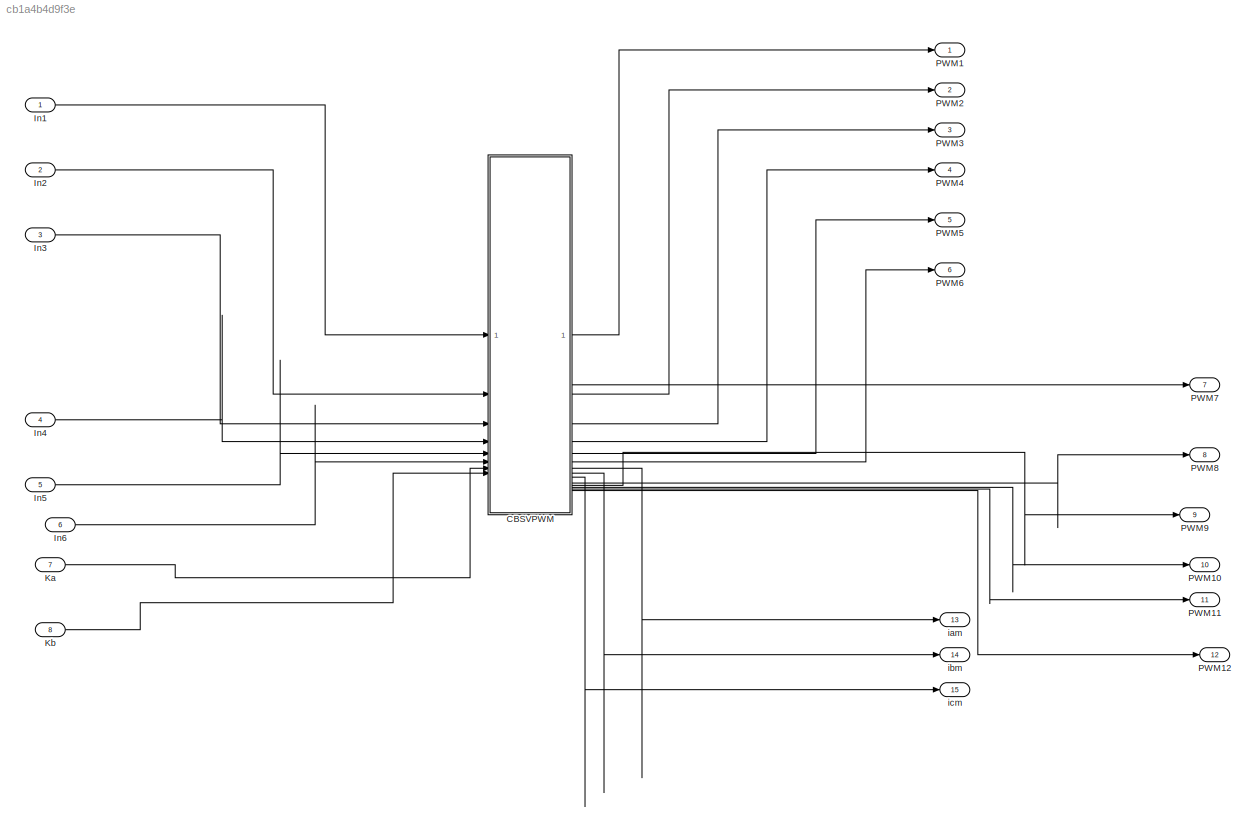
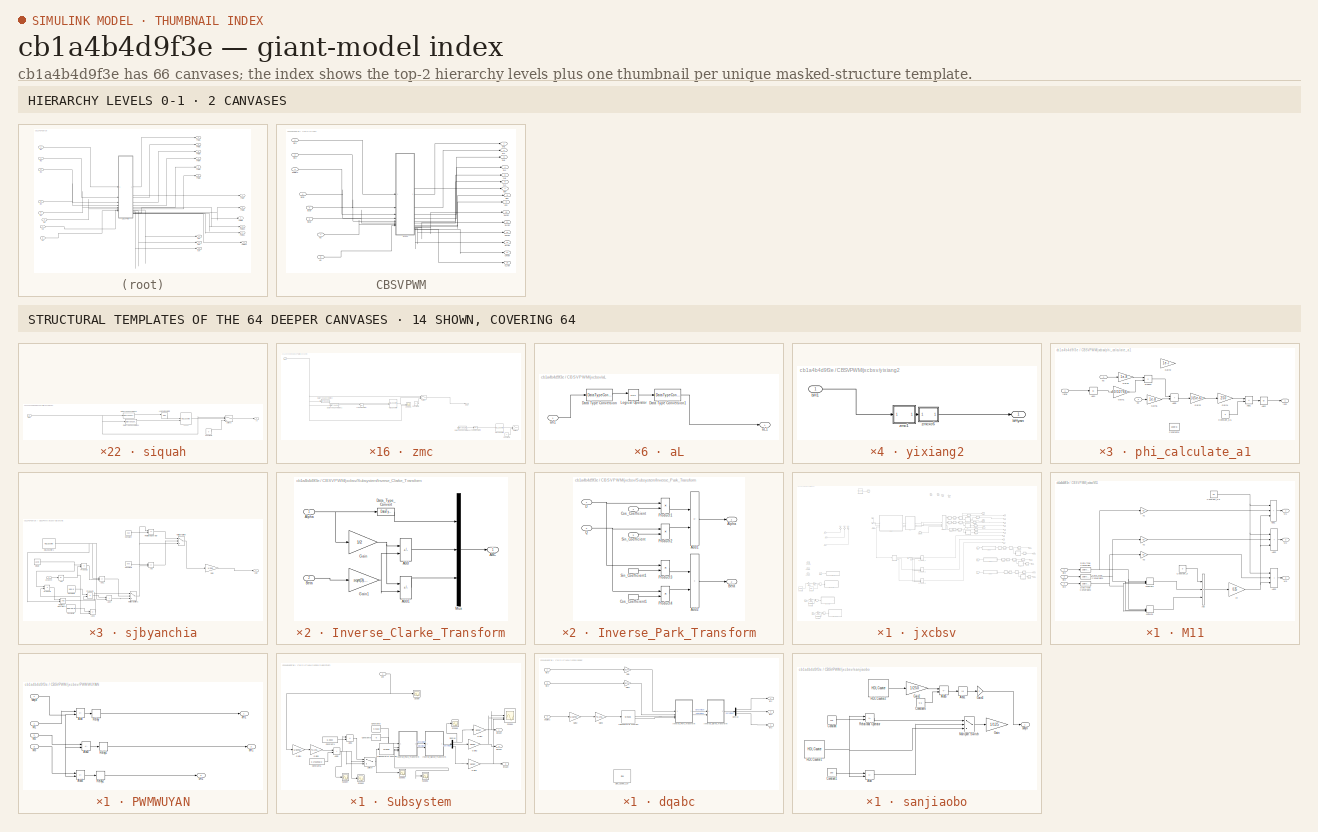
[diagram: thumbnail index - top-2 hierarchy levels (2 canvases) + 14 structural-template representatives of the remaining 64 canvases]
MODEL slx_cb1a4b4d9f3e
KIND model
CONFIG AbsTol = auto
CONFIG EnableMultiTasking = off
CONFIG FixedStep = 1e-8
CONFIG MaxStep = auto
CONFIG MinStep = auto
CONFIG RelTol = 1e-3
CONFIG SampleTimeConstraint = Unconstrained
CONFIG SolverName = FixedStepDiscrete
CONFIG StartTime = 0.0
CONFIG StopTime = 0.01
BLOCK [SubSystem] CBSVPWM
BLOCK [Inport] CBSVPWM/Ka
  OutDataTypeStr = int16
  Port = 7
BLOCK [Inport] CBSVPWM/Kb
  OutDataTypeStr = int16
  Port = 8
BLOCK [Outport] CBSVPWM/aH1
  OutDataTypeStr = int8
BLOCK [Outport] CBSVPWM/aHyan
  Port = 10
BLOCK [Outport] CBSVPWM/aL1
  OutDataTypeStr = int8
  Port = 2
BLOCK [Outport] CBSVPWM/aLyan
  Port = 11
BLOCK [Inport] CBSVPWM/angletz
  OutDataTypeStr = int16
  Port = 3
BLOCK [Outport] CBSVPWM/bH1
  OutDataTypeStr = int8
  Port = 3
BLOCK [Outport] CBSVPWM/bHyan
  Port = 12
BLOCK [Outport] CBSVPWM/bL1
  OutDataTypeStr = int8
  Port = 4
BLOCK [Outport] CBSVPWM/bLyan
  Port = 13
BLOCK [Outport] CBSVPWM/cH1
  OutDataTypeStr = int8
  Port = 5
BLOCK [Outport] CBSVPWM/cHyan
  Port = 14
BLOCK [Outport] CBSVPWM/cL1
  OutDataTypeStr = int8
  Port = 6
BLOCK [Outport] CBSVPWM/cLyan
  Port = 15
BLOCK [Inport] CBSVPWM/iacai
  OutDataTypeStr = int16
  Port = 4
BLOCK [Outport] CBSVPWM/iam
  Port = 7
BLOCK [Inport] CBSVPWM/ibcai
  OutDataTypeStr = int16
  Port = 6
BLOCK [Outport] CBSVPWM/ibm
  Port = 8
BLOCK [Inport] CBSVPWM/iccai
  OutDataTypeStr = int16
  Port = 5
BLOCK [Outport] CBSVPWM/icm
  Port = 9
BLOCK [Inport] CBSVPWM/idtz
  OutDataTypeStr = int16
BLOCK [Inport] CBSVPWM/iqtz
  OutDataTypeStr = int16
  Port = 2
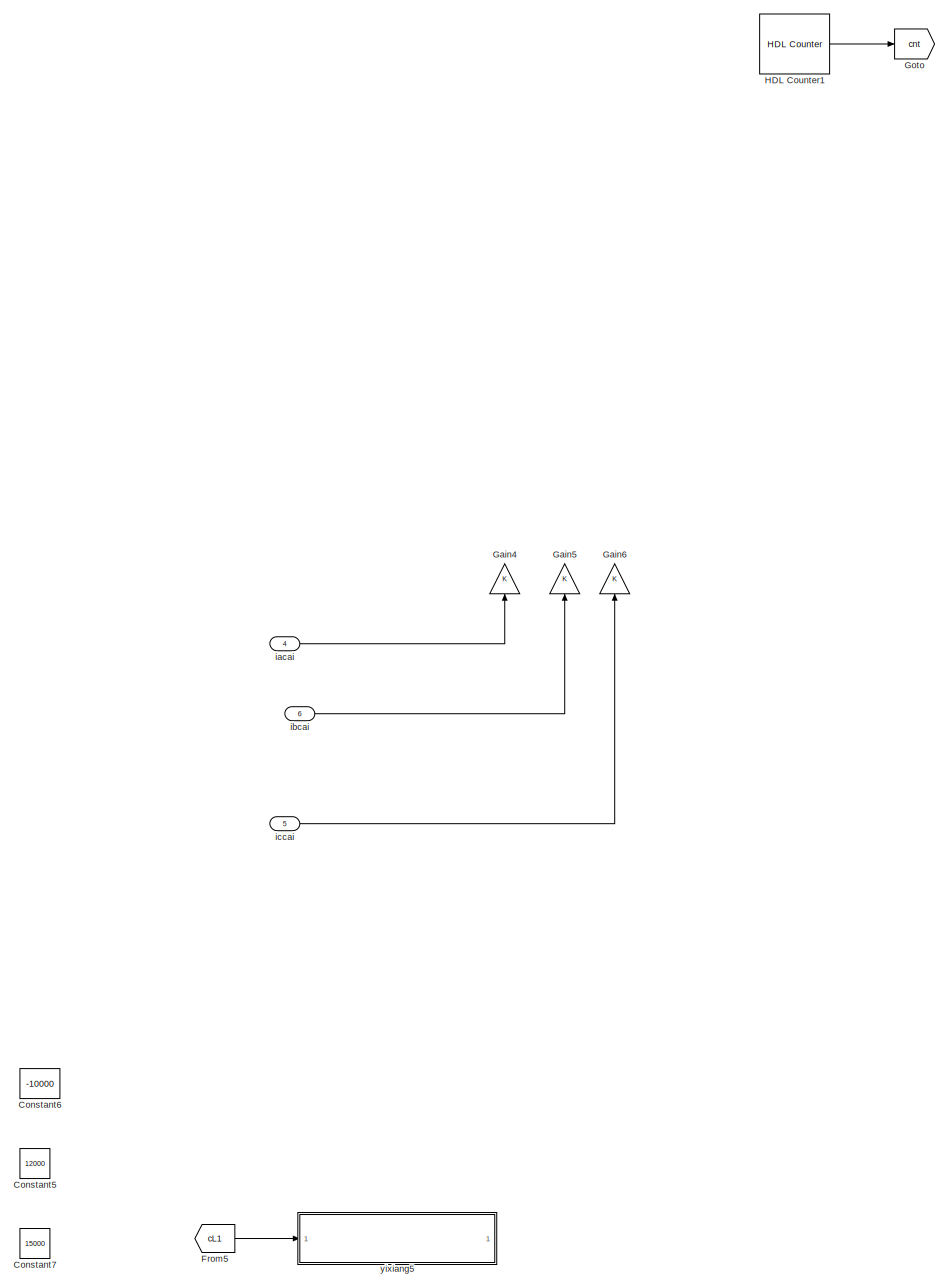
[diagram: CBSVPWM/jxcbsv - part 1/6, middle left region]
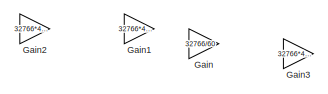
[diagram: CBSVPWM/jxcbsv - part 2/6, top center region]
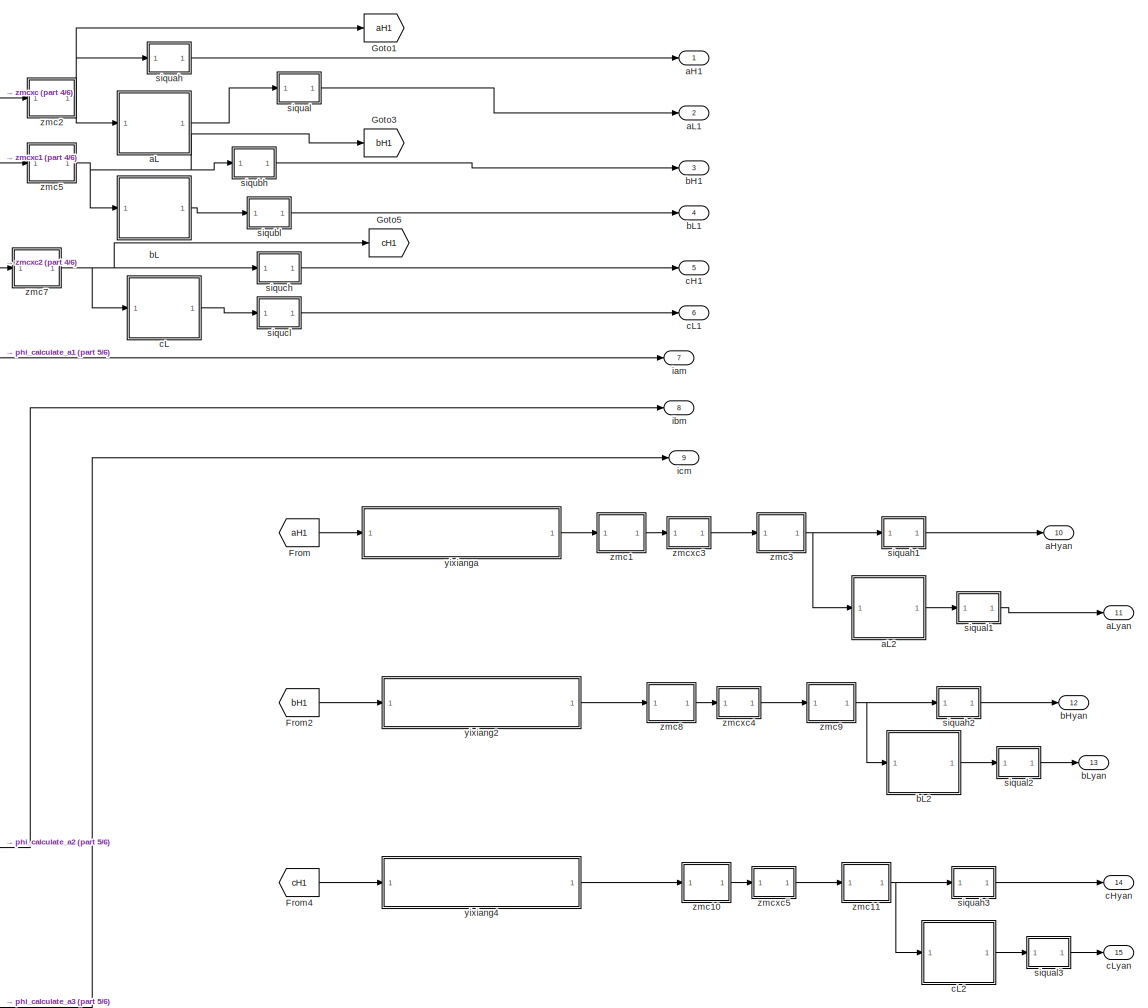
[diagram: CBSVPWM/jxcbsv - part 3/6, middle right region]
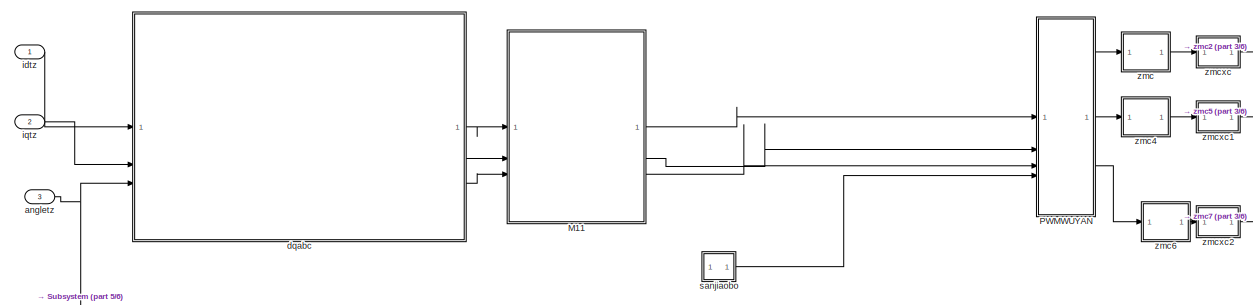
[diagram: CBSVPWM/jxcbsv - part 4/6, top center region]
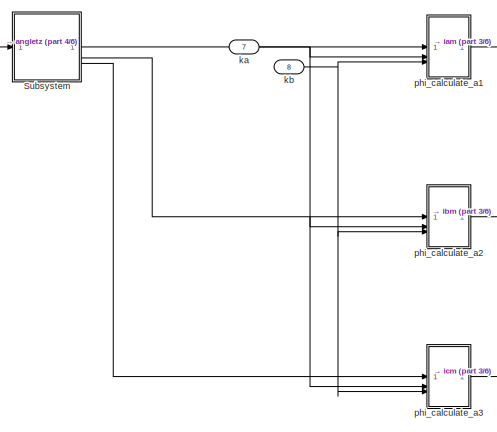
[diagram: CBSVPWM/jxcbsv - part 5/6, central region]
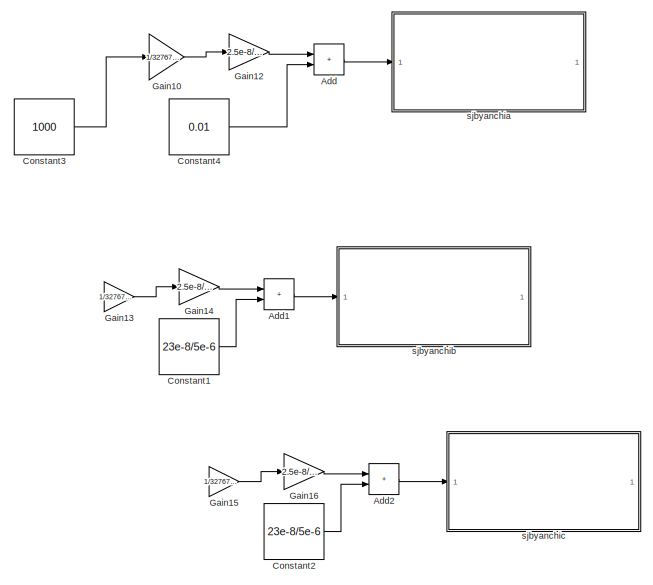
[diagram: CBSVPWM/jxcbsv - part 6/6, bottom left region]
BLOCK [SubSystem] CBSVPWM/jxcbsv
BLOCK [Sum] CBSVPWM/jxcbsv/Add
  AccumDataTypeStr = fixdt(1,30,29)
  Commented = on
  IconShape = rectangular
BLOCK [Sum] CBSVPWM/jxcbsv/Add1
  AccumDataTypeStr = fixdt(1,30,29)
  Commented = on
  IconShape = rectangular
  OutDataTypeStr = fixdt(1,30,29)
BLOCK [Sum] CBSVPWM/jxcbsv/Add2
  AccumDataTypeStr = fixdt(1,30,29)
  Commented = on
  IconShape = rectangular
  OutDataTypeStr = fixdt(1,30,29)
BLOCK [Constant] CBSVPWM/jxcbsv/Constant1
  Commented = on
  OutDataTypeStr = fixdt(1,7,6)
  SampleTime = 1e-8
  Value = 23e-8/5e-6
BLOCK [Constant] CBSVPWM/jxcbsv/Constant2
  Commented = on
  OutDataTypeStr = fixdt(1,7,6)
  SampleTime = 1e-8
  Value = 23e-8/5e-6
BLOCK [Constant] CBSVPWM/jxcbsv/Constant3
  Commented = on
  OutDataTypeStr = int16
  SampleTime = 1e-8
  Value = 1000
BLOCK [Constant] CBSVPWM/jxcbsv/Constant4
  Commented = on
  OutDataTypeStr = fixdt(1,7,6)
  SampleTime = 1e-8
  Value = 0.01
BLOCK [Constant] CBSVPWM/jxcbsv/Constant5
  Commented = on
  OutDataTypeStr = int16
  SampleTime = 2e-8
  Value = 12000
BLOCK [Constant] CBSVPWM/jxcbsv/Constant6
  Commented = on
  OutDataTypeStr = int16
  SampleTime = 2e-8
  Value = -10000
BLOCK [Constant] CBSVPWM/jxcbsv/Constant7
  Commented = on
  OutDataTypeStr = int16
  SampleTime = 2e-8
  Value = 15000
BLOCK [From] CBSVPWM/jxcbsv/From
  GotoTag = aH1
BLOCK [From] CBSVPWM/jxcbsv/From2
  GotoTag = bH1
BLOCK [From] CBSVPWM/jxcbsv/From4
  GotoTag = cH1
BLOCK [From] CBSVPWM/jxcbsv/From5
  Commented = on
  GotoTag = cL1
BLOCK [Gain] CBSVPWM/jxcbsv/Gain
  Commented = on
  Gain = 32766/60
  OutDataTypeStr = int16
BLOCK [Gain] CBSVPWM/jxcbsv/Gain1
  Commented = on
  Gain = 32766*4E7/60
  OutDataTypeStr = int16
BLOCK [Gain] CBSVPWM/jxcbsv/Gain10
  Commented = on
  Gain = 1/32767/0.866
  OutDataTypeStr = fixdt(1,21,20)
BLOCK [Gain] CBSVPWM/jxcbsv/Gain12
  Commented = on
  Gain = 2.5e-8/5e-6
  OutDataTypeStr = fixdt(1,30,29)
BLOCK [Gain] CBSVPWM/jxcbsv/Gain13
  Commented = on
  Gain = 1/32767/0.866
  OutDataTypeStr = fixdt(1,21,20)
BLOCK [Gain] CBSVPWM/jxcbsv/Gain14
  Commented = on
  Gain = 2.5e-8/5e-6
  OutDataTypeStr = fixdt(1,30,29)
BLOCK [Gain] CBSVPWM/jxcbsv/Gain15
  Commented = on
  Gain = 1/32767/0.866
  OutDataTypeStr = fixdt(1,21,20)
BLOCK [Gain] CBSVPWM/jxcbsv/Gain16
  Commented = on
  Gain = 2.5e-8/5e-6
  OutDataTypeStr = fixdt(1,30,29)
BLOCK [Gain] CBSVPWM/jxcbsv/Gain2
  Commented = on
  Gain = 32766*4E7/60
  OutDataTypeStr = int16
BLOCK [Gain] CBSVPWM/jxcbsv/Gain3
  Commented = on
  Gain = 32766*4E7/60
  OutDataTypeStr = int16
BLOCK [Gain] CBSVPWM/jxcbsv/Gain4
  NameLocation = right
  OutDataTypeStr = int16
BLOCK [Gain] CBSVPWM/jxcbsv/Gain5
  NameLocation = right
  OutDataTypeStr = int16
BLOCK [Gain] CBSVPWM/jxcbsv/Gain6
  NameLocation = right
  OutDataTypeStr = int16
BLOCK [Goto] CBSVPWM/jxcbsv/Goto
  GotoTag = cnt
BLOCK [Goto] CBSVPWM/jxcbsv/Goto1
  GotoTag = aH1
BLOCK [Goto] CBSVPWM/jxcbsv/Goto3
  GotoTag = bH1
BLOCK [Goto] CBSVPWM/jxcbsv/Goto5
  GotoTag = cH1
BLOCK [Reference] CBSVPWM/jxcbsv/HDL Counter1  REF=hdlsllib/Sources/HDL Counter
  SourceBlock = hdlsllib/Sources/HDL Counter
  SourceType = HDL Counter
BLOCK [SubSystem] CBSVPWM/jxcbsv/M11
BLOCK [Sum] CBSVPWM/jxcbsv/M11/Add
  IconShape = rectangular
  Inputs = +--
  OutDataTypeStr = fixdt(1,20,18)
BLOCK [Sum] CBSVPWM/jxcbsv/M11/Add1
  AccumDataTypeStr = fixdt(1,20,18)
  IconShape = rectangular
  Inputs = +++
  OutDataTypeStr = fixdt(1,20,18)
BLOCK [Sum] CBSVPWM/jxcbsv/M11/Add2
  AccumDataTypeStr = fixdt(1,20,18)
  IconShape = rectangular
  Inputs = +++
  OutDataTypeStr = fixdt(1,20,18)
BLOCK [Sum] CBSVPWM/jxcbsv/M11/Add3
  AccumDataTypeStr = fixdt(1,20,18)
  IconShape = rectangular
  Inputs = +++
  OutDataTypeStr = fixdt(1,20,18)
BLOCK [Constant] CBSVPWM/jxcbsv/M11/Constant_0
  OutDataTypeStr = fixdt(1,20,18)
  SampleTime = 2e-8
  Value = 0
BLOCK [Constant] CBSVPWM/jxcbsv/M11/Constant_0.5
  OutDataTypeStr = fixdt(1,20,18)
  SampleTime = 2e-8
  Value = 0.5
BLOCK [DataTypeConversion] CBSVPWM/jxcbsv/M11/Data Type Conversion
  OutDataTypeStr = fixdt(1,20,18)
  RndMeth = Floor
  SaturateOnIntegerOverflow = off
BLOCK [DataTypeConversion] CBSVPWM/jxcbsv/M11/Data Type Conversion1
  OutDataTypeStr = fixdt(1,20,18)
  RndMeth = Floor
  SaturateOnIntegerOverflow = off
BLOCK [DataTypeConversion] CBSVPWM/jxcbsv/M11/Data Type Conversion2
  OutDataTypeStr = fixdt(1,20,18)
  RndMeth = Floor
  SaturateOnIntegerOverflow = off
BLOCK [Outport] CBSVPWM/jxcbsv/M11/M1
  VectorParamsAs1DForOutWhenUnconnected = off
BLOCK [Outport] CBSVPWM/jxcbsv/M11/M2
  Port = 2
  VectorParamsAs1DForOutWhenUnconnected = off
BLOCK [Outport] CBSVPWM/jxcbsv/M11/M3
  Port = 3
  VectorParamsAs1DForOutWhenUnconnected = off
BLOCK [MinMax] CBSVPWM/jxcbsv/M11/MinMax
  Inputs = 3
BLOCK [MinMax] CBSVPWM/jxcbsv/M11/MinMax1
  Function = max
  Inputs = 3
BLOCK [Inport] CBSVPWM/jxcbsv/M11/iatz
BLOCK [Inport] CBSVPWM/jxcbsv/M11/ibtz
  Port = 2
BLOCK [Inport] CBSVPWM/jxcbsv/M11/ictz
  Port = 3
BLOCK [Gain] CBSVPWM/jxcbsv/M11/k1
  Gain = 0.5
  OutDataTypeStr = fixdt(1,20,18)
BLOCK [Gain] CBSVPWM/jxcbsv/M11/k2
  Gain = 0.5
  OutDataTypeStr = fixdt(1,20,18)
BLOCK [Gain] CBSVPWM/jxcbsv/M11/k3
  Gain = 0.5
  OutDataTypeStr = fixdt(1,20,18)
BLOCK [Gain] CBSVPWM/jxcbsv/M11/k4
  Gain = 0.25
  OutDataTypeStr = fixdt(1,20,18)
BLOCK [SubSystem] CBSVPWM/jxcbsv/PWMWUYAN
BLOCK [Sum] CBSVPWM/jxcbsv/PWMWUYAN/Add
  IconShape = rectangular
  Inputs = +-
BLOCK [Sum] CBSVPWM/jxcbsv/PWMWUYAN/Add2
  IconShape = rectangular
  Inputs = +-
BLOCK [Sum] CBSVPWM/jxcbsv/PWMWUYAN/Add4
  IconShape = rectangular
  Inputs = +-
BLOCK [Inport] CBSVPWM/jxcbsv/PWMWUYAN/M1
BLOCK [Inport] CBSVPWM/jxcbsv/PWMWUYAN/M2
  Port = 2
BLOCK [Inport] CBSVPWM/jxcbsv/PWMWUYAN/M3
  Port = 3
BLOCK [Relay] CBSVPWM/jxcbsv/PWMWUYAN/Relay
  OffSwitchValue = 0
  OnSwitchValue = 0
  OutDataTypeStr = int8
BLOCK [Relay] CBSVPWM/jxcbsv/PWMWUYAN/Relay1
  OffSwitchValue = 0
  OnSwitchValue = 0
  OutDataTypeStr = int8
BLOCK [Relay] CBSVPWM/jxcbsv/PWMWUYAN/Relay2
  OffSwitchValue = 0
  OnSwitchValue = 0
  OutDataTypeStr = int8
BLOCK [Outport] CBSVPWM/jxcbsv/PWMWUYAN/aH1
  VectorParamsAs1DForOutWhenUnconnected = off
BLOCK [Outport] CBSVPWM/jxcbsv/PWMWUYAN/bH1
  Port = 2
  VectorParamsAs1DForOutWhenUnconnected = off
BLOCK [Outport] CBSVPWM/jxcbsv/PWMWUYAN/cH1
  Port = 3
  VectorParamsAs1DForOutWhenUnconnected = off
BLOCK [Inport] CBSVPWM/jxcbsv/PWMWUYAN/sanjb
  Port = 4
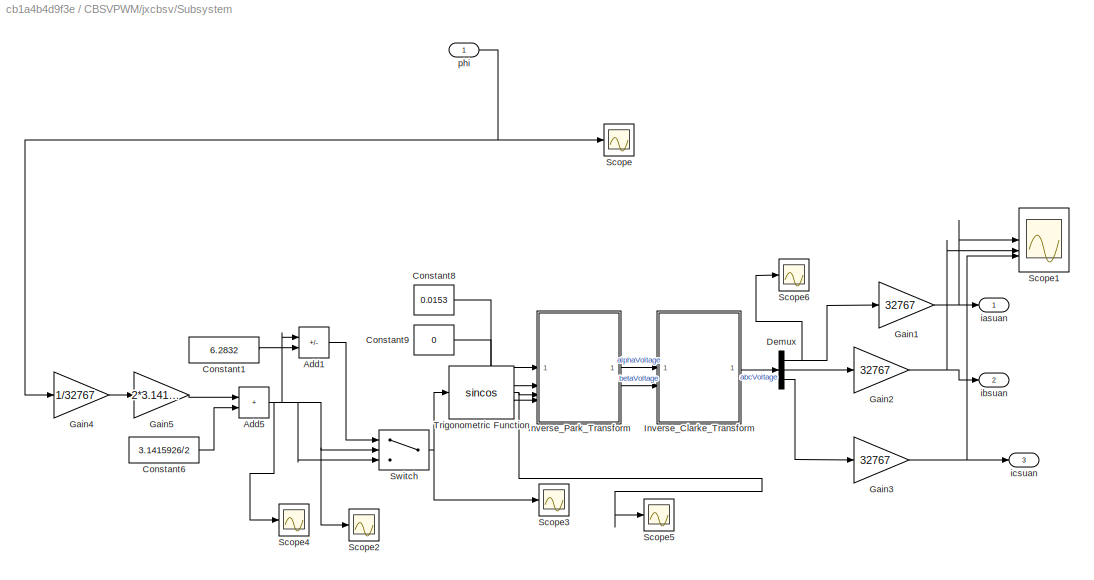
BLOCK [SubSystem] CBSVPWM/jxcbsv/Subsystem
BLOCK [Sum] CBSVPWM/jxcbsv/Subsystem/Add1
  AccumDataTypeStr = fixdt(1,16,10)
  IconShape = rectangular
  Inputs = +-
  OutDataTypeStr = fixdt(1,16,10)
BLOCK [Sum] CBSVPWM/jxcbsv/Subsystem/Add5
  AccumDataTypeStr = fixdt(1,16,10)
  IconShape = rectangular
  OutDataTypeStr = fixdt(1,16,10)
BLOCK [Constant] CBSVPWM/jxcbsv/Subsystem/Constant1
  OutDataTypeStr = fixdt(1,16,10)
  SampleTime = 2e-8
  Value = 6.2832
BLOCK [Constant] CBSVPWM/jxcbsv/Subsystem/Constant6
  OutDataTypeStr = fixdt(1,16,10)
  SampleTime = 2e-8
  Value = 3.1415926/2
BLOCK [Constant] CBSVPWM/jxcbsv/Subsystem/Constant8
  OutDataTypeStr = fixdt(1,32,27)
  SampleTime = 2e-8
  Value = 0.0153
BLOCK [Constant] CBSVPWM/jxcbsv/Subsystem/Constant9
  OutDataTypeStr = uint16
  SampleTime = 2e-8
  Value = 0
BLOCK [Demux] CBSVPWM/jxcbsv/Subsystem/Demux
  Outputs = 3
BLOCK [Gain] CBSVPWM/jxcbsv/Subsystem/Gain1
  Gain = 32767
  OutDataTypeStr = int16
BLOCK [Gain] CBSVPWM/jxcbsv/Subsystem/Gain2
  Gain = 32767
  OutDataTypeStr = int16
BLOCK [Gain] CBSVPWM/jxcbsv/Subsystem/Gain3
  Gain = 32767
  OutDataTypeStr = int16
BLOCK [Gain] CBSVPWM/jxcbsv/Subsystem/Gain4
  Gain = 1/32767
  OutDataTypeStr = fixdt(1,16,10)
BLOCK [Gain] CBSVPWM/jxcbsv/Subsystem/Gain5
  Gain = 2*3.1415926
  OutDataTypeStr = fixdt(1,16,10)
BLOCK [SubSystem] CBSVPWM/jxcbsv/Subsystem/Inverse_Clarke_Transform
  RTWSystemCode = Reusable function
  VariantControl = INVERSE_CLARKE_TRANSFORM
BLOCK [Outport] CBSVPWM/jxcbsv/Subsystem/Inverse_Clarke_Transform/ABC
  VectorParamsAs1DForOutWhenUnconnected = off
BLOCK [Sum] CBSVPWM/jxcbsv/Subsystem/Inverse_Clarke_Transform/Add
  IconShape = rectangular
  Inputs = -+
  OutDataTypeStr = fixdt(1,32,27)
BLOCK [Sum] CBSVPWM/jxcbsv/Subsystem/Inverse_Clarke_Transform/Add1
  IconShape = rectangular
  Inputs = --
  OutDataTypeStr = fixdt(1,32,27)
BLOCK [Inport] CBSVPWM/jxcbsv/Subsystem/Inverse_Clarke_Transform/Alpha
BLOCK [Inport] CBSVPWM/jxcbsv/Subsystem/Inverse_Clarke_Transform/Beta
  Port = 2
BLOCK [DataTypeConversion] CBSVPWM/jxcbsv/Subsystem/Inverse_Clarke_Transform/Data_Type_Convert
  OutDataTypeStr = fixdt(1,32,27)
  RndMeth = Simplest
  SaturateOnIntegerOverflow = off
BLOCK [Gain] CBSVPWM/jxcbsv/Subsystem/Inverse_Clarke_Transform/Gain
  Gain = 1/2
  OutDataTypeStr = fixdt(1,40,35)
  ParamDataTypeStr = fixdt(1,16,15)
BLOCK [Gain] CBSVPWM/jxcbsv/Subsystem/Inverse_Clarke_Transform/Gain1
  Gain = sqrt(3)/2
  OutDataTypeStr = fixdt(1,40,35)
  ParamDataTypeStr = fixdt(1,16,15)
BLOCK [Mux] CBSVPWM/jxcbsv/Subsystem/Inverse_Clarke_Transform/Mux
  DisplayOption = bar
  Inputs = 3
BLOCK [SubSystem] CBSVPWM/jxcbsv/Subsystem/Inverse_Park_Transform
BLOCK [Sum] CBSVPWM/jxcbsv/Subsystem/Inverse_Park_Transform/Add1
  IconShape = rectangular
  Inputs = +-
  OutDataTypeStr = fixdt(1,32,27)
BLOCK [Sum] CBSVPWM/jxcbsv/Subsystem/Inverse_Park_Transform/Add2
  IconShape = rectangular
  OutDataTypeStr = fixdt(1,32,27)
BLOCK [Outport] CBSVPWM/jxcbsv/Subsystem/Inverse_Park_Transform/Alpha
  VectorParamsAs1DForOutWhenUnconnected = off
BLOCK [Outport] CBSVPWM/jxcbsv/Subsystem/Inverse_Park_Transform/Beta
  Port = 2
  VectorParamsAs1DForOutWhenUnconnected = off
BLOCK [Inport] CBSVPWM/jxcbsv/Subsystem/Inverse_Park_Transform/Cos_Coefficient
  Port = 4
BLOCK [InportShadow] CBSVPWM/jxcbsv/Subsystem/Inverse_Park_Transform/Cos_Coefficient1
  Port = 4
BLOCK [Inport] CBSVPWM/jxcbsv/Subsystem/Inverse_Park_Transform/D
BLOCK [Product] CBSVPWM/jxcbsv/Subsystem/Inverse_Park_Transform/Product1
  OutDataTypeStr = fixdt(1,32,27)
  RndMeth = Simplest
BLOCK [Product] CBSVPWM/jxcbsv/Subsystem/Inverse_Park_Transform/Product2
  OutDataTypeStr = fixdt(1,32,27)
  RndMeth = Simplest
BLOCK [Product] CBSVPWM/jxcbsv/Subsystem/Inverse_Park_Transform/Product3
  OutDataTypeStr = fixdt(1,32,27)
  RndMeth = Simplest
BLOCK [Product] CBSVPWM/jxcbsv/Subsystem/Inverse_Park_Transform/Product4
  OutDataTypeStr = fixdt(1,32,27)
  RndMeth = Simplest
BLOCK [Inport] CBSVPWM/jxcbsv/Subsystem/Inverse_Park_Transform/Q
  Port = 2
BLOCK [Inport] CBSVPWM/jxcbsv/Subsystem/Inverse_Park_Transform/Sin_Coefficient
  Port = 3
BLOCK [InportShadow] CBSVPWM/jxcbsv/Subsystem/Inverse_Park_Transform/Sin_Coefficient1
  Port = 3
BLOCK [Scope] CBSVPWM/jxcbsv/Subsystem/Scope
  Floating = off
  NumInputPorts = 1
  ScopeSpecificationString = Simulink.scopes.TimeScopeBlockCfg('CurrentConfiguration', extmgr.ConfigurationSet(extmgr.Configuration('Core','General UI',true),extmgr.Configuration('Core','Source UI',true),extmgr.Configuration('Sources','WiredSimulink',true),extmgr.Configuration('Visuals','Time Domain',true,'SerializedDisplays',{struct('MinYLimReal','-4095.75','MaxYLimReal','36861.75','YLabelReal','','MinYLimMag','  0.00000','M...<+1522ch>
BLOCK [Scope] CBSVPWM/jxcbsv/Subsystem/Scope1
  Floating = off
  NumInputPorts = 3
  ScopeSpecificationString = Simulink.scopes.TimeScopeBlockCfg('CurrentConfiguration', extmgr.ConfigurationSet(extmgr.Configuration('Core','General UI',true),extmgr.Configuration('Core','Source UI',true),extmgr.Configuration('Sources','WiredSimulink',true,'DataLoggingVariableName','ScopeData1'),extmgr.Configuration('Visuals','Time Domain',true,'SerializedDisplays',{struct('MinYLimReal','-32751.125','MaxYLimReal','32750.125','...<+3105ch>
BLOCK [Scope] CBSVPWM/jxcbsv/Subsystem/Scope2
  Floating = off
  NumInputPorts = 1
  ScopeSpecificationString = Simulink.scopes.TimeScopeBlockCfg('CurrentConfiguration', extmgr.ConfigurationSet(extmgr.Configuration('Core','General UI',true),extmgr.Configuration('Core','Source UI',true),extmgr.Configuration('Sources','WiredSimulink',true,'DataLoggingVariableName','ScopeData2'),extmgr.Configuration('Visuals','Time Domain',true,'SerializedDisplays',{struct('MinYLimReal','0.5708','MaxYLimReal','2.5708','YLabelR...<+1544ch>
BLOCK [Scope] CBSVPWM/jxcbsv/Subsystem/Scope3
  Floating = off
  NumInputPorts = 1
  ScopeSpecificationString = Simulink.scopes.TimeScopeBlockCfg('CurrentConfiguration', extmgr.ConfigurationSet(extmgr.Configuration('Core','General UI',true),extmgr.Configuration('Core','Source UI',true),extmgr.Configuration('Sources','WiredSimulink',true,'DataLoggingVariableName','ScopeData3'),extmgr.Configuration('Visuals','Time Domain',true,'SerializedDisplays',{struct('MinYLimReal','-0.71643','MaxYLimReal','7.05334','YLab...<+1556ch>
BLOCK [Scope] CBSVPWM/jxcbsv/Subsystem/Scope4
  Floating = off
  NumInputPorts = 1
  ScopeSpecificationString = Simulink.scopes.TimeScopeBlockCfg('CurrentConfiguration', extmgr.ConfigurationSet(extmgr.Configuration('Core','General UI',true),extmgr.Configuration('Core','Source UI',true),extmgr.Configuration('Sources','WiredSimulink',true,'DataLoggingVariableName','ScopeData4'),extmgr.Configuration('Visuals','Time Domain',true,'SerializedDisplays',{struct('MinYLimReal','0.19666','MaxYLimReal','13.93323','YLab...<+1556ch>
BLOCK [Scope] CBSVPWM/jxcbsv/Subsystem/Scope5
  Floating = off
  NumInputPorts = 1
  ScopeSpecificationString = Simulink.scopes.TimeScopeBlockCfg('CurrentConfiguration', extmgr.ConfigurationSet(extmgr.Configuration('Core','General UI',true),extmgr.Configuration('Core','Source UI',true),extmgr.Configuration('Sources','WiredSimulink',true,'DataLoggingVariableName','ScopeData5'),extmgr.Configuration('Visuals','Time Domain',true,'SerializedDisplays',{struct('MinYLimReal','-1.24992','MaxYLimReal','1.24992','YLab...<+1574ch>
BLOCK [Scope] CBSVPWM/jxcbsv/Subsystem/Scope6
  Floating = off
  NumInputPorts = 1
  ScopeSpecificationString = Simulink.scopes.TimeScopeBlockCfg('CurrentConfiguration', extmgr.ConfigurationSet(extmgr.Configuration('Core','General UI',true),extmgr.Configuration('Core','Source UI',true),extmgr.Configuration('Sources','WiredSimulink',true,'DataLoggingVariableName','ScopeData6'),extmgr.Configuration('Visuals','Time Domain',true,'SerializedDisplays',{struct('MinYLimReal','-1.24969','MaxYLimReal','1.24969','YLab...<+1557ch>
BLOCK [Switch] CBSVPWM/jxcbsv/Subsystem/Switch
  Criteria = u2 > Threshold
  InputSameDT = off
  OutDataTypeStr = fixdt(1,16,10)
  SaturateOnIntegerOverflow = off
  Threshold = 6.2832
BLOCK [Trigonometry] CBSVPWM/jxcbsv/Subsystem/Trigonometric Function
  ApproximationMethod = CORDIC
  NumberOfIterations = 16
  Operator = sincos
BLOCK [Outport] CBSVPWM/jxcbsv/Subsystem/iasuan
BLOCK [Outport] CBSVPWM/jxcbsv/Subsystem/ibsuan
  Port = 2
BLOCK [Outport] CBSVPWM/jxcbsv/Subsystem/icsuan
  Port = 3
BLOCK [Inport] CBSVPWM/jxcbsv/Subsystem/phi
BLOCK [Outport] CBSVPWM/jxcbsv/aH1
  OutDataTypeStr = int8
BLOCK [Outport] CBSVPWM/jxcbsv/aHyan
  OutDataTypeStr = int8
  Port = 10
BLOCK [SubSystem] CBSVPWM/jxcbsv/aL
BLOCK [DataTypeConversion] CBSVPWM/jxcbsv/aL/Data Type Conversion
  OutDataTypeStr = boolean
  RndMeth = Floor
  SaturateOnIntegerOverflow = off
BLOCK [DataTypeConversion] CBSVPWM/jxcbsv/aL/Data Type Conversion1
  OutDataTypeStr = int8
  RndMeth = Floor
  SaturateOnIntegerOverflow = off
BLOCK [Logic] CBSVPWM/jxcbsv/aL/Logical Operator
  AllPortsSameDT = off
  Operator = NOT
  OutDataTypeStr = boolean
BLOCK [Outport] CBSVPWM/jxcbsv/aL/aL1
  VectorParamsAs1DForOutWhenUnconnected = off
BLOCK [Inport] CBSVPWM/jxcbsv/aL/ah1
BLOCK [Outport] CBSVPWM/jxcbsv/aL1
  OutDataTypeStr = int8
  Port = 2
BLOCK [SubSystem] CBSVPWM/jxcbsv/aL2
BLOCK [DataTypeConversion] CBSVPWM/jxcbsv/aL2/Data Type Conversion
  OutDataTypeStr = boolean
  RndMeth = Floor
  SaturateOnIntegerOverflow = off
BLOCK [DataTypeConversion] CBSVPWM/jxcbsv/aL2/Data Type Conversion1
  OutDataTypeStr = int8
  RndMeth = Floor
  SaturateOnIntegerOverflow = off
BLOCK [Logic] CBSVPWM/jxcbsv/aL2/Logical Operator
  AllPortsSameDT = off
  Operator = NOT
  OutDataTypeStr = boolean
BLOCK [Outport] CBSVPWM/jxcbsv/aL2/aLyan
  VectorParamsAs1DForOutWhenUnconnected = off
BLOCK [Inport] CBSVPWM/jxcbsv/aL2/ahyan
BLOCK [Outport] CBSVPWM/jxcbsv/aLyan
  OutDataTypeStr = int8
  Port = 11
BLOCK [Inport] CBSVPWM/jxcbsv/angletz
  OutDataTypeStr = int16
  Port = 3
BLOCK [Outport] CBSVPWM/jxcbsv/bH1
  OutDataTypeStr = int8
  Port = 3
BLOCK [Outport] CBSVPWM/jxcbsv/bHyan
  OutDataTypeStr = int8
  Port = 12
BLOCK [SubSystem] CBSVPWM/jxcbsv/bL
BLOCK [DataTypeConversion] CBSVPWM/jxcbsv/bL/Data Type Conversion
  OutDataTypeStr = boolean
  RndMeth = Floor
  SaturateOnIntegerOverflow = off
BLOCK [DataTypeConversion] CBSVPWM/jxcbsv/bL/Data Type Conversion1
  OutDataTypeStr = int8
  RndMeth = Floor
  SaturateOnIntegerOverflow = off
BLOCK [Logic] CBSVPWM/jxcbsv/bL/Logical Operator
  AllPortsSameDT = off
  Operator = NOT
  OutDataTypeStr = boolean
BLOCK [Outport] CBSVPWM/jxcbsv/bL/bL1
  VectorParamsAs1DForOutWhenUnconnected = off
BLOCK [Inport] CBSVPWM/jxcbsv/bL/bh1
BLOCK [Outport] CBSVPWM/jxcbsv/bL1
  OutDataTypeStr = int8
  Port = 4
BLOCK [SubSystem] CBSVPWM/jxcbsv/bL2
BLOCK [DataTypeConversion] CBSVPWM/jxcbsv/bL2/Data Type Conversion
  OutDataTypeStr = boolean
  RndMeth = Floor
  SaturateOnIntegerOverflow = off
BLOCK [DataTypeConversion] CBSVPWM/jxcbsv/bL2/Data Type Conversion1
  OutDataTypeStr = int8
  RndMeth = Floor
  SaturateOnIntegerOverflow = off
BLOCK [Logic] CBSVPWM/jxcbsv/bL2/Logical Operator
  AllPortsSameDT = off
  Operator = NOT
  OutDataTypeStr = boolean
BLOCK [Outport] CBSVPWM/jxcbsv/bL2/bLyan
  VectorParamsAs1DForOutWhenUnconnected = off
BLOCK [Inport] CBSVPWM/jxcbsv/bL2/bhyan
BLOCK [Outport] CBSVPWM/jxcbsv/bLyan
  OutDataTypeStr = int8
  Port = 13
BLOCK [Outport] CBSVPWM/jxcbsv/cH1
  OutDataTypeStr = int8
  Port = 5
BLOCK [Outport] CBSVPWM/jxcbsv/cHyan
  OutDataTypeStr = int8
  Port = 14
BLOCK [SubSystem] CBSVPWM/jxcbsv/cL
BLOCK [DataTypeConversion] CBSVPWM/jxcbsv/cL/Data Type Conversion
  OutDataTypeStr = boolean
  RndMeth = Floor
  SaturateOnIntegerOverflow = off
BLOCK [DataTypeConversion] CBSVPWM/jxcbsv/cL/Data Type Conversion1
  OutDataTypeStr = int8
  RndMeth = Floor
  SaturateOnIntegerOverflow = off
BLOCK [Logic] CBSVPWM/jxcbsv/cL/Logical Operator
  AllPortsSameDT = off
  Operator = NOT
  OutDataTypeStr = boolean
BLOCK [Outport] CBSVPWM/jxcbsv/cL/cL1
  VectorParamsAs1DForOutWhenUnconnected = off
BLOCK [Inport] CBSVPWM/jxcbsv/cL/ch1
BLOCK [Outport] CBSVPWM/jxcbsv/cL1
  OutDataTypeStr = int8
  Port = 6
BLOCK [SubSystem] CBSVPWM/jxcbsv/cL2
BLOCK [DataTypeConversion] CBSVPWM/jxcbsv/cL2/Data Type Conversion
  OutDataTypeStr = boolean
  RndMeth = Floor
  SaturateOnIntegerOverflow = off
BLOCK [DataTypeConversion] CBSVPWM/jxcbsv/cL2/Data Type Conversion1
  OutDataTypeStr = int8
  RndMeth = Floor
  SaturateOnIntegerOverflow = off
BLOCK [Logic] CBSVPWM/jxcbsv/cL2/Logical Operator
  AllPortsSameDT = off
  Operator = NOT
  OutDataTypeStr = boolean
BLOCK [Outport] CBSVPWM/jxcbsv/cL2/cLyan
  VectorParamsAs1DForOutWhenUnconnected = off
BLOCK [Inport] CBSVPWM/jxcbsv/cL2/chyan
BLOCK [Outport] CBSVPWM/jxcbsv/cLyan
  OutDataTypeStr = int8
  Port = 15
BLOCK [SubSystem] CBSVPWM/jxcbsv/dqabc
BLOCK [Demux] CBSVPWM/jxcbsv/dqabc/Demux
  Outputs = 3
BLOCK [Gain] CBSVPWM/jxcbsv/dqabc/Gain
  Gain = 1/32767
  OutDataTypeStr = fixdt(1,32,27)
BLOCK [Gain] CBSVPWM/jxcbsv/dqabc/Gain1
  Gain = 1/32767
  OutDataTypeStr = fixdt(1,32,27)
BLOCK [Gain] CBSVPWM/jxcbsv/dqabc/Gain2
  Gain = 1/32767
  OutDataTypeStr = fixdt(1,16,10)
BLOCK [Gain] CBSVPWM/jxcbsv/dqabc/Gain3
  Gain = 2*3.1415926
  OutDataTypeStr = fixdt(1,16,10)
BLOCK [SubSystem] CBSVPWM/jxcbsv/dqabc/Inverse_Clarke_Transform
  RTWSystemCode = Reusable function
  VariantControl = INVERSE_CLARKE_TRANSFORM
BLOCK [Outport] CBSVPWM/jxcbsv/dqabc/Inverse_Clarke_Transform/ABC
  VectorParamsAs1DForOutWhenUnconnected = off
BLOCK [Sum] CBSVPWM/jxcbsv/dqabc/Inverse_Clarke_Transform/Add
  IconShape = rectangular
  Inputs = -+
  OutDataTypeStr = fixdt(1,32,25)
BLOCK [Sum] CBSVPWM/jxcbsv/dqabc/Inverse_Clarke_Transform/Add1
  IconShape = rectangular
  Inputs = --
  OutDataTypeStr = fixdt(1,32,25)
BLOCK [Inport] CBSVPWM/jxcbsv/dqabc/Inverse_Clarke_Transform/Alpha
BLOCK [Inport] CBSVPWM/jxcbsv/dqabc/Inverse_Clarke_Transform/Beta
  Port = 2
BLOCK [DataTypeConversion] CBSVPWM/jxcbsv/dqabc/Inverse_Clarke_Transform/Data_Type_Convert
  OutDataTypeStr = fixdt(1,32,25)
  RndMeth = Simplest
  SaturateOnIntegerOverflow = off
BLOCK [Gain] CBSVPWM/jxcbsv/dqabc/Inverse_Clarke_Transform/Gain
  Gain = 1/2
  OutDataTypeStr = fixdt(1,32,27)
  ParamDataTypeStr = fixdt(1,16,15)
BLOCK [Gain] CBSVPWM/jxcbsv/dqabc/Inverse_Clarke_Transform/Gain1
  Gain = sqrt(3)/2
  OutDataTypeStr = fixdt(1,32,26)
  ParamDataTypeStr = fixdt(1,16,15)
BLOCK [Mux] CBSVPWM/jxcbsv/dqabc/Inverse_Clarke_Transform/Mux
  DisplayOption = bar
  Inputs = 3
BLOCK [SubSystem] CBSVPWM/jxcbsv/dqabc/Inverse_Park_Transform
BLOCK [Sum] CBSVPWM/jxcbsv/dqabc/Inverse_Park_Transform/Add1
  IconShape = rectangular
  Inputs = +-
  OutDataTypeStr = fixdt(1,32,27)
BLOCK [Sum] CBSVPWM/jxcbsv/dqabc/Inverse_Park_Transform/Add2
  IconShape = rectangular
  OutDataTypeStr = fixdt(1,32,27)
BLOCK [Outport] CBSVPWM/jxcbsv/dqabc/Inverse_Park_Transform/Alpha
  VectorParamsAs1DForOutWhenUnconnected = off
BLOCK [Outport] CBSVPWM/jxcbsv/dqabc/Inverse_Park_Transform/Beta
  Port = 2
  VectorParamsAs1DForOutWhenUnconnected = off
BLOCK [Inport] CBSVPWM/jxcbsv/dqabc/Inverse_Park_Transform/Cos_Coefficient
  Port = 4
BLOCK [InportShadow] CBSVPWM/jxcbsv/dqabc/Inverse_Park_Transform/Cos_Coefficient1
  Port = 4
BLOCK [Inport] CBSVPWM/jxcbsv/dqabc/Inverse_Park_Transform/D
BLOCK [Product] CBSVPWM/jxcbsv/dqabc/Inverse_Park_Transform/Product1
  OutDataTypeStr = fixdt(1,32,27)
  RndMeth = Simplest
BLOCK [Product] CBSVPWM/jxcbsv/dqabc/Inverse_Park_Transform/Product2
  OutDataTypeStr = fixdt(1,32,27)
  RndMeth = Simplest
BLOCK [Product] CBSVPWM/jxcbsv/dqabc/Inverse_Park_Transform/Product3
  OutDataTypeStr = fixdt(1,32,27)
  RndMeth = Simplest
BLOCK [Product] CBSVPWM/jxcbsv/dqabc/Inverse_Park_Transform/Product4
  OutDataTypeStr = fixdt(1,32,27)
  RndMeth = Simplest
BLOCK [Inport] CBSVPWM/jxcbsv/dqabc/Inverse_Park_Transform/Q
  Port = 2
BLOCK [Inport] CBSVPWM/jxcbsv/dqabc/Inverse_Park_Transform/Sin_Coefficient
  Port = 3
BLOCK [InportShadow] CBSVPWM/jxcbsv/dqabc/Inverse_Park_Transform/Sin_Coefficient1
  Port = 3
BLOCK [Reference] CBSVPWM/jxcbsv/dqabc/Sine_Cosine_LUT  REF=simulink/Lookup
Tables/Sine
  Commented = on
  SourceBlock = simulink/Lookup\nTables/Sine
  SourceType = Sine and Cosine
BLOCK [Trigonometry] CBSVPWM/jxcbsv/dqabc/Trigonometric Function
  ApproximationMethod = CORDIC
  NumberOfIterations = 16
  Operator = sincos
BLOCK [Inport] CBSVPWM/jxcbsv/dqabc/angletz
  Port = 3
BLOCK [Outport] CBSVPWM/jxcbsv/dqabc/iatz
BLOCK [Outport] CBSVPWM/jxcbsv/dqabc/ibtz
  Port = 2
BLOCK [Outport] CBSVPWM/jxcbsv/dqabc/ictz
  Port = 3
BLOCK [Inport] CBSVPWM/jxcbsv/dqabc/idtz
BLOCK [Inport] CBSVPWM/jxcbsv/dqabc/iqtz
  Port = 2
BLOCK [Inport] CBSVPWM/jxcbsv/iacai
  Port = 4
BLOCK [Outport] CBSVPWM/jxcbsv/iam
  Port = 7
BLOCK [Inport] CBSVPWM/jxcbsv/ibcai
  Port = 6
BLOCK [Outport] CBSVPWM/jxcbsv/ibm
  Port = 8
BLOCK [Inport] CBSVPWM/jxcbsv/iccai
  Port = 5
BLOCK [Outport] CBSVPWM/jxcbsv/icm
  Port = 9
BLOCK [Inport] CBSVPWM/jxcbsv/idtz
  OutDataTypeStr = int16
BLOCK [Inport] CBSVPWM/jxcbsv/iqtz
  OutDataTypeStr = int16
  Port = 2
BLOCK [Inport] CBSVPWM/jxcbsv/ka
  Port = 7
BLOCK [Inport] CBSVPWM/jxcbsv/kb
  Port = 8
BLOCK [SubSystem] CBSVPWM/jxcbsv/phi_calculate_a1
BLOCK [Abs] CBSVPWM/jxcbsv/phi_calculate_a1/Abs1
  OutDataTypeStr = uint16
  SaturateOnIntegerOverflow = off
BLOCK [Abs] CBSVPWM/jxcbsv/phi_calculate_a1/Abs2
  OutDataTypeStr = int16
  SaturateOnIntegerOverflow = off
BLOCK [Sum] CBSVPWM/jxcbsv/phi_calculate_a1/Add1
  AccumDataTypeStr = int16
  IconShape = rectangular
  Inputs = +-
  OutDataTypeStr = int16
BLOCK [Sum] CBSVPWM/jxcbsv/phi_calculate_a1/Add5
  AccumDataTypeStr = fixdt(0,64,40)
  IconShape = rectangular
  OutDataTypeStr = fixdt(0,64,40)
BLOCK [Constant] CBSVPWM/jxcbsv/phi_calculate_a1/Constant6
  Commented = on
  OutDataTypeStr = fixdt(0,64,40)
  SampleTime = 2e-8
  Value = 100e-8
BLOCK [Constant] CBSVPWM/jxcbsv/phi_calculate_a1/Constant_0.5
  OutDataTypeStr = int16
  SampleTime = 2e-8
  Value = 6
BLOCK [Gain] CBSVPWM/jxcbsv/phi_calculate_a1/Gain1
  Gain = 60/32766
  OutDataTypeStr = fixdt(0,64,40)
BLOCK [Gain] CBSVPWM/jxcbsv/phi_calculate_a1/Gain2
  Commented = on
  Gain = 1e-7
  OutDataTypeStr = fixdt(0,64,40)
BLOCK [Gain] CBSVPWM/jxcbsv/phi_calculate_a1/Gain3
  Gain = 1/(5e-6)
  OutDataTypeStr = fixdt(0,64,40)
BLOCK [Gain] CBSVPWM/jxcbsv/phi_calculate_a1/Gain4
  Gain = 250
  OutDataTypeStr = int16
BLOCK [Gain] CBSVPWM/jxcbsv/phi_calculate_a1/Gain5
  Gain = 1e-8
  OutDataTypeStr = fixdt(0,64,40)
BLOCK [Gain] CBSVPWM/jxcbsv/phi_calculate_a1/Gain6
  Gain = 1e-8
  OutDataTypeStr = fixdt(0,64,40)
BLOCK [Product] CBSVPWM/jxcbsv/phi_calculate_a1/Product
  OutDataTypeStr = fixdt(0,64,40)
BLOCK [Inport] CBSVPWM/jxcbsv/phi_calculate_a1/iacai
BLOCK [Outport] CBSVPWM/jxcbsv/phi_calculate_a1/iam
BLOCK [Inport] CBSVPWM/jxcbsv/phi_calculate_a1/ka
  Port = 2
BLOCK [Inport] CBSVPWM/jxcbsv/phi_calculate_a1/kb
  Port = 3
BLOCK [SubSystem] CBSVPWM/jxcbsv/phi_calculate_a2
BLOCK [Abs] CBSVPWM/jxcbsv/phi_calculate_a2/Abs1
  OutDataTypeStr = uint16
  SaturateOnIntegerOverflow = off
BLOCK [Abs] CBSVPWM/jxcbsv/phi_calculate_a2/Abs2
  OutDataTypeStr = int16
  SaturateOnIntegerOverflow = off
BLOCK [Sum] CBSVPWM/jxcbsv/phi_calculate_a2/Add1
  AccumDataTypeStr = int16
  IconShape = rectangular
  Inputs = +-
  OutDataTypeStr = int16
BLOCK [Sum] CBSVPWM/jxcbsv/phi_calculate_a2/Add5
  AccumDataTypeStr = fixdt(0,64,40)
  IconShape = rectangular
  OutDataTypeStr = fixdt(0,64,40)
BLOCK [Constant] CBSVPWM/jxcbsv/phi_calculate_a2/Constant6
  Commented = on
  OutDataTypeStr = fixdt(0,64,40)
  SampleTime = 2e-8
  Value = 100e-8
BLOCK [Constant] CBSVPWM/jxcbsv/phi_calculate_a2/Constant_0.5
  OutDataTypeStr = int16
  SampleTime = 2e-8
  Value = 6
BLOCK [Gain] CBSVPWM/jxcbsv/phi_calculate_a2/Gain1
  Gain = 60/32766
  OutDataTypeStr = fixdt(0,64,40)
BLOCK [Gain] CBSVPWM/jxcbsv/phi_calculate_a2/Gain2
  Commented = on
  Gain = 1e-7
  OutDataTypeStr = fixdt(0,64,40)
BLOCK [Gain] CBSVPWM/jxcbsv/phi_calculate_a2/Gain3
  Gain = 1/(5e-6)
  OutDataTypeStr = fixdt(0,64,40)
BLOCK [Gain] CBSVPWM/jxcbsv/phi_calculate_a2/Gain5
  Gain = 1e-8
  OutDataTypeStr = fixdt(0,64,40)
BLOCK [Gain] CBSVPWM/jxcbsv/phi_calculate_a2/Gain6
  Gain = 1e-8
  OutDataTypeStr = fixdt(0,64,40)
BLOCK [Gain] CBSVPWM/jxcbsv/phi_calculate_a2/Gain7
  Gain = 250
  OutDataTypeStr = int16
BLOCK [Product] CBSVPWM/jxcbsv/phi_calculate_a2/Product
  OutDataTypeStr = fixdt(0,64,40)
BLOCK [Inport] CBSVPWM/jxcbsv/phi_calculate_a2/ibcai
BLOCK [Outport] CBSVPWM/jxcbsv/phi_calculate_a2/ibm
BLOCK [Inport] CBSVPWM/jxcbsv/phi_calculate_a2/ka
  Port = 2
BLOCK [Inport] CBSVPWM/jxcbsv/phi_calculate_a2/kb
  Port = 3
BLOCK [SubSystem] CBSVPWM/jxcbsv/phi_calculate_a3
BLOCK [Abs] CBSVPWM/jxcbsv/phi_calculate_a3/Abs1
  OutDataTypeStr = uint16
  SaturateOnIntegerOverflow = off
BLOCK [Abs] CBSVPWM/jxcbsv/phi_calculate_a3/Abs2
  OutDataTypeStr = int16
  SaturateOnIntegerOverflow = off
BLOCK [Sum] CBSVPWM/jxcbsv/phi_calculate_a3/Add1
  AccumDataTypeStr = int16
  IconShape = rectangular
  Inputs = +-
  OutDataTypeStr = int16
BLOCK [Sum] CBSVPWM/jxcbsv/phi_calculate_a3/Add5
  AccumDataTypeStr = fixdt(0,64,40)
  IconShape = rectangular
  OutDataTypeStr = fixdt(0,64,40)
BLOCK [Constant] CBSVPWM/jxcbsv/phi_calculate_a3/Constant6
  Commented = on
  OutDataTypeStr = fixdt(0,64,40)
  SampleTime = 2e-8
  Value = 100e-8
BLOCK [Constant] CBSVPWM/jxcbsv/phi_calculate_a3/Constant_0.5
  OutDataTypeStr = int16
  SampleTime = 2e-8
  Value = 6
BLOCK [Gain] CBSVPWM/jxcbsv/phi_calculate_a3/Gain1
  Gain = 60/32766
  OutDataTypeStr = fixdt(0,64,40)
BLOCK [Gain] CBSVPWM/jxcbsv/phi_calculate_a3/Gain2
  Commented = on
  Gain = 1e-7
  OutDataTypeStr = fixdt(0,64,40)
BLOCK [Gain] CBSVPWM/jxcbsv/phi_calculate_a3/Gain3
  Gain = 1/(5e-6)
  OutDataTypeStr = fixdt(0,64,40)
BLOCK [Gain] CBSVPWM/jxcbsv/phi_calculate_a3/Gain5
  Gain = 1e-8
  OutDataTypeStr = fixdt(0,64,40)
BLOCK [Gain] CBSVPWM/jxcbsv/phi_calculate_a3/Gain6
  Gain = 1e-8
  OutDataTypeStr = fixdt(0,64,40)
BLOCK [Gain] CBSVPWM/jxcbsv/phi_calculate_a3/Gain7
  Gain = 250
  OutDataTypeStr = int16
BLOCK [Product] CBSVPWM/jxcbsv/phi_calculate_a3/Product
  OutDataTypeStr = fixdt(0,64,40)
BLOCK [Inport] CBSVPWM/jxcbsv/phi_calculate_a3/iccai
BLOCK [Outport] CBSVPWM/jxcbsv/phi_calculate_a3/icm
BLOCK [Inport] CBSVPWM/jxcbsv/phi_calculate_a3/ka
  Port = 2
BLOCK [Inport] CBSVPWM/jxcbsv/phi_calculate_a3/kb
  Port = 3
BLOCK [SubSystem] CBSVPWM/jxcbsv/sanjiaobo
BLOCK [Abs] CBSVPWM/jxcbsv/sanjiaobo/Abs1
  OutDataTypeStr = fixdt(1,32,30)
  SaturateOnIntegerOverflow = off
BLOCK [Sum] CBSVPWM/jxcbsv/sanjiaobo/Add
  Commented = on
  IconShape = rectangular
  Inputs = +-
BLOCK [Sum] CBSVPWM/jxcbsv/sanjiaobo/Add5
  AccumDataTypeStr = fixdt(1,32,30)
  IconShape = rectangular
  Inputs = +-
  OutDataTypeStr = fixdt(1,32,30)
BLOCK [Constant] CBSVPWM/jxcbsv/sanjiaobo/Constant
  Commented = on
  OutDataTypeStr = fixdt(1,20,0)
  SampleTime = 2e-8
  Value = 125
BLOCK [Constant] CBSVPWM/jxcbsv/sanjiaobo/Constant1
  Commented = on
  OutDataTypeStr = fixdt(1,20,0)
  SampleTime = 2e-8
  Value = 250
BLOCK [Constant] CBSVPWM/jxcbsv/sanjiaobo/Constant6
  OutDataTypeStr = fixdt(1,32,30)
  SampleTime = 2e-8
  Value = 0.5
BLOCK [Gain] CBSVPWM/jxcbsv/sanjiaobo/Gain
  Commented = on
  Gain = 1/125
  OutDataTypeStr = fixdt(1,20,18)
BLOCK [Gain] CBSVPWM/jxcbsv/sanjiaobo/Gain2
  Gain = 1/250
  OutDataTypeStr = fixdt(1,32,30)
BLOCK [Gain] CBSVPWM/jxcbsv/sanjiaobo/Gain3
  Gain = 2
  OutDataTypeStr = fixdt(1,32,30)
BLOCK [Reference] CBSVPWM/jxcbsv/sanjiaobo/HDL Counter1  REF=hdlsllib/Sources/HDL Counter
  Commented = on
  SourceBlock = hdlsllib/Sources/HDL Counter
  SourceType = HDL Counter
BLOCK [Reference] CBSVPWM/jxcbsv/sanjiaobo/HDL Counter2  REF=hdlsllib/Sources/HDL Counter
  SourceBlock = hdlsllib/Sources/HDL Counter
  SourceType = HDL Counter
BLOCK [MultiPortSwitch] CBSVPWM/jxcbsv/sanjiaobo/Multiport Switch
  Commented = on
  DataPortOrder = Zero-based contiguous
  InputSameDT = off
  Inputs = 2
  OutDataTypeStr = fixdt(1,20,0)
  SaturateOnIntegerOverflow = off
  zeroidx = on
BLOCK [RelationalOperator] CBSVPWM/jxcbsv/sanjiaobo/Relational Operator
  Commented = on
  InputSameDT = off
  Operator = <=
  OutDataTypeStr = boolean
BLOCK [Outport] CBSVPWM/jxcbsv/sanjiaobo/sanjb
  VectorParamsAs1DForOutWhenUnconnected = off
BLOCK [SubSystem] CBSVPWM/jxcbsv/siquah
BLOCK [Constant] CBSVPWM/jxcbsv/siquah/Constant2
  OutDataTypeStr = int16
  SampleTime = 2e-8
  Value = 0
BLOCK [DataTypeConversion] CBSVPWM/jxcbsv/siquah/Data Type Conversion3
  OutDataTypeStr = boolean
  RndMeth = Floor
  SaturateOnIntegerOverflow = off
BLOCK [DataTypeConversion] CBSVPWM/jxcbsv/siquah/Data Type Conversion4
  OutDataTypeStr = boolean
  RndMeth = Floor
  SaturateOnIntegerOverflow = off
BLOCK [Logic] CBSVPWM/jxcbsv/siquah/Logical Operator2
  AllPortsSameDT = off
  Operator = NOT
  OutDataTypeStr = boolean
BLOCK [Switch] CBSVPWM/jxcbsv/siquah/Switch3
  InputSameDT = off
  SaturateOnIntegerOverflow = off
  Threshold = 15
BLOCK [Inport] CBSVPWM/jxcbsv/siquah/aH1
BLOCK [Outport] CBSVPWM/jxcbsv/siquah/ys
BLOCK [Reference] CBSVPWM/jxcbsv/siquah/高电平计数  REF=hdlsllib/Sources/HDL Counter
  SourceBlock = hdlsllib/Sources/HDL Counter
  SourceType = HDL Counter
BLOCK [SubSystem] CBSVPWM/jxcbsv/siquah1
BLOCK [Constant] CBSVPWM/jxcbsv/siquah1/Constant2
  OutDataTypeStr = int16
  SampleTime = 2e-8
  Value = 0
BLOCK [DataTypeConversion] CBSVPWM/jxcbsv/siquah1/Data Type Conversion3
  OutDataTypeStr = boolean
  RndMeth = Floor
  SaturateOnIntegerOverflow = off
BLOCK [DataTypeConversion] CBSVPWM/jxcbsv/siquah1/Data Type Conversion4
  OutDataTypeStr = boolean
  RndMeth = Floor
  SaturateOnIntegerOverflow = off
BLOCK [Logic] CBSVPWM/jxcbsv/siquah1/Logical Operator2
  AllPortsSameDT = off
  Operator = NOT
  OutDataTypeStr = boolean
BLOCK [Switch] CBSVPWM/jxcbsv/siquah1/Switch3
  InputSameDT = off
  SaturateOnIntegerOverflow = off
  Threshold = 15
BLOCK [Inport] CBSVPWM/jxcbsv/siquah1/aH1
BLOCK [Outport] CBSVPWM/jxcbsv/siquah1/ys
BLOCK [Reference] CBSVPWM/jxcbsv/siquah1/高电平计数  REF=hdlsllib/Sources/HDL Counter
  SourceBlock = hdlsllib/Sources/HDL Counter
  SourceType = HDL Counter
BLOCK [SubSystem] CBSVPWM/jxcbsv/siquah2
BLOCK [Constant] CBSVPWM/jxcbsv/siquah2/Constant2
  OutDataTypeStr = int16
  SampleTime = 2e-8
  Value = 0
BLOCK [DataTypeConversion] CBSVPWM/jxcbsv/siquah2/Data Type Conversion3
  OutDataTypeStr = boolean
  RndMeth = Floor
  SaturateOnIntegerOverflow = off
BLOCK [DataTypeConversion] CBSVPWM/jxcbsv/siquah2/Data Type Conversion4
  OutDataTypeStr = boolean
  RndMeth = Floor
  SaturateOnIntegerOverflow = off
BLOCK [Logic] CBSVPWM/jxcbsv/siquah2/Logical Operator2
  AllPortsSameDT = off
  Operator = NOT
  OutDataTypeStr = boolean
BLOCK [Switch] CBSVPWM/jxcbsv/siquah2/Switch3
  InputSameDT = off
  SaturateOnIntegerOverflow = off
  Threshold = 15
BLOCK [Inport] CBSVPWM/jxcbsv/siquah2/bH1
BLOCK [Outport] CBSVPWM/jxcbsv/siquah2/ys
BLOCK [Reference] CBSVPWM/jxcbsv/siquah2/高电平计数  REF=hdlsllib/Sources/HDL Counter
  SourceBlock = hdlsllib/Sources/HDL Counter
  SourceType = HDL Counter
BLOCK [SubSystem] CBSVPWM/jxcbsv/siquah3
BLOCK [Constant] CBSVPWM/jxcbsv/siquah3/Constant2
  OutDataTypeStr = int16
  SampleTime = 2e-8
  Value = 0
BLOCK [DataTypeConversion] CBSVPWM/jxcbsv/siquah3/Data Type Conversion3
  OutDataTypeStr = boolean
  RndMeth = Floor
  SaturateOnIntegerOverflow = off
BLOCK [DataTypeConversion] CBSVPWM/jxcbsv/siquah3/Data Type Conversion4
  OutDataTypeStr = boolean
  RndMeth = Floor
  SaturateOnIntegerOverflow = off
BLOCK [Logic] CBSVPWM/jxcbsv/siquah3/Logical Operator2
  AllPortsSameDT = off
  Operator = NOT
  OutDataTypeStr = boolean
BLOCK [Switch] CBSVPWM/jxcbsv/siquah3/Switch3
  InputSameDT = off
  SaturateOnIntegerOverflow = off
  Threshold = 15
BLOCK [Inport] CBSVPWM/jxcbsv/siquah3/cH1
BLOCK [Outport] CBSVPWM/jxcbsv/siquah3/ys
BLOCK [Reference] CBSVPWM/jxcbsv/siquah3/高电平计数  REF=hdlsllib/Sources/HDL Counter
  SourceBlock = hdlsllib/Sources/HDL Counter
  SourceType = HDL Counter
BLOCK [SubSystem] CBSVPWM/jxcbsv/siqual
BLOCK [Constant] CBSVPWM/jxcbsv/siqual/Constant2
  OutDataTypeStr = int16
  SampleTime = 2e-8
  Value = 0
BLOCK [DataTypeConversion] CBSVPWM/jxcbsv/siqual/Data Type Conversion3
  OutDataTypeStr = boolean
  RndMeth = Floor
  SaturateOnIntegerOverflow = off
BLOCK [DataTypeConversion] CBSVPWM/jxcbsv/siqual/Data Type Conversion4
  OutDataTypeStr = boolean
  RndMeth = Floor
  SaturateOnIntegerOverflow = off
BLOCK [Logic] CBSVPWM/jxcbsv/siqual/Logical Operator2
  AllPortsSameDT = off
  Operator = NOT
  OutDataTypeStr = boolean
BLOCK [Switch] CBSVPWM/jxcbsv/siqual/Switch3
  InputSameDT = off
  SaturateOnIntegerOverflow = off
  Threshold = 15
BLOCK [Inport] CBSVPWM/jxcbsv/siqual/aL1
BLOCK [Outport] CBSVPWM/jxcbsv/siqual/ys
BLOCK [Reference] CBSVPWM/jxcbsv/siqual/高电平计数  REF=hdlsllib/Sources/HDL Counter
  SourceBlock = hdlsllib/Sources/HDL Counter
  SourceType = HDL Counter
BLOCK [SubSystem] CBSVPWM/jxcbsv/siqual1
BLOCK [Constant] CBSVPWM/jxcbsv/siqual1/Constant2
  OutDataTypeStr = int16
  SampleTime = 2e-8
  Value = 0
BLOCK [DataTypeConversion] CBSVPWM/jxcbsv/siqual1/Data Type Conversion3
  OutDataTypeStr = boolean
  RndMeth = Floor
  SaturateOnIntegerOverflow = off
BLOCK [DataTypeConversion] CBSVPWM/jxcbsv/siqual1/Data Type Conversion4
  OutDataTypeStr = boolean
  RndMeth = Floor
  SaturateOnIntegerOverflow = off
BLOCK [Logic] CBSVPWM/jxcbsv/siqual1/Logical Operator2
  AllPortsSameDT = off
  Operator = NOT
  OutDataTypeStr = boolean
BLOCK [Switch] CBSVPWM/jxcbsv/siqual1/Switch3
  InputSameDT = off
  SaturateOnIntegerOverflow = off
  Threshold = 15
BLOCK [Inport] CBSVPWM/jxcbsv/siqual1/aL1
BLOCK [Outport] CBSVPWM/jxcbsv/siqual1/ys
BLOCK [Reference] CBSVPWM/jxcbsv/siqual1/高电平计数  REF=hdlsllib/Sources/HDL Counter
  SourceBlock = hdlsllib/Sources/HDL Counter
  SourceType = HDL Counter
BLOCK [SubSystem] CBSVPWM/jxcbsv/siqual2
BLOCK [Constant] CBSVPWM/jxcbsv/siqual2/Constant2
  OutDataTypeStr = int16
  SampleTime = 2e-8
  Value = 0
BLOCK [DataTypeConversion] CBSVPWM/jxcbsv/siqual2/Data Type Conversion3
  OutDataTypeStr = boolean
  RndMeth = Floor
  SaturateOnIntegerOverflow = off
BLOCK [DataTypeConversion] CBSVPWM/jxcbsv/siqual2/Data Type Conversion4
  OutDataTypeStr = boolean
  RndMeth = Floor
  SaturateOnIntegerOverflow = off
BLOCK [Logic] CBSVPWM/jxcbsv/siqual2/Logical Operator2
  AllPortsSameDT = off
  Operator = NOT
  OutDataTypeStr = boolean
BLOCK [Switch] CBSVPWM/jxcbsv/siqual2/Switch3
  InputSameDT = off
  SaturateOnIntegerOverflow = off
  Threshold = 15
BLOCK [Inport] CBSVPWM/jxcbsv/siqual2/bL1
BLOCK [Outport] CBSVPWM/jxcbsv/siqual2/ys
BLOCK [Reference] CBSVPWM/jxcbsv/siqual2/高电平计数  REF=hdlsllib/Sources/HDL Counter
  SourceBlock = hdlsllib/Sources/HDL Counter
  SourceType = HDL Counter
BLOCK [SubSystem] CBSVPWM/jxcbsv/siqual3
BLOCK [Constant] CBSVPWM/jxcbsv/siqual3/Constant2
  OutDataTypeStr = int16
  SampleTime = 2e-8
  Value = 0
BLOCK [DataTypeConversion] CBSVPWM/jxcbsv/siqual3/Data Type Conversion3
  OutDataTypeStr = boolean
  RndMeth = Floor
  SaturateOnIntegerOverflow = off
BLOCK [DataTypeConversion] CBSVPWM/jxcbsv/siqual3/Data Type Conversion4
  OutDataTypeStr = boolean
  RndMeth = Floor
  SaturateOnIntegerOverflow = off
BLOCK [Logic] CBSVPWM/jxcbsv/siqual3/Logical Operator2
  AllPortsSameDT = off
  Operator = NOT
  OutDataTypeStr = boolean
BLOCK [Switch] CBSVPWM/jxcbsv/siqual3/Switch3
  InputSameDT = off
  SaturateOnIntegerOverflow = off
  Threshold = 15
BLOCK [Inport] CBSVPWM/jxcbsv/siqual3/cL1
BLOCK [Outport] CBSVPWM/jxcbsv/siqual3/ys
BLOCK [Reference] CBSVPWM/jxcbsv/siqual3/高电平计数  REF=hdlsllib/Sources/HDL Counter
  SourceBlock = hdlsllib/Sources/HDL Counter
  SourceType = HDL Counter
BLOCK [SubSystem] CBSVPWM/jxcbsv/siqubh
BLOCK [Constant] CBSVPWM/jxcbsv/siqubh/Constant2
  OutDataTypeStr = int16
  SampleTime = 2e-8
  Value = 0
BLOCK [DataTypeConversion] CBSVPWM/jxcbsv/siqubh/Data Type Conversion3
  OutDataTypeStr = boolean
  RndMeth = Floor
  SaturateOnIntegerOverflow = off
BLOCK [DataTypeConversion] CBSVPWM/jxcbsv/siqubh/Data Type Conversion4
  OutDataTypeStr = boolean
  RndMeth = Floor
  SaturateOnIntegerOverflow = off
BLOCK [Logic] CBSVPWM/jxcbsv/siqubh/Logical Operator2
  AllPortsSameDT = off
  Operator = NOT
  OutDataTypeStr = boolean
BLOCK [Switch] CBSVPWM/jxcbsv/siqubh/Switch3
  InputSameDT = off
  SaturateOnIntegerOverflow = off
  Threshold = 15
BLOCK [Inport] CBSVPWM/jxcbsv/siqubh/bH1
BLOCK [Outport] CBSVPWM/jxcbsv/siqubh/ys
BLOCK [Reference] CBSVPWM/jxcbsv/siqubh/高电平计数  REF=hdlsllib/Sources/HDL Counter
  SourceBlock = hdlsllib/Sources/HDL Counter
  SourceType = HDL Counter
BLOCK [SubSystem] CBSVPWM/jxcbsv/siqubl
BLOCK [Constant] CBSVPWM/jxcbsv/siqubl/Constant2
  OutDataTypeStr = int16
  SampleTime = 2e-8
  Value = 0
BLOCK [DataTypeConversion] CBSVPWM/jxcbsv/siqubl/Data Type Conversion3
  OutDataTypeStr = boolean
  RndMeth = Floor
  SaturateOnIntegerOverflow = off
BLOCK [DataTypeConversion] CBSVPWM/jxcbsv/siqubl/Data Type Conversion4
  OutDataTypeStr = boolean
  RndMeth = Floor
  SaturateOnIntegerOverflow = off
BLOCK [Logic] CBSVPWM/jxcbsv/siqubl/Logical Operator2
  AllPortsSameDT = off
  Operator = NOT
  OutDataTypeStr = boolean
BLOCK [Switch] CBSVPWM/jxcbsv/siqubl/Switch3
  InputSameDT = off
  SaturateOnIntegerOverflow = off
  Threshold = 15
BLOCK [Inport] CBSVPWM/jxcbsv/siqubl/bL1
BLOCK [Outport] CBSVPWM/jxcbsv/siqubl/ys
BLOCK [Reference] CBSVPWM/jxcbsv/siqubl/高电平计数  REF=hdlsllib/Sources/HDL Counter
  SourceBlock = hdlsllib/Sources/HDL Counter
  SourceType = HDL Counter
BLOCK [SubSystem] CBSVPWM/jxcbsv/siquch
BLOCK [Constant] CBSVPWM/jxcbsv/siquch/Constant2
  OutDataTypeStr = int16
  SampleTime = 2e-8
  Value = 0
BLOCK [DataTypeConversion] CBSVPWM/jxcbsv/siquch/Data Type Conversion3
  OutDataTypeStr = boolean
  RndMeth = Floor
  SaturateOnIntegerOverflow = off
BLOCK [DataTypeConversion] CBSVPWM/jxcbsv/siquch/Data Type Conversion4
  OutDataTypeStr = boolean
  RndMeth = Floor
  SaturateOnIntegerOverflow = off
BLOCK [Logic] CBSVPWM/jxcbsv/siquch/Logical Operator2
  AllPortsSameDT = off
  Operator = NOT
  OutDataTypeStr = boolean
BLOCK [Switch] CBSVPWM/jxcbsv/siquch/Switch3
  InputSameDT = off
  SaturateOnIntegerOverflow = off
  Threshold = 15
BLOCK [Inport] CBSVPWM/jxcbsv/siquch/cH1
BLOCK [Outport] CBSVPWM/jxcbsv/siquch/ys
BLOCK [Reference] CBSVPWM/jxcbsv/siquch/高电平计数  REF=hdlsllib/Sources/HDL Counter
  SourceBlock = hdlsllib/Sources/HDL Counter
  SourceType = HDL Counter
BLOCK [SubSystem] CBSVPWM/jxcbsv/siqucl
BLOCK [Constant] CBSVPWM/jxcbsv/siqucl/Constant2
  OutDataTypeStr = int16
  SampleTime = 2e-8
  Value = 0
BLOCK [DataTypeConversion] CBSVPWM/jxcbsv/siqucl/Data Type Conversion3
  OutDataTypeStr = boolean
  RndMeth = Floor
  SaturateOnIntegerOverflow = off
BLOCK [DataTypeConversion] CBSVPWM/jxcbsv/siqucl/Data Type Conversion4
  OutDataTypeStr = boolean
  RndMeth = Floor
  SaturateOnIntegerOverflow = off
BLOCK [Logic] CBSVPWM/jxcbsv/siqucl/Logical Operator2
  AllPortsSameDT = off
  Operator = NOT
  OutDataTypeStr = boolean
BLOCK [Switch] CBSVPWM/jxcbsv/siqucl/Switch3
  InputSameDT = off
  SaturateOnIntegerOverflow = off
  Threshold = 15
BLOCK [Inport] CBSVPWM/jxcbsv/siqucl/cL1
BLOCK [Outport] CBSVPWM/jxcbsv/siqucl/ys
BLOCK [Reference] CBSVPWM/jxcbsv/siqucl/高电平计数  REF=hdlsllib/Sources/HDL Counter
  SourceBlock = hdlsllib/Sources/HDL Counter
  SourceType = HDL Counter
BLOCK [SubSystem] CBSVPWM/jxcbsv/sjbyanchia
  Commented = on
BLOCK [Abs] CBSVPWM/jxcbsv/sjbyanchia/Abs
  SaturateOnIntegerOverflow = off
BLOCK [Sum] CBSVPWM/jxcbsv/sjbyanchia/Add
  IconShape = rectangular
  Inputs = +-
BLOCK [Sum] CBSVPWM/jxcbsv/sjbyanchia/Add1
  IconShape = rectangular
  Inputs = +-
BLOCK [Sum] CBSVPWM/jxcbsv/sjbyanchia/Add3
  AccumDataTypeStr = fixdt(1,30,29)
  IconShape = rectangular
  Inputs = +-
  OutDataTypeStr = fixdt(1,30,29)
BLOCK [Sum] CBSVPWM/jxcbsv/sjbyanchia/Add4
  IconShape = rectangular
BLOCK [Constant] CBSVPWM/jxcbsv/sjbyanchia/Constant
  OutDataTypeStr = fixdt(1,20,0)
  SampleTime = 1e-8
  Value = 250
BLOCK [Constant] CBSVPWM/jxcbsv/sjbyanchia/Constant1
  OutDataTypeStr = fixdt(1,20,0)
  SampleTime = 1e-8
  Value = 500
BLOCK [Constant] CBSVPWM/jxcbsv/sjbyanchia/Constant8
  OutDataTypeStr = fixdt(1,23,22)
  SampleTime = 1e-8
  Value = 500*1e-8
BLOCK [Constant] CBSVPWM/jxcbsv/sjbyanchia/Constant9
  OutDataTypeStr = fixdt(1,28,0)
  SampleTime = 1e-8
  Value = 1/1e-8
BLOCK [Gain] CBSVPWM/jxcbsv/sjbyanchia/Gain
  Gain = 1/250
  OutDataTypeStr = fixdt(1,20,18)
BLOCK [Reference] CBSVPWM/jxcbsv/sjbyanchia/HDL Counter1  REF=hdlsllib/Sources/HDL Counter
  SourceBlock = hdlsllib/Sources/HDL Counter
  SourceType = HDL Counter
BLOCK [MultiPortSwitch] CBSVPWM/jxcbsv/sjbyanchia/Multiport Switch
  DataPortOrder = Zero-based contiguous
  InputSameDT = off
  Inputs = 2
  OutDataTypeStr = fixdt(1,20,0)
  SaturateOnIntegerOverflow = off
  zeroidx = on
BLOCK [MultiPortSwitch] CBSVPWM/jxcbsv/sjbyanchia/Multiport Switch1
  DataPortOrder = Zero-based contiguous
  InputSameDT = off
  Inputs = 2
  OutDataTypeStr = fixdt(1,20,0)
  SaturateOnIntegerOverflow = off
  zeroidx = on
BLOCK [Product] CBSVPWM/jxcbsv/sjbyanchia/Product1
  OutDataTypeStr = int16
BLOCK [Product] CBSVPWM/jxcbsv/sjbyanchia/Product2
  OutDataTypeStr = int32
BLOCK [Product] CBSVPWM/jxcbsv/sjbyanchia/Product3
  OutDataTypeStr = int16
BLOCK [RelationalOperator] CBSVPWM/jxcbsv/sjbyanchia/Relational Operator
  InputSameDT = off
  Operator = <=
  OutDataTypeStr = boolean
BLOCK [RelationalOperator] CBSVPWM/jxcbsv/sjbyanchia/Relational Operator2
  InputSameDT = off
  OutDataTypeStr = boolean
BLOCK [Outport] CBSVPWM/jxcbsv/sjbyanchia/asjb
BLOCK [Inport] CBSVPWM/jxcbsv/sjbyanchia/ayanchi
BLOCK [Constant] CBSVPWM/jxcbsv/sjbyanchia/pinglv
  OutDataTypeStr = fixdt(1,32,0)
  SampleTime = 1e-8
  Value = 1/1e-8
BLOCK [SubSystem] CBSVPWM/jxcbsv/sjbyanchib
  Commented = on
BLOCK [Abs] CBSVPWM/jxcbsv/sjbyanchib/Abs
  SaturateOnIntegerOverflow = off
BLOCK [Sum] CBSVPWM/jxcbsv/sjbyanchib/Add
  IconShape = rectangular
  Inputs = +-
BLOCK [Sum] CBSVPWM/jxcbsv/sjbyanchib/Add1
  IconShape = rectangular
  Inputs = +-
BLOCK [Sum] CBSVPWM/jxcbsv/sjbyanchib/Add3
  AccumDataTypeStr = fixdt(1,30,29)
  IconShape = rectangular
  Inputs = +-
  OutDataTypeStr = fixdt(1,30,29)
BLOCK [Sum] CBSVPWM/jxcbsv/sjbyanchib/Add4
  IconShape = rectangular
BLOCK [Constant] CBSVPWM/jxcbsv/sjbyanchib/Constant
  OutDataTypeStr = fixdt(1,20,0)
  SampleTime = 1e-8
  Value = 250
BLOCK [Constant] CBSVPWM/jxcbsv/sjbyanchib/Constant1
  OutDataTypeStr = fixdt(1,20,0)
  SampleTime = 1e-8
  Value = 500
BLOCK [Constant] CBSVPWM/jxcbsv/sjbyanchib/Constant8
  OutDataTypeStr = fixdt(1,23,22)
  SampleTime = 1e-8
  Value = 500*1e-8
BLOCK [Constant] CBSVPWM/jxcbsv/sjbyanchib/Constant9
  OutDataTypeStr = fixdt(1,28,0)
  SampleTime = 1e-8
  Value = 1/1e-8
BLOCK [Gain] CBSVPWM/jxcbsv/sjbyanchib/Gain
  Gain = 1/250
  OutDataTypeStr = fixdt(1,20,18)
BLOCK [Reference] CBSVPWM/jxcbsv/sjbyanchib/HDL Counter1  REF=hdlsllib/Sources/HDL Counter
  SourceBlock = hdlsllib/Sources/HDL Counter
  SourceType = HDL Counter
BLOCK [MultiPortSwitch] CBSVPWM/jxcbsv/sjbyanchib/Multiport Switch
  DataPortOrder = Zero-based contiguous
  InputSameDT = off
  Inputs = 2
  OutDataTypeStr = fixdt(1,20,0)
  SaturateOnIntegerOverflow = off
  zeroidx = on
BLOCK [MultiPortSwitch] CBSVPWM/jxcbsv/sjbyanchib/Multiport Switch1
  DataPortOrder = Zero-based contiguous
  InputSameDT = off
  Inputs = 2
  OutDataTypeStr = fixdt(1,20,0)
  SaturateOnIntegerOverflow = off
  zeroidx = on
BLOCK [Product] CBSVPWM/jxcbsv/sjbyanchib/Product1
  OutDataTypeStr = int16
BLOCK [Product] CBSVPWM/jxcbsv/sjbyanchib/Product2
  OutDataTypeStr = int16
BLOCK [Product] CBSVPWM/jxcbsv/sjbyanchib/Product3
  OutDataTypeStr = int16
BLOCK [RelationalOperator] CBSVPWM/jxcbsv/sjbyanchib/Relational Operator
  InputSameDT = off
  Operator = <=
  OutDataTypeStr = boolean
BLOCK [RelationalOperator] CBSVPWM/jxcbsv/sjbyanchib/Relational Operator2
  InputSameDT = off
  OutDataTypeStr = boolean
BLOCK [Outport] CBSVPWM/jxcbsv/sjbyanchib/bsjb
BLOCK [Inport] CBSVPWM/jxcbsv/sjbyanchib/byanchi
BLOCK [Constant] CBSVPWM/jxcbsv/sjbyanchib/pinglv
  OutDataTypeStr = fixdt(1,28,0)
  SampleTime = 1e-8
  Value = 1/1e-8
BLOCK [SubSystem] CBSVPWM/jxcbsv/sjbyanchic
  Commented = on
BLOCK [Abs] CBSVPWM/jxcbsv/sjbyanchic/Abs
  SaturateOnIntegerOverflow = off
BLOCK [Sum] CBSVPWM/jxcbsv/sjbyanchic/Add
  IconShape = rectangular
  Inputs = +-
BLOCK [Sum] CBSVPWM/jxcbsv/sjbyanchic/Add1
  IconShape = rectangular
  Inputs = +-
BLOCK [Sum] CBSVPWM/jxcbsv/sjbyanchic/Add3
  AccumDataTypeStr = fixdt(1,30,29)
  IconShape = rectangular
  Inputs = +-
  OutDataTypeStr = fixdt(1,30,29)
BLOCK [Sum] CBSVPWM/jxcbsv/sjbyanchic/Add4
  IconShape = rectangular
BLOCK [Constant] CBSVPWM/jxcbsv/sjbyanchic/Constant
  OutDataTypeStr = fixdt(1,20,0)
  SampleTime = 1e-8
  Value = 250
BLOCK [Constant] CBSVPWM/jxcbsv/sjbyanchic/Constant1
  OutDataTypeStr = fixdt(1,20,0)
  SampleTime = 1e-8
  Value = 500
BLOCK [Constant] CBSVPWM/jxcbsv/sjbyanchic/Constant8
  OutDataTypeStr = fixdt(1,23,22)
  SampleTime = 1e-8
  Value = 500*1e-8
BLOCK [Constant] CBSVPWM/jxcbsv/sjbyanchic/Constant9
  OutDataTypeStr = fixdt(1,28,0)
  SampleTime = 1e-8
  Value = 1/1e-8
BLOCK [Gain] CBSVPWM/jxcbsv/sjbyanchic/Gain
  Gain = 1/250
  OutDataTypeStr = fixdt(1,20,18)
BLOCK [Reference] CBSVPWM/jxcbsv/sjbyanchic/HDL Counter1  REF=hdlsllib/Sources/HDL Counter
  SourceBlock = hdlsllib/Sources/HDL Counter
  SourceType = HDL Counter
BLOCK [MultiPortSwitch] CBSVPWM/jxcbsv/sjbyanchic/Multiport Switch
  DataPortOrder = Zero-based contiguous
  InputSameDT = off
  Inputs = 2
  OutDataTypeStr = fixdt(1,20,0)
  SaturateOnIntegerOverflow = off
  zeroidx = on
BLOCK [MultiPortSwitch] CBSVPWM/jxcbsv/sjbyanchic/Multiport Switch1
  DataPortOrder = Zero-based contiguous
  InputSameDT = off
  Inputs = 2
  OutDataTypeStr = fixdt(1,20,0)
  SaturateOnIntegerOverflow = off
  zeroidx = on
BLOCK [Product] CBSVPWM/jxcbsv/sjbyanchic/Product1
  OutDataTypeStr = int16
BLOCK [Product] CBSVPWM/jxcbsv/sjbyanchic/Product2
  OutDataTypeStr = int16
BLOCK [Product] CBSVPWM/jxcbsv/sjbyanchic/Product3
  OutDataTypeStr = int16
BLOCK [RelationalOperator] CBSVPWM/jxcbsv/sjbyanchic/Relational Operator
  InputSameDT = off
  Operator = <=
  OutDataTypeStr = boolean
BLOCK [RelationalOperator] CBSVPWM/jxcbsv/sjbyanchic/Relational Operator2
  InputSameDT = off
  OutDataTypeStr = boolean
BLOCK [Outport] CBSVPWM/jxcbsv/sjbyanchic/csjb
BLOCK [Inport] CBSVPWM/jxcbsv/sjbyanchic/cyanchi
BLOCK [Constant] CBSVPWM/jxcbsv/sjbyanchic/pinglv
  OutDataTypeStr = fixdt(1,28,0)
  SampleTime = 1e-8
  Value = 1/1e-8
BLOCK [SubSystem] CBSVPWM/jxcbsv/yixiang2
BLOCK [Inport] CBSVPWM/jxcbsv/yixiang2/bH1
BLOCK [Outport] CBSVPWM/jxcbsv/yixiang2/bHyan
BLOCK [SubSystem] CBSVPWM/jxcbsv/yixiang2/zmc1
BLOCK [Constant] CBSVPWM/jxcbsv/yixiang2/zmc1/Constant2
  OutDataTypeStr = int16
  SampleTime = 2E-8
BLOCK [Constant] CBSVPWM/jxcbsv/yixiang2/zmc1/Constant3
  Commented = on
  OutDataTypeStr = int16
  SampleTime = 2e-8
  Value = 0
BLOCK [DataTypeConversion] CBSVPWM/jxcbsv/yixiang2/zmc1/Data Type Conversion1
  OutDataTypeStr = boolean
  RndMeth = Floor
  SaturateOnIntegerOverflow = off
BLOCK [DataTypeConversion] CBSVPWM/jxcbsv/yixiang2/zmc1/Data Type Conversion2
  OutDataTypeStr = boolean
  RndMeth = Floor
  SaturateOnIntegerOverflow = off
BLOCK [DataTypeConversion] CBSVPWM/jxcbsv/yixiang2/zmc1/Data Type Conversion3
  Commented = on
  OutDataTypeStr = boolean
  RndMeth = Floor
  SaturateOnIntegerOverflow = off
BLOCK [Reference] CBSVPWM/jxcbsv/yixiang2/zmc1/HDL Counter1  REF=hdlsllib/Sources/HDL Counter
  Commented = on
  SourceBlock = hdlsllib/Sources/HDL Counter
  SourceType = HDL Counter
BLOCK [Reference] CBSVPWM/jxcbsv/yixiang2/zmc1/HDL Counter7  REF=hdlsllib/Sources/HDL Counter
  SourceBlock = hdlsllib/Sources/HDL Counter
  SourceType = HDL Counter
BLOCK [Logic] CBSVPWM/jxcbsv/yixiang2/zmc1/Logical Operator
  AllPortsSameDT = off
  Operator = NOT
  OutDataTypeStr = boolean
BLOCK [Logic] CBSVPWM/jxcbsv/yixiang2/zmc1/Logical Operator1
  AllPortsSameDT = off
  Commented = on
  Operator = NOT
  OutDataTypeStr = boolean
BLOCK [Scope] CBSVPWM/jxcbsv/yixiang2/zmc1/Scope6
  Floating = off
  NumInputPorts = 2
  ScopeSpecificationString = Simulink.scopes.TimeScopeBlockCfg('CurrentConfiguration', extmgr.ConfigurationSet(extmgr.Configuration('Core','General UI',true),extmgr.Configuration('Core','Source UI',true),extmgr.Configuration('Sources','WiredSimulink',true,'DataLoggingVariableName','ScopeData2'),extmgr.Configuration('Visuals','Time Domain',true,'SerializedDisplays',{struct('MinYLimReal','-59.125','MaxYLimReal','532.125','YLabe...<+2286ch>  <repeated x16 — deduplicated; at blocks: Scope6>
BLOCK [Switch] CBSVPWM/jxcbsv/yixiang2/zmc1/Switch
  InputSameDT = off
  SaturateOnIntegerOverflow = off
  Threshold = 3
BLOCK [Switch] CBSVPWM/jxcbsv/yixiang2/zmc1/Switch2
  Commented = on
  InputSameDT = off
  SaturateOnIntegerOverflow = off
  Threshold = 1
BLOCK [Inport] CBSVPWM/jxcbsv/yixiang2/zmc1/aH1
BLOCK [Outport] CBSVPWM/jxcbsv/yixiang2/zmc1/bH1
BLOCK [SubSystem] CBSVPWM/jxcbsv/yixiang2/zmcxc6
BLOCK [Constant] CBSVPWM/jxcbsv/yixiang2/zmcxc6/Constant2
  OutDataTypeStr = int16
  SampleTime = 2e-8
  Value = 0
BLOCK [DataTypeConversion] CBSVPWM/jxcbsv/yixiang2/zmcxc6/Data Type Conversion3
  OutDataTypeStr = boolean
  RndMeth = Floor
  SaturateOnIntegerOverflow = off
BLOCK [DataTypeConversion] CBSVPWM/jxcbsv/yixiang2/zmcxc6/Data Type Conversion4
  OutDataTypeStr = boolean
  RndMeth = Floor
  SaturateOnIntegerOverflow = off
BLOCK [Logic] CBSVPWM/jxcbsv/yixiang2/zmcxc6/Logical Operator2
  AllPortsSameDT = off
  Operator = NOT
  OutDataTypeStr = boolean
BLOCK [Switch] CBSVPWM/jxcbsv/yixiang2/zmcxc6/Switch3
  InputSameDT = off
  SaturateOnIntegerOverflow = off
  Threshold = 6
BLOCK [Outport] CBSVPWM/jxcbsv/yixiang2/zmcxc6/aL1
BLOCK [Inport] CBSVPWM/jxcbsv/yixiang2/zmcxc6/bH1
BLOCK [Reference] CBSVPWM/jxcbsv/yixiang2/zmcxc6/高电平计数  REF=hdlsllib/Sources/HDL Counter
  SourceBlock = hdlsllib/Sources/HDL Counter
  SourceType = HDL Counter
BLOCK [SubSystem] CBSVPWM/jxcbsv/yixiang4
BLOCK [Inport] CBSVPWM/jxcbsv/yixiang4/cH1
BLOCK [Outport] CBSVPWM/jxcbsv/yixiang4/cHyan
BLOCK [SubSystem] CBSVPWM/jxcbsv/yixiang4/zmc1
BLOCK [Constant] CBSVPWM/jxcbsv/yixiang4/zmc1/Constant2
  OutDataTypeStr = int16
  SampleTime = 2E-8
BLOCK [Constant] CBSVPWM/jxcbsv/yixiang4/zmc1/Constant3
  Commented = on
  OutDataTypeStr = int16
  SampleTime = 2e-8
  Value = 0
BLOCK [DataTypeConversion] CBSVPWM/jxcbsv/yixiang4/zmc1/Data Type Conversion1
  OutDataTypeStr = boolean
  RndMeth = Floor
  SaturateOnIntegerOverflow = off
BLOCK [DataTypeConversion] CBSVPWM/jxcbsv/yixiang4/zmc1/Data Type Conversion2
  OutDataTypeStr = boolean
  RndMeth = Floor
  SaturateOnIntegerOverflow = off
BLOCK [DataTypeConversion] CBSVPWM/jxcbsv/yixiang4/zmc1/Data Type Conversion3
  Commented = on
  OutDataTypeStr = boolean
  RndMeth = Floor
  SaturateOnIntegerOverflow = off
BLOCK [Reference] CBSVPWM/jxcbsv/yixiang4/zmc1/HDL Counter1  REF=hdlsllib/Sources/HDL Counter
  Commented = on
  SourceBlock = hdlsllib/Sources/HDL Counter
  SourceType = HDL Counter
BLOCK [Reference] CBSVPWM/jxcbsv/yixiang4/zmc1/HDL Counter7  REF=hdlsllib/Sources/HDL Counter
  SourceBlock = hdlsllib/Sources/HDL Counter
  SourceType = HDL Counter
BLOCK [Logic] CBSVPWM/jxcbsv/yixiang4/zmc1/Logical Operator
  AllPortsSameDT = off
  Operator = NOT
  OutDataTypeStr = boolean
BLOCK [Logic] CBSVPWM/jxcbsv/yixiang4/zmc1/Logical Operator1
  AllPortsSameDT = off
  Commented = on
  Operator = NOT
  OutDataTypeStr = boolean
BLOCK [Scope] CBSVPWM/jxcbsv/yixiang4/zmc1/Scope6
  Floating = off
  NumInputPorts = 2
BLOCK [Switch] CBSVPWM/jxcbsv/yixiang4/zmc1/Switch
  InputSameDT = off
  SaturateOnIntegerOverflow = off
  Threshold = 3
BLOCK [Switch] CBSVPWM/jxcbsv/yixiang4/zmc1/Switch2
  Commented = on
  InputSameDT = off
  SaturateOnIntegerOverflow = off
  Threshold = 1
BLOCK [Inport] CBSVPWM/jxcbsv/yixiang4/zmc1/aH1
BLOCK [Outport] CBSVPWM/jxcbsv/yixiang4/zmc1/bH1
BLOCK [SubSystem] CBSVPWM/jxcbsv/yixiang4/zmcxc6
BLOCK [Constant] CBSVPWM/jxcbsv/yixiang4/zmcxc6/Constant2
  OutDataTypeStr = int16
  SampleTime = 2e-8
  Value = 0
BLOCK [DataTypeConversion] CBSVPWM/jxcbsv/yixiang4/zmcxc6/Data Type Conversion3
  OutDataTypeStr = boolean
  RndMeth = Floor
  SaturateOnIntegerOverflow = off
BLOCK [DataTypeConversion] CBSVPWM/jxcbsv/yixiang4/zmcxc6/Data Type Conversion4
  OutDataTypeStr = boolean
  RndMeth = Floor
  SaturateOnIntegerOverflow = off
BLOCK [Logic] CBSVPWM/jxcbsv/yixiang4/zmcxc6/Logical Operator2
  AllPortsSameDT = off
  Operator = NOT
  OutDataTypeStr = boolean
BLOCK [Switch] CBSVPWM/jxcbsv/yixiang4/zmcxc6/Switch3
  InputSameDT = off
  SaturateOnIntegerOverflow = off
  Threshold = 6
BLOCK [Outport] CBSVPWM/jxcbsv/yixiang4/zmcxc6/aL1
BLOCK [Inport] CBSVPWM/jxcbsv/yixiang4/zmcxc6/bH1
BLOCK [Reference] CBSVPWM/jxcbsv/yixiang4/zmcxc6/高电平计数  REF=hdlsllib/Sources/HDL Counter
  SourceBlock = hdlsllib/Sources/HDL Counter
  SourceType = HDL Counter
BLOCK [SubSystem] CBSVPWM/jxcbsv/yixiang5
  Commented = on
BLOCK [Inport] CBSVPWM/jxcbsv/yixiang5/cH1
BLOCK [Outport] CBSVPWM/jxcbsv/yixiang5/cHyan
BLOCK [SubSystem] CBSVPWM/jxcbsv/yixiang5/zmc1
BLOCK [Constant] CBSVPWM/jxcbsv/yixiang5/zmc1/Constant2
  OutDataTypeStr = int16
  SampleTime = 2E-8
BLOCK [Constant] CBSVPWM/jxcbsv/yixiang5/zmc1/Constant3
  Commented = on
  OutDataTypeStr = int16
  SampleTime = 2e-8
  Value = 0
BLOCK [DataTypeConversion] CBSVPWM/jxcbsv/yixiang5/zmc1/Data Type Conversion1
  OutDataTypeStr = boolean
  RndMeth = Floor
  SaturateOnIntegerOverflow = off
BLOCK [DataTypeConversion] CBSVPWM/jxcbsv/yixiang5/zmc1/Data Type Conversion2
  OutDataTypeStr = boolean
  RndMeth = Floor
  SaturateOnIntegerOverflow = off
BLOCK [DataTypeConversion] CBSVPWM/jxcbsv/yixiang5/zmc1/Data Type Conversion3
  Commented = on
  OutDataTypeStr = boolean
  RndMeth = Floor
  SaturateOnIntegerOverflow = off
BLOCK [Reference] CBSVPWM/jxcbsv/yixiang5/zmc1/HDL Counter1  REF=hdlsllib/Sources/HDL Counter
  Commented = on
  SourceBlock = hdlsllib/Sources/HDL Counter
  SourceType = HDL Counter
BLOCK [Reference] CBSVPWM/jxcbsv/yixiang5/zmc1/HDL Counter7  REF=hdlsllib/Sources/HDL Counter
  SourceBlock = hdlsllib/Sources/HDL Counter
  SourceType = HDL Counter
BLOCK [Logic] CBSVPWM/jxcbsv/yixiang5/zmc1/Logical Operator
  AllPortsSameDT = off
  Operator = NOT
  OutDataTypeStr = boolean
BLOCK [Logic] CBSVPWM/jxcbsv/yixiang5/zmc1/Logical Operator1
  AllPortsSameDT = off
  Commented = on
  Operator = NOT
  OutDataTypeStr = boolean
BLOCK [Scope] CBSVPWM/jxcbsv/yixiang5/zmc1/Scope6
  Floating = off
  NumInputPorts = 2
BLOCK [Switch] CBSVPWM/jxcbsv/yixiang5/zmc1/Switch
  InputSameDT = off
  SaturateOnIntegerOverflow = off
  Threshold = 3
BLOCK [Switch] CBSVPWM/jxcbsv/yixiang5/zmc1/Switch2
  Commented = on
  InputSameDT = off
  SaturateOnIntegerOverflow = off
  Threshold = 1
BLOCK [Inport] CBSVPWM/jxcbsv/yixiang5/zmc1/aH1
BLOCK [Outport] CBSVPWM/jxcbsv/yixiang5/zmc1/bH1
BLOCK [SubSystem] CBSVPWM/jxcbsv/yixiang5/zmcxc6
BLOCK [Constant] CBSVPWM/jxcbsv/yixiang5/zmcxc6/Constant2
  OutDataTypeStr = int16
  SampleTime = 2e-8
  Value = 0
BLOCK [DataTypeConversion] CBSVPWM/jxcbsv/yixiang5/zmcxc6/Data Type Conversion3
  OutDataTypeStr = boolean
  RndMeth = Floor
  SaturateOnIntegerOverflow = off
BLOCK [DataTypeConversion] CBSVPWM/jxcbsv/yixiang5/zmcxc6/Data Type Conversion4
  OutDataTypeStr = boolean
  RndMeth = Floor
  SaturateOnIntegerOverflow = off
BLOCK [Logic] CBSVPWM/jxcbsv/yixiang5/zmcxc6/Logical Operator2
  AllPortsSameDT = off
  Operator = NOT
  OutDataTypeStr = boolean
BLOCK [Switch] CBSVPWM/jxcbsv/yixiang5/zmcxc6/Switch3
  InputSameDT = off
  SaturateOnIntegerOverflow = off
  Threshold = 6
BLOCK [Outport] CBSVPWM/jxcbsv/yixiang5/zmcxc6/aL1
BLOCK [Inport] CBSVPWM/jxcbsv/yixiang5/zmcxc6/bH1
BLOCK [Reference] CBSVPWM/jxcbsv/yixiang5/zmcxc6/高电平计数  REF=hdlsllib/Sources/HDL Counter
  SourceBlock = hdlsllib/Sources/HDL Counter
  SourceType = HDL Counter
BLOCK [SubSystem] CBSVPWM/jxcbsv/yixianga
BLOCK [Inport] CBSVPWM/jxcbsv/yixianga/aH1
BLOCK [Outport] CBSVPWM/jxcbsv/yixianga/aHyan
BLOCK [SubSystem] CBSVPWM/jxcbsv/yixianga/zmc1
BLOCK [Constant] CBSVPWM/jxcbsv/yixianga/zmc1/Constant2
  OutDataTypeStr = int16
  SampleTime = 2E-8
BLOCK [Constant] CBSVPWM/jxcbsv/yixianga/zmc1/Constant3
  Commented = on
  OutDataTypeStr = int16
  SampleTime = 2e-8
  Value = 0
BLOCK [DataTypeConversion] CBSVPWM/jxcbsv/yixianga/zmc1/Data Type Conversion1
  OutDataTypeStr = boolean
  RndMeth = Floor
  SaturateOnIntegerOverflow = off
BLOCK [DataTypeConversion] CBSVPWM/jxcbsv/yixianga/zmc1/Data Type Conversion2
  OutDataTypeStr = boolean
  RndMeth = Floor
  SaturateOnIntegerOverflow = off
BLOCK [DataTypeConversion] CBSVPWM/jxcbsv/yixianga/zmc1/Data Type Conversion3
  Commented = on
  OutDataTypeStr = boolean
  RndMeth = Floor
  SaturateOnIntegerOverflow = off
BLOCK [Reference] CBSVPWM/jxcbsv/yixianga/zmc1/HDL Counter1  REF=hdlsllib/Sources/HDL Counter
  Commented = on
  SourceBlock = hdlsllib/Sources/HDL Counter
  SourceType = HDL Counter
BLOCK [Reference] CBSVPWM/jxcbsv/yixianga/zmc1/HDL Counter7  REF=hdlsllib/Sources/HDL Counter
  SourceBlock = hdlsllib/Sources/HDL Counter
  SourceType = HDL Counter
BLOCK [Logic] CBSVPWM/jxcbsv/yixianga/zmc1/Logical Operator
  AllPortsSameDT = off
  Operator = NOT
  OutDataTypeStr = boolean
BLOCK [Logic] CBSVPWM/jxcbsv/yixianga/zmc1/Logical Operator1
  AllPortsSameDT = off
  Commented = on
  Operator = NOT
  OutDataTypeStr = boolean
BLOCK [Scope] CBSVPWM/jxcbsv/yixianga/zmc1/Scope6
  Floating = off
  NumInputPorts = 2
BLOCK [Switch] CBSVPWM/jxcbsv/yixianga/zmc1/Switch
  InputSameDT = off
  SaturateOnIntegerOverflow = off
  Threshold = 3
BLOCK [Switch] CBSVPWM/jxcbsv/yixianga/zmc1/Switch2
  Commented = on
  InputSameDT = off
  SaturateOnIntegerOverflow = off
  Threshold = 1
BLOCK [Inport] CBSVPWM/jxcbsv/yixianga/zmc1/aH1
BLOCK [Outport] CBSVPWM/jxcbsv/yixianga/zmc1/bH1
BLOCK [SubSystem] CBSVPWM/jxcbsv/yixianga/zmcxc6
BLOCK [Constant] CBSVPWM/jxcbsv/yixianga/zmcxc6/Constant2
  OutDataTypeStr = int16
  SampleTime = 2e-8
  Value = 0
BLOCK [DataTypeConversion] CBSVPWM/jxcbsv/yixianga/zmcxc6/Data Type Conversion3
  OutDataTypeStr = boolean
  RndMeth = Floor
  SaturateOnIntegerOverflow = off
BLOCK [DataTypeConversion] CBSVPWM/jxcbsv/yixianga/zmcxc6/Data Type Conversion4
  OutDataTypeStr = boolean
  RndMeth = Floor
  SaturateOnIntegerOverflow = off
BLOCK [Logic] CBSVPWM/jxcbsv/yixianga/zmcxc6/Logical Operator2
  AllPortsSameDT = off
  Operator = NOT
  OutDataTypeStr = boolean
BLOCK [Switch] CBSVPWM/jxcbsv/yixianga/zmcxc6/Switch3
  InputSameDT = off
  SaturateOnIntegerOverflow = off
  Threshold = 6
BLOCK [Outport] CBSVPWM/jxcbsv/yixianga/zmcxc6/aL1
BLOCK [Inport] CBSVPWM/jxcbsv/yixianga/zmcxc6/bH1
BLOCK [Reference] CBSVPWM/jxcbsv/yixianga/zmcxc6/高电平计数  REF=hdlsllib/Sources/HDL Counter
  SourceBlock = hdlsllib/Sources/HDL Counter
  SourceType = HDL Counter
BLOCK [SubSystem] CBSVPWM/jxcbsv/zmc
BLOCK [Constant] CBSVPWM/jxcbsv/zmc/Constant2
  OutDataTypeStr = int16
  SampleTime = 2E-8
BLOCK [Constant] CBSVPWM/jxcbsv/zmc/Constant3
  Commented = on
  OutDataTypeStr = int16
  SampleTime = 2e-8
  Value = 0
BLOCK [DataTypeConversion] CBSVPWM/jxcbsv/zmc/Data Type Conversion1
  OutDataTypeStr = boolean
  RndMeth = Floor
  SaturateOnIntegerOverflow = off
BLOCK [DataTypeConversion] CBSVPWM/jxcbsv/zmc/Data Type Conversion2
  OutDataTypeStr = boolean
  RndMeth = Floor
  SaturateOnIntegerOverflow = off
BLOCK [DataTypeConversion] CBSVPWM/jxcbsv/zmc/Data Type Conversion3
  Commented = on
  OutDataTypeStr = boolean
  RndMeth = Floor
  SaturateOnIntegerOverflow = off
BLOCK [Reference] CBSVPWM/jxcbsv/zmc/HDL Counter1  REF=hdlsllib/Sources/HDL Counter
  Commented = on
  SourceBlock = hdlsllib/Sources/HDL Counter
  SourceType = HDL Counter
BLOCK [Reference] CBSVPWM/jxcbsv/zmc/HDL Counter7  REF=hdlsllib/Sources/HDL Counter
  SourceBlock = hdlsllib/Sources/HDL Counter
  SourceType = HDL Counter
BLOCK [Logic] CBSVPWM/jxcbsv/zmc/Logical Operator
  AllPortsSameDT = off
  Operator = NOT
  OutDataTypeStr = boolean
BLOCK [Logic] CBSVPWM/jxcbsv/zmc/Logical Operator1
  AllPortsSameDT = off
  Commented = on
  Operator = NOT
  OutDataTypeStr = boolean
BLOCK [Scope] CBSVPWM/jxcbsv/zmc/Scope6
  Floating = off
  NumInputPorts = 2
BLOCK [Switch] CBSVPWM/jxcbsv/zmc/Switch
  InputSameDT = off
  SaturateOnIntegerOverflow = off
  Threshold = 3
BLOCK [Switch] CBSVPWM/jxcbsv/zmc/Switch2
  Commented = on
  InputSameDT = off
  SaturateOnIntegerOverflow = off
  Threshold = 1
BLOCK [Inport] CBSVPWM/jxcbsv/zmc/aH1
BLOCK [Outport] CBSVPWM/jxcbsv/zmc/bH1
BLOCK [SubSystem] CBSVPWM/jxcbsv/zmc1
BLOCK [Constant] CBSVPWM/jxcbsv/zmc1/Constant2
  OutDataTypeStr = int16
  SampleTime = 2E-8
BLOCK [Constant] CBSVPWM/jxcbsv/zmc1/Constant3
  Commented = on
  OutDataTypeStr = int16
  SampleTime = 2e-8
  Value = 0
BLOCK [DataTypeConversion] CBSVPWM/jxcbsv/zmc1/Data Type Conversion1
  OutDataTypeStr = boolean
  RndMeth = Floor
  SaturateOnIntegerOverflow = off
BLOCK [DataTypeConversion] CBSVPWM/jxcbsv/zmc1/Data Type Conversion2
  OutDataTypeStr = boolean
  RndMeth = Floor
  SaturateOnIntegerOverflow = off
BLOCK [DataTypeConversion] CBSVPWM/jxcbsv/zmc1/Data Type Conversion3
  Commented = on
  OutDataTypeStr = boolean
  RndMeth = Floor
  SaturateOnIntegerOverflow = off
BLOCK [Reference] CBSVPWM/jxcbsv/zmc1/HDL Counter1  REF=hdlsllib/Sources/HDL Counter
  Commented = on
  SourceBlock = hdlsllib/Sources/HDL Counter
  SourceType = HDL Counter
BLOCK [Reference] CBSVPWM/jxcbsv/zmc1/HDL Counter7  REF=hdlsllib/Sources/HDL Counter
  SourceBlock = hdlsllib/Sources/HDL Counter
  SourceType = HDL Counter
BLOCK [Logic] CBSVPWM/jxcbsv/zmc1/Logical Operator
  AllPortsSameDT = off
  Operator = NOT
  OutDataTypeStr = boolean
BLOCK [Logic] CBSVPWM/jxcbsv/zmc1/Logical Operator1
  AllPortsSameDT = off
  Commented = on
  Operator = NOT
  OutDataTypeStr = boolean
BLOCK [Scope] CBSVPWM/jxcbsv/zmc1/Scope6
  Floating = off
  NumInputPorts = 2
BLOCK [Switch] CBSVPWM/jxcbsv/zmc1/Switch
  InputSameDT = off
  SaturateOnIntegerOverflow = off
  Threshold = 3
BLOCK [Switch] CBSVPWM/jxcbsv/zmc1/Switch2
  Commented = on
  InputSameDT = off
  SaturateOnIntegerOverflow = off
  Threshold = 1
BLOCK [Inport] CBSVPWM/jxcbsv/zmc1/aH1
BLOCK [Outport] CBSVPWM/jxcbsv/zmc1/bH1
BLOCK [SubSystem] CBSVPWM/jxcbsv/zmc10
BLOCK [Constant] CBSVPWM/jxcbsv/zmc10/Constant2
  OutDataTypeStr = int16
  SampleTime = 2E-8
BLOCK [Constant] CBSVPWM/jxcbsv/zmc10/Constant3
  Commented = on
  OutDataTypeStr = int16
  SampleTime = 2e-8
  Value = 0
BLOCK [DataTypeConversion] CBSVPWM/jxcbsv/zmc10/Data Type Conversion1
  OutDataTypeStr = boolean
  RndMeth = Floor
  SaturateOnIntegerOverflow = off
BLOCK [DataTypeConversion] CBSVPWM/jxcbsv/zmc10/Data Type Conversion2
  OutDataTypeStr = boolean
  RndMeth = Floor
  SaturateOnIntegerOverflow = off
BLOCK [DataTypeConversion] CBSVPWM/jxcbsv/zmc10/Data Type Conversion3
  Commented = on
  OutDataTypeStr = boolean
  RndMeth = Floor
  SaturateOnIntegerOverflow = off
BLOCK [Reference] CBSVPWM/jxcbsv/zmc10/HDL Counter1  REF=hdlsllib/Sources/HDL Counter
  Commented = on
  SourceBlock = hdlsllib/Sources/HDL Counter
  SourceType = HDL Counter
BLOCK [Reference] CBSVPWM/jxcbsv/zmc10/HDL Counter7  REF=hdlsllib/Sources/HDL Counter
  SourceBlock = hdlsllib/Sources/HDL Counter
  SourceType = HDL Counter
BLOCK [Logic] CBSVPWM/jxcbsv/zmc10/Logical Operator
  AllPortsSameDT = off
  Operator = NOT
  OutDataTypeStr = boolean
BLOCK [Logic] CBSVPWM/jxcbsv/zmc10/Logical Operator1
  AllPortsSameDT = off
  Commented = on
  Operator = NOT
  OutDataTypeStr = boolean
BLOCK [Scope] CBSVPWM/jxcbsv/zmc10/Scope6
  Floating = off
  NumInputPorts = 2
BLOCK [Switch] CBSVPWM/jxcbsv/zmc10/Switch
  InputSameDT = off
  SaturateOnIntegerOverflow = off
  Threshold = 3
BLOCK [Switch] CBSVPWM/jxcbsv/zmc10/Switch2
  Commented = on
  InputSameDT = off
  SaturateOnIntegerOverflow = off
  Threshold = 1
BLOCK [Inport] CBSVPWM/jxcbsv/zmc10/aH1
BLOCK [Outport] CBSVPWM/jxcbsv/zmc10/bH1
BLOCK [SubSystem] CBSVPWM/jxcbsv/zmc11
BLOCK [Constant] CBSVPWM/jxcbsv/zmc11/Constant2
  OutDataTypeStr = int16
  SampleTime = 2E-8
BLOCK [Constant] CBSVPWM/jxcbsv/zmc11/Constant3
  Commented = on
  OutDataTypeStr = int16
  SampleTime = 2e-8
  Value = 0
BLOCK [DataTypeConversion] CBSVPWM/jxcbsv/zmc11/Data Type Conversion1
  OutDataTypeStr = boolean
  RndMeth = Floor
  SaturateOnIntegerOverflow = off
BLOCK [DataTypeConversion] CBSVPWM/jxcbsv/zmc11/Data Type Conversion2
  OutDataTypeStr = boolean
  RndMeth = Floor
  SaturateOnIntegerOverflow = off
BLOCK [DataTypeConversion] CBSVPWM/jxcbsv/zmc11/Data Type Conversion3
  Commented = on
  OutDataTypeStr = boolean
  RndMeth = Floor
  SaturateOnIntegerOverflow = off
BLOCK [Reference] CBSVPWM/jxcbsv/zmc11/HDL Counter1  REF=hdlsllib/Sources/HDL Counter
  Commented = on
  SourceBlock = hdlsllib/Sources/HDL Counter
  SourceType = HDL Counter
BLOCK [Reference] CBSVPWM/jxcbsv/zmc11/HDL Counter7  REF=hdlsllib/Sources/HDL Counter
  SourceBlock = hdlsllib/Sources/HDL Counter
  SourceType = HDL Counter
BLOCK [Logic] CBSVPWM/jxcbsv/zmc11/Logical Operator
  AllPortsSameDT = off
  Operator = NOT
  OutDataTypeStr = boolean
BLOCK [Logic] CBSVPWM/jxcbsv/zmc11/Logical Operator1
  AllPortsSameDT = off
  Commented = on
  Operator = NOT
  OutDataTypeStr = boolean
BLOCK [Scope] CBSVPWM/jxcbsv/zmc11/Scope6
  Floating = off
  NumInputPorts = 2
BLOCK [Switch] CBSVPWM/jxcbsv/zmc11/Switch
  InputSameDT = off
  SaturateOnIntegerOverflow = off
  Threshold = 3
BLOCK [Switch] CBSVPWM/jxcbsv/zmc11/Switch2
  Commented = on
  InputSameDT = off
  SaturateOnIntegerOverflow = off
  Threshold = 1
BLOCK [Inport] CBSVPWM/jxcbsv/zmc11/aH1
BLOCK [Outport] CBSVPWM/jxcbsv/zmc11/bH1
BLOCK [SubSystem] CBSVPWM/jxcbsv/zmc2
BLOCK [Constant] CBSVPWM/jxcbsv/zmc2/Constant2
  OutDataTypeStr = int16
  SampleTime = 2E-8
BLOCK [Constant] CBSVPWM/jxcbsv/zmc2/Constant3
  Commented = on
  OutDataTypeStr = int16
  SampleTime = 2e-8
  Value = 0
BLOCK [DataTypeConversion] CBSVPWM/jxcbsv/zmc2/Data Type Conversion1
  OutDataTypeStr = boolean
  RndMeth = Floor
  SaturateOnIntegerOverflow = off
BLOCK [DataTypeConversion] CBSVPWM/jxcbsv/zmc2/Data Type Conversion2
  OutDataTypeStr = boolean
  RndMeth = Floor
  SaturateOnIntegerOverflow = off
BLOCK [DataTypeConversion] CBSVPWM/jxcbsv/zmc2/Data Type Conversion3
  Commented = on
  OutDataTypeStr = boolean
  RndMeth = Floor
  SaturateOnIntegerOverflow = off
BLOCK [Reference] CBSVPWM/jxcbsv/zmc2/HDL Counter1  REF=hdlsllib/Sources/HDL Counter
  Commented = on
  SourceBlock = hdlsllib/Sources/HDL Counter
  SourceType = HDL Counter
BLOCK [Reference] CBSVPWM/jxcbsv/zmc2/HDL Counter7  REF=hdlsllib/Sources/HDL Counter
  SourceBlock = hdlsllib/Sources/HDL Counter
  SourceType = HDL Counter
BLOCK [Logic] CBSVPWM/jxcbsv/zmc2/Logical Operator
  AllPortsSameDT = off
  Operator = NOT
  OutDataTypeStr = boolean
BLOCK [Logic] CBSVPWM/jxcbsv/zmc2/Logical Operator1
  AllPortsSameDT = off
  Commented = on
  Operator = NOT
  OutDataTypeStr = boolean
BLOCK [Scope] CBSVPWM/jxcbsv/zmc2/Scope6
  Floating = off
  NumInputPorts = 2
BLOCK [Switch] CBSVPWM/jxcbsv/zmc2/Switch
  InputSameDT = off
  SaturateOnIntegerOverflow = off
  Threshold = 3
BLOCK [Switch] CBSVPWM/jxcbsv/zmc2/Switch2
  Commented = on
  InputSameDT = off
  SaturateOnIntegerOverflow = off
  Threshold = 1
BLOCK [Inport] CBSVPWM/jxcbsv/zmc2/aH1
BLOCK [Outport] CBSVPWM/jxcbsv/zmc2/bH1
BLOCK [SubSystem] CBSVPWM/jxcbsv/zmc3
BLOCK [Constant] CBSVPWM/jxcbsv/zmc3/Constant2
  OutDataTypeStr = int16
  SampleTime = 2E-8
BLOCK [Constant] CBSVPWM/jxcbsv/zmc3/Constant3
  Commented = on
  OutDataTypeStr = int16
  SampleTime = 2e-8
  Value = 0
BLOCK [DataTypeConversion] CBSVPWM/jxcbsv/zmc3/Data Type Conversion1
  OutDataTypeStr = boolean
  RndMeth = Floor
  SaturateOnIntegerOverflow = off
BLOCK [DataTypeConversion] CBSVPWM/jxcbsv/zmc3/Data Type Conversion2
  OutDataTypeStr = boolean
  RndMeth = Floor
  SaturateOnIntegerOverflow = off
BLOCK [DataTypeConversion] CBSVPWM/jxcbsv/zmc3/Data Type Conversion3
  Commented = on
  OutDataTypeStr = boolean
  RndMeth = Floor
  SaturateOnIntegerOverflow = off
BLOCK [Reference] CBSVPWM/jxcbsv/zmc3/HDL Counter1  REF=hdlsllib/Sources/HDL Counter
  Commented = on
  SourceBlock = hdlsllib/Sources/HDL Counter
  SourceType = HDL Counter
BLOCK [Reference] CBSVPWM/jxcbsv/zmc3/HDL Counter7  REF=hdlsllib/Sources/HDL Counter
  SourceBlock = hdlsllib/Sources/HDL Counter
  SourceType = HDL Counter
BLOCK [Logic] CBSVPWM/jxcbsv/zmc3/Logical Operator
  AllPortsSameDT = off
  Operator = NOT
  OutDataTypeStr = boolean
BLOCK [Logic] CBSVPWM/jxcbsv/zmc3/Logical Operator1
  AllPortsSameDT = off
  Commented = on
  Operator = NOT
  OutDataTypeStr = boolean
BLOCK [Scope] CBSVPWM/jxcbsv/zmc3/Scope6
  Floating = off
  NumInputPorts = 2
BLOCK [Switch] CBSVPWM/jxcbsv/zmc3/Switch
  InputSameDT = off
  SaturateOnIntegerOverflow = off
  Threshold = 3
BLOCK [Switch] CBSVPWM/jxcbsv/zmc3/Switch2
  Commented = on
  InputSameDT = off
  SaturateOnIntegerOverflow = off
  Threshold = 1
BLOCK [Inport] CBSVPWM/jxcbsv/zmc3/aH1
BLOCK [Outport] CBSVPWM/jxcbsv/zmc3/bH1
BLOCK [SubSystem] CBSVPWM/jxcbsv/zmc4
BLOCK [Constant] CBSVPWM/jxcbsv/zmc4/Constant2
  OutDataTypeStr = int16
  SampleTime = 2E-8
BLOCK [Constant] CBSVPWM/jxcbsv/zmc4/Constant3
  Commented = on
  OutDataTypeStr = int16
  SampleTime = 2e-8
  Value = 0
BLOCK [DataTypeConversion] CBSVPWM/jxcbsv/zmc4/Data Type Conversion1
  OutDataTypeStr = boolean
  RndMeth = Floor
  SaturateOnIntegerOverflow = off
BLOCK [DataTypeConversion] CBSVPWM/jxcbsv/zmc4/Data Type Conversion2
  OutDataTypeStr = boolean
  RndMeth = Floor
  SaturateOnIntegerOverflow = off
BLOCK [DataTypeConversion] CBSVPWM/jxcbsv/zmc4/Data Type Conversion3
  Commented = on
  OutDataTypeStr = boolean
  RndMeth = Floor
  SaturateOnIntegerOverflow = off
BLOCK [Reference] CBSVPWM/jxcbsv/zmc4/HDL Counter1  REF=hdlsllib/Sources/HDL Counter
  Commented = on
  SourceBlock = hdlsllib/Sources/HDL Counter
  SourceType = HDL Counter
BLOCK [Reference] CBSVPWM/jxcbsv/zmc4/HDL Counter7  REF=hdlsllib/Sources/HDL Counter
  SourceBlock = hdlsllib/Sources/HDL Counter
  SourceType = HDL Counter
BLOCK [Logic] CBSVPWM/jxcbsv/zmc4/Logical Operator
  AllPortsSameDT = off
  Operator = NOT
  OutDataTypeStr = boolean
BLOCK [Logic] CBSVPWM/jxcbsv/zmc4/Logical Operator1
  AllPortsSameDT = off
  Commented = on
  Operator = NOT
  OutDataTypeStr = boolean
BLOCK [Scope] CBSVPWM/jxcbsv/zmc4/Scope6
  Floating = off
  NumInputPorts = 2
BLOCK [Switch] CBSVPWM/jxcbsv/zmc4/Switch
  InputSameDT = off
  SaturateOnIntegerOverflow = off
  Threshold = 3
BLOCK [Switch] CBSVPWM/jxcbsv/zmc4/Switch2
  Commented = on
  InputSameDT = off
  SaturateOnIntegerOverflow = off
  Threshold = 1
BLOCK [Inport] CBSVPWM/jxcbsv/zmc4/aH1
BLOCK [Outport] CBSVPWM/jxcbsv/zmc4/bH1
BLOCK [SubSystem] CBSVPWM/jxcbsv/zmc5
BLOCK [Constant] CBSVPWM/jxcbsv/zmc5/Constant2
  OutDataTypeStr = int16
  SampleTime = 2E-8
BLOCK [Constant] CBSVPWM/jxcbsv/zmc5/Constant3
  Commented = on
  OutDataTypeStr = int16
  SampleTime = 2e-8
  Value = 0
BLOCK [DataTypeConversion] CBSVPWM/jxcbsv/zmc5/Data Type Conversion1
  OutDataTypeStr = boolean
  RndMeth = Floor
  SaturateOnIntegerOverflow = off
BLOCK [DataTypeConversion] CBSVPWM/jxcbsv/zmc5/Data Type Conversion2
  OutDataTypeStr = boolean
  RndMeth = Floor
  SaturateOnIntegerOverflow = off
BLOCK [DataTypeConversion] CBSVPWM/jxcbsv/zmc5/Data Type Conversion3
  Commented = on
  OutDataTypeStr = boolean
  RndMeth = Floor
  SaturateOnIntegerOverflow = off
BLOCK [Reference] CBSVPWM/jxcbsv/zmc5/HDL Counter1  REF=hdlsllib/Sources/HDL Counter
  Commented = on
  SourceBlock = hdlsllib/Sources/HDL Counter
  SourceType = HDL Counter
BLOCK [Reference] CBSVPWM/jxcbsv/zmc5/HDL Counter7  REF=hdlsllib/Sources/HDL Counter
  SourceBlock = hdlsllib/Sources/HDL Counter
  SourceType = HDL Counter
BLOCK [Logic] CBSVPWM/jxcbsv/zmc5/Logical Operator
  AllPortsSameDT = off
  Operator = NOT
  OutDataTypeStr = boolean
BLOCK [Logic] CBSVPWM/jxcbsv/zmc5/Logical Operator1
  AllPortsSameDT = off
  Commented = on
  Operator = NOT
  OutDataTypeStr = boolean
BLOCK [Scope] CBSVPWM/jxcbsv/zmc5/Scope6
  Floating = off
  NumInputPorts = 2
BLOCK [Switch] CBSVPWM/jxcbsv/zmc5/Switch
  InputSameDT = off
  SaturateOnIntegerOverflow = off
  Threshold = 3
BLOCK [Switch] CBSVPWM/jxcbsv/zmc5/Switch2
  Commented = on
  InputSameDT = off
  SaturateOnIntegerOverflow = off
  Threshold = 1
BLOCK [Inport] CBSVPWM/jxcbsv/zmc5/aH1
BLOCK [Outport] CBSVPWM/jxcbsv/zmc5/bH1
BLOCK [SubSystem] CBSVPWM/jxcbsv/zmc6
BLOCK [Constant] CBSVPWM/jxcbsv/zmc6/Constant2
  OutDataTypeStr = int16
  SampleTime = 2E-8
BLOCK [Constant] CBSVPWM/jxcbsv/zmc6/Constant3
  Commented = on
  OutDataTypeStr = int16
  SampleTime = 2e-8
  Value = 0
BLOCK [DataTypeConversion] CBSVPWM/jxcbsv/zmc6/Data Type Conversion1
  OutDataTypeStr = boolean
  RndMeth = Floor
  SaturateOnIntegerOverflow = off
BLOCK [DataTypeConversion] CBSVPWM/jxcbsv/zmc6/Data Type Conversion2
  OutDataTypeStr = boolean
  RndMeth = Floor
  SaturateOnIntegerOverflow = off
BLOCK [DataTypeConversion] CBSVPWM/jxcbsv/zmc6/Data Type Conversion3
  Commented = on
  OutDataTypeStr = boolean
  RndMeth = Floor
  SaturateOnIntegerOverflow = off
BLOCK [Reference] CBSVPWM/jxcbsv/zmc6/HDL Counter1  REF=hdlsllib/Sources/HDL Counter
  Commented = on
  SourceBlock = hdlsllib/Sources/HDL Counter
  SourceType = HDL Counter
BLOCK [Reference] CBSVPWM/jxcbsv/zmc6/HDL Counter7  REF=hdlsllib/Sources/HDL Counter
  SourceBlock = hdlsllib/Sources/HDL Counter
  SourceType = HDL Counter
BLOCK [Logic] CBSVPWM/jxcbsv/zmc6/Logical Operator
  AllPortsSameDT = off
  Operator = NOT
  OutDataTypeStr = boolean
BLOCK [Logic] CBSVPWM/jxcbsv/zmc6/Logical Operator1
  AllPortsSameDT = off
  Commented = on
  Operator = NOT
  OutDataTypeStr = boolean
BLOCK [Scope] CBSVPWM/jxcbsv/zmc6/Scope6
  Floating = off
  NumInputPorts = 2
BLOCK [Switch] CBSVPWM/jxcbsv/zmc6/Switch
  InputSameDT = off
  SaturateOnIntegerOverflow = off
  Threshold = 3
BLOCK [Switch] CBSVPWM/jxcbsv/zmc6/Switch2
  Commented = on
  InputSameDT = off
  SaturateOnIntegerOverflow = off
  Threshold = 1
BLOCK [Inport] CBSVPWM/jxcbsv/zmc6/aH1
BLOCK [Outport] CBSVPWM/jxcbsv/zmc6/bH1
BLOCK [SubSystem] CBSVPWM/jxcbsv/zmc7
BLOCK [Constant] CBSVPWM/jxcbsv/zmc7/Constant2
  OutDataTypeStr = int16
  SampleTime = 2E-8
BLOCK [Constant] CBSVPWM/jxcbsv/zmc7/Constant3
  Commented = on
  OutDataTypeStr = int16
  SampleTime = 2e-8
  Value = 0
BLOCK [DataTypeConversion] CBSVPWM/jxcbsv/zmc7/Data Type Conversion1
  OutDataTypeStr = boolean
  RndMeth = Floor
  SaturateOnIntegerOverflow = off
BLOCK [DataTypeConversion] CBSVPWM/jxcbsv/zmc7/Data Type Conversion2
  OutDataTypeStr = boolean
  RndMeth = Floor
  SaturateOnIntegerOverflow = off
BLOCK [DataTypeConversion] CBSVPWM/jxcbsv/zmc7/Data Type Conversion3
  Commented = on
  OutDataTypeStr = boolean
  RndMeth = Floor
  SaturateOnIntegerOverflow = off
BLOCK [Reference] CBSVPWM/jxcbsv/zmc7/HDL Counter1  REF=hdlsllib/Sources/HDL Counter
  Commented = on
  SourceBlock = hdlsllib/Sources/HDL Counter
  SourceType = HDL Counter
BLOCK [Reference] CBSVPWM/jxcbsv/zmc7/HDL Counter7  REF=hdlsllib/Sources/HDL Counter
  SourceBlock = hdlsllib/Sources/HDL Counter
  SourceType = HDL Counter
BLOCK [Logic] CBSVPWM/jxcbsv/zmc7/Logical Operator
  AllPortsSameDT = off
  Operator = NOT
  OutDataTypeStr = boolean
BLOCK [Logic] CBSVPWM/jxcbsv/zmc7/Logical Operator1
  AllPortsSameDT = off
  Commented = on
  Operator = NOT
  OutDataTypeStr = boolean
BLOCK [Scope] CBSVPWM/jxcbsv/zmc7/Scope6
  Floating = off
  NumInputPorts = 2
BLOCK [Switch] CBSVPWM/jxcbsv/zmc7/Switch
  InputSameDT = off
  SaturateOnIntegerOverflow = off
  Threshold = 3
BLOCK [Switch] CBSVPWM/jxcbsv/zmc7/Switch2
  Commented = on
  InputSameDT = off
  SaturateOnIntegerOverflow = off
  Threshold = 1
BLOCK [Inport] CBSVPWM/jxcbsv/zmc7/aH1
BLOCK [Outport] CBSVPWM/jxcbsv/zmc7/bH1
BLOCK [SubSystem] CBSVPWM/jxcbsv/zmc8
BLOCK [Constant] CBSVPWM/jxcbsv/zmc8/Constant2
  OutDataTypeStr = int16
  SampleTime = 2E-8
BLOCK [Constant] CBSVPWM/jxcbsv/zmc8/Constant3
  Commented = on
  OutDataTypeStr = int16
  SampleTime = 2e-8
  Value = 0
BLOCK [DataTypeConversion] CBSVPWM/jxcbsv/zmc8/Data Type Conversion1
  OutDataTypeStr = boolean
  RndMeth = Floor
  SaturateOnIntegerOverflow = off
BLOCK [DataTypeConversion] CBSVPWM/jxcbsv/zmc8/Data Type Conversion2
  OutDataTypeStr = boolean
  RndMeth = Floor
  SaturateOnIntegerOverflow = off
BLOCK [DataTypeConversion] CBSVPWM/jxcbsv/zmc8/Data Type Conversion3
  Commented = on
  OutDataTypeStr = boolean
  RndMeth = Floor
  SaturateOnIntegerOverflow = off
BLOCK [Reference] CBSVPWM/jxcbsv/zmc8/HDL Counter1  REF=hdlsllib/Sources/HDL Counter
  Commented = on
  SourceBlock = hdlsllib/Sources/HDL Counter
  SourceType = HDL Counter
BLOCK [Reference] CBSVPWM/jxcbsv/zmc8/HDL Counter7  REF=hdlsllib/Sources/HDL Counter
  SourceBlock = hdlsllib/Sources/HDL Counter
  SourceType = HDL Counter
BLOCK [Logic] CBSVPWM/jxcbsv/zmc8/Logical Operator
  AllPortsSameDT = off
  Operator = NOT
  OutDataTypeStr = boolean
BLOCK [Logic] CBSVPWM/jxcbsv/zmc8/Logical Operator1
  AllPortsSameDT = off
  Commented = on
  Operator = NOT
  OutDataTypeStr = boolean
BLOCK [Scope] CBSVPWM/jxcbsv/zmc8/Scope6
  Floating = off
  NumInputPorts = 2
BLOCK [Switch] CBSVPWM/jxcbsv/zmc8/Switch
  InputSameDT = off
  SaturateOnIntegerOverflow = off
  Threshold = 3
BLOCK [Switch] CBSVPWM/jxcbsv/zmc8/Switch2
  Commented = on
  InputSameDT = off
  SaturateOnIntegerOverflow = off
  Threshold = 1
BLOCK [Inport] CBSVPWM/jxcbsv/zmc8/aH1
BLOCK [Outport] CBSVPWM/jxcbsv/zmc8/bH1
BLOCK [SubSystem] CBSVPWM/jxcbsv/zmc9
BLOCK [Constant] CBSVPWM/jxcbsv/zmc9/Constant2
  OutDataTypeStr = int16
  SampleTime = 2E-8
BLOCK [Constant] CBSVPWM/jxcbsv/zmc9/Constant3
  Commented = on
  OutDataTypeStr = int16
  SampleTime = 2e-8
  Value = 0
BLOCK [DataTypeConversion] CBSVPWM/jxcbsv/zmc9/Data Type Conversion1
  OutDataTypeStr = boolean
  RndMeth = Floor
  SaturateOnIntegerOverflow = off
BLOCK [DataTypeConversion] CBSVPWM/jxcbsv/zmc9/Data Type Conversion2
  OutDataTypeStr = boolean
  RndMeth = Floor
  SaturateOnIntegerOverflow = off
BLOCK [DataTypeConversion] CBSVPWM/jxcbsv/zmc9/Data Type Conversion3
  Commented = on
  OutDataTypeStr = boolean
  RndMeth = Floor
  SaturateOnIntegerOverflow = off
BLOCK [Reference] CBSVPWM/jxcbsv/zmc9/HDL Counter1  REF=hdlsllib/Sources/HDL Counter
  Commented = on
  SourceBlock = hdlsllib/Sources/HDL Counter
  SourceType = HDL Counter
BLOCK [Reference] CBSVPWM/jxcbsv/zmc9/HDL Counter7  REF=hdlsllib/Sources/HDL Counter
  SourceBlock = hdlsllib/Sources/HDL Counter
  SourceType = HDL Counter
BLOCK [Logic] CBSVPWM/jxcbsv/zmc9/Logical Operator
  AllPortsSameDT = off
  Operator = NOT
  OutDataTypeStr = boolean
BLOCK [Logic] CBSVPWM/jxcbsv/zmc9/Logical Operator1
  AllPortsSameDT = off
  Commented = on
  Operator = NOT
  OutDataTypeStr = boolean
BLOCK [Scope] CBSVPWM/jxcbsv/zmc9/Scope6
  Floating = off
  NumInputPorts = 2
BLOCK [Switch] CBSVPWM/jxcbsv/zmc9/Switch
  InputSameDT = off
  SaturateOnIntegerOverflow = off
  Threshold = 3
BLOCK [Switch] CBSVPWM/jxcbsv/zmc9/Switch2
  Commented = on
  InputSameDT = off
  SaturateOnIntegerOverflow = off
  Threshold = 1
BLOCK [Inport] CBSVPWM/jxcbsv/zmc9/aH1
BLOCK [Outport] CBSVPWM/jxcbsv/zmc9/bH1
BLOCK [SubSystem] CBSVPWM/jxcbsv/zmcxc
BLOCK [Constant] CBSVPWM/jxcbsv/zmcxc/Constant2
  OutDataTypeStr = int16
  SampleTime = 2e-8
  Value = 0
BLOCK [DataTypeConversion] CBSVPWM/jxcbsv/zmcxc/Data Type Conversion3
  OutDataTypeStr = boolean
  RndMeth = Floor
  SaturateOnIntegerOverflow = off
BLOCK [DataTypeConversion] CBSVPWM/jxcbsv/zmcxc/Data Type Conversion4
  OutDataTypeStr = boolean
  RndMeth = Floor
  SaturateOnIntegerOverflow = off
BLOCK [Logic] CBSVPWM/jxcbsv/zmcxc/Logical Operator2
  AllPortsSameDT = off
  Operator = NOT
  OutDataTypeStr = boolean
BLOCK [Switch] CBSVPWM/jxcbsv/zmcxc/Switch3
  InputSameDT = off
  SaturateOnIntegerOverflow = off
  Threshold = 6
BLOCK [Outport] CBSVPWM/jxcbsv/zmcxc/aL1
BLOCK [Inport] CBSVPWM/jxcbsv/zmcxc/bH1
BLOCK [Reference] CBSVPWM/jxcbsv/zmcxc/高电平计数  REF=hdlsllib/Sources/HDL Counter
  SourceBlock = hdlsllib/Sources/HDL Counter
  SourceType = HDL Counter
BLOCK [SubSystem] CBSVPWM/jxcbsv/zmcxc1
BLOCK [Constant] CBSVPWM/jxcbsv/zmcxc1/Constant2
  OutDataTypeStr = int16
  SampleTime = 2e-8
  Value = 0
BLOCK [DataTypeConversion] CBSVPWM/jxcbsv/zmcxc1/Data Type Conversion3
  OutDataTypeStr = boolean
  RndMeth = Floor
  SaturateOnIntegerOverflow = off
BLOCK [DataTypeConversion] CBSVPWM/jxcbsv/zmcxc1/Data Type Conversion4
  OutDataTypeStr = boolean
  RndMeth = Floor
  SaturateOnIntegerOverflow = off
BLOCK [Logic] CBSVPWM/jxcbsv/zmcxc1/Logical Operator2
  AllPortsSameDT = off
  Operator = NOT
  OutDataTypeStr = boolean
BLOCK [Switch] CBSVPWM/jxcbsv/zmcxc1/Switch3
  InputSameDT = off
  SaturateOnIntegerOverflow = off
  Threshold = 6
BLOCK [Outport] CBSVPWM/jxcbsv/zmcxc1/aL1
BLOCK [Inport] CBSVPWM/jxcbsv/zmcxc1/bH1
BLOCK [Reference] CBSVPWM/jxcbsv/zmcxc1/高电平计数  REF=hdlsllib/Sources/HDL Counter
  SourceBlock = hdlsllib/Sources/HDL Counter
  SourceType = HDL Counter
BLOCK [SubSystem] CBSVPWM/jxcbsv/zmcxc2
BLOCK [Constant] CBSVPWM/jxcbsv/zmcxc2/Constant2
  OutDataTypeStr = int16
  SampleTime = 2e-8
  Value = 0
BLOCK [DataTypeConversion] CBSVPWM/jxcbsv/zmcxc2/Data Type Conversion3
  OutDataTypeStr = boolean
  RndMeth = Floor
  SaturateOnIntegerOverflow = off
BLOCK [DataTypeConversion] CBSVPWM/jxcbsv/zmcxc2/Data Type Conversion4
  OutDataTypeStr = boolean
  RndMeth = Floor
  SaturateOnIntegerOverflow = off
BLOCK [Logic] CBSVPWM/jxcbsv/zmcxc2/Logical Operator2
  AllPortsSameDT = off
  Operator = NOT
  OutDataTypeStr = boolean
BLOCK [Switch] CBSVPWM/jxcbsv/zmcxc2/Switch3
  InputSameDT = off
  SaturateOnIntegerOverflow = off
  Threshold = 6
BLOCK [Outport] CBSVPWM/jxcbsv/zmcxc2/aL1
BLOCK [Inport] CBSVPWM/jxcbsv/zmcxc2/bH1
BLOCK [Reference] CBSVPWM/jxcbsv/zmcxc2/高电平计数  REF=hdlsllib/Sources/HDL Counter
  SourceBlock = hdlsllib/Sources/HDL Counter
  SourceType = HDL Counter
BLOCK [SubSystem] CBSVPWM/jxcbsv/zmcxc3
BLOCK [Constant] CBSVPWM/jxcbsv/zmcxc3/Constant2
  OutDataTypeStr = int16
  SampleTime = 2e-8
  Value = 0
BLOCK [DataTypeConversion] CBSVPWM/jxcbsv/zmcxc3/Data Type Conversion3
  OutDataTypeStr = boolean
  RndMeth = Floor
  SaturateOnIntegerOverflow = off
BLOCK [DataTypeConversion] CBSVPWM/jxcbsv/zmcxc3/Data Type Conversion4
  OutDataTypeStr = boolean
  RndMeth = Floor
  SaturateOnIntegerOverflow = off
BLOCK [Logic] CBSVPWM/jxcbsv/zmcxc3/Logical Operator2
  AllPortsSameDT = off
  Operator = NOT
  OutDataTypeStr = boolean
BLOCK [Switch] CBSVPWM/jxcbsv/zmcxc3/Switch3
  InputSameDT = off
  SaturateOnIntegerOverflow = off
  Threshold = 6
BLOCK [Outport] CBSVPWM/jxcbsv/zmcxc3/aL1
BLOCK [Inport] CBSVPWM/jxcbsv/zmcxc3/bH1
BLOCK [Reference] CBSVPWM/jxcbsv/zmcxc3/高电平计数  REF=hdlsllib/Sources/HDL Counter
  SourceBlock = hdlsllib/Sources/HDL Counter
  SourceType = HDL Counter
BLOCK [SubSystem] CBSVPWM/jxcbsv/zmcxc4
BLOCK [Constant] CBSVPWM/jxcbsv/zmcxc4/Constant2
  OutDataTypeStr = int16
  SampleTime = 2e-8
  Value = 0
BLOCK [DataTypeConversion] CBSVPWM/jxcbsv/zmcxc4/Data Type Conversion3
  OutDataTypeStr = boolean
  RndMeth = Floor
  SaturateOnIntegerOverflow = off
BLOCK [DataTypeConversion] CBSVPWM/jxcbsv/zmcxc4/Data Type Conversion4
  OutDataTypeStr = boolean
  RndMeth = Floor
  SaturateOnIntegerOverflow = off
BLOCK [Logic] CBSVPWM/jxcbsv/zmcxc4/Logical Operator2
  AllPortsSameDT = off
  Operator = NOT
  OutDataTypeStr = boolean
BLOCK [Switch] CBSVPWM/jxcbsv/zmcxc4/Switch3
  InputSameDT = off
  SaturateOnIntegerOverflow = off
  Threshold = 6
BLOCK [Outport] CBSVPWM/jxcbsv/zmcxc4/aL1
BLOCK [Inport] CBSVPWM/jxcbsv/zmcxc4/bH1
BLOCK [Reference] CBSVPWM/jxcbsv/zmcxc4/高电平计数  REF=hdlsllib/Sources/HDL Counter
  SourceBlock = hdlsllib/Sources/HDL Counter
  SourceType = HDL Counter
BLOCK [SubSystem] CBSVPWM/jxcbsv/zmcxc5
BLOCK [Constant] CBSVPWM/jxcbsv/zmcxc5/Constant2
  OutDataTypeStr = int16
  SampleTime = 2e-8
  Value = 0
BLOCK [DataTypeConversion] CBSVPWM/jxcbsv/zmcxc5/Data Type Conversion3
  OutDataTypeStr = boolean
  RndMeth = Floor
  SaturateOnIntegerOverflow = off
BLOCK [DataTypeConversion] CBSVPWM/jxcbsv/zmcxc5/Data Type Conversion4
  OutDataTypeStr = boolean
  RndMeth = Floor
  SaturateOnIntegerOverflow = off
BLOCK [Logic] CBSVPWM/jxcbsv/zmcxc5/Logical Operator2
  AllPortsSameDT = off
  Operator = NOT
  OutDataTypeStr = boolean
BLOCK [Switch] CBSVPWM/jxcbsv/zmcxc5/Switch3
  InputSameDT = off
  SaturateOnIntegerOverflow = off
  Threshold = 6
BLOCK [Outport] CBSVPWM/jxcbsv/zmcxc5/aL1
BLOCK [Inport] CBSVPWM/jxcbsv/zmcxc5/bH1
BLOCK [Reference] CBSVPWM/jxcbsv/zmcxc5/高电平计数  REF=hdlsllib/Sources/HDL Counter
  SourceBlock = hdlsllib/Sources/HDL Counter
  SourceType = HDL Counter
BLOCK [Inport] In1
  OutDataTypeStr = int16
BLOCK [Inport] In2
  OutDataTypeStr = int16
  Port = 2
BLOCK [Inport] In3
  OutDataTypeStr = int16
  Port = 3
BLOCK [Inport] In4
  OutDataTypeStr = int16
  Port = 4
BLOCK [Inport] In5
  OutDataTypeStr = int16
  Port = 5
BLOCK [Inport] In6
  OutDataTypeStr = int16
  Port = 6
BLOCK [Inport] Ka
  OutDataTypeStr = int16
  Port = 7
BLOCK [Inport] Kb
  OutDataTypeStr = int16
  Port = 8
BLOCK [Outport] PWM1
  OutDataTypeStr = int8
BLOCK [Outport] PWM10
  OutDataTypeStr = int8
  Port = 10
BLOCK [Outport] PWM11
  OutDataTypeStr = int8
  Port = 11
BLOCK [Outport] PWM12
  OutDataTypeStr = int8
  Port = 12
BLOCK [Outport] PWM2
  OutDataTypeStr = int8
  Port = 2
BLOCK [Outport] PWM3
  OutDataTypeStr = int8
  Port = 3
BLOCK [Outport] PWM4
  OutDataTypeStr = int8
  Port = 4
BLOCK [Outport] PWM5
  OutDataTypeStr = int8
  Port = 5
BLOCK [Outport] PWM6
  OutDataTypeStr = int8
  Port = 6
BLOCK [Outport] PWM7
  OutDataTypeStr = int8
  Port = 7
BLOCK [Outport] PWM8
  OutDataTypeStr = int8
  Port = 8
BLOCK [Outport] PWM9
  OutDataTypeStr = int8
  Port = 9
BLOCK [Outport] iam
  Port = 13
BLOCK [Outport] ibm
  Port = 14
BLOCK [Outport] icm
  Port = 15
LINE CBSVPWM/Ka:1 -> CBSVPWM/jxcbsv:7
LINE CBSVPWM/Kb:1 -> CBSVPWM/jxcbsv:8
LINE CBSVPWM/angletz:1 -> CBSVPWM/jxcbsv:3
LINE CBSVPWM/iacai:1 -> CBSVPWM/jxcbsv:4
LINE CBSVPWM/ibcai:1 -> CBSVPWM/jxcbsv:6
LINE CBSVPWM/iccai:1 -> CBSVPWM/jxcbsv:5
LINE CBSVPWM/idtz:1 -> CBSVPWM/jxcbsv:1
LINE CBSVPWM/iqtz:1 -> CBSVPWM/jxcbsv:2
LINE CBSVPWM/jxcbsv/Add1:1 -> CBSVPWM/jxcbsv/sjbyanchib:1
LINE CBSVPWM/jxcbsv/Add2:1 -> CBSVPWM/jxcbsv/sjbyanchic:1
LINE CBSVPWM/jxcbsv/Add:1 -> CBSVPWM/jxcbsv/sjbyanchia:1
LINE CBSVPWM/jxcbsv/Constant1:1 -> CBSVPWM/jxcbsv/Add1:2
LINE CBSVPWM/jxcbsv/Constant2:1 -> CBSVPWM/jxcbsv/Add2:2
LINE CBSVPWM/jxcbsv/Constant3:1 -> CBSVPWM/jxcbsv/Gain10:1
LINE CBSVPWM/jxcbsv/Constant4:1 -> CBSVPWM/jxcbsv/Add:2
LINE CBSVPWM/jxcbsv/From2:1 -> CBSVPWM/jxcbsv/yixiang2:1
LINE CBSVPWM/jxcbsv/From4:1 -> CBSVPWM/jxcbsv/yixiang4:1
LINE CBSVPWM/jxcbsv/From5:1 -> CBSVPWM/jxcbsv/yixiang5:1
LINE CBSVPWM/jxcbsv/From:1 -> CBSVPWM/jxcbsv/yixianga:1
LINE CBSVPWM/jxcbsv/Gain10:1 -> CBSVPWM/jxcbsv/Gain12:1
LINE CBSVPWM/jxcbsv/Gain12:1 -> CBSVPWM/jxcbsv/Add:1
LINE CBSVPWM/jxcbsv/Gain13:1 -> CBSVPWM/jxcbsv/Gain14:1
LINE CBSVPWM/jxcbsv/Gain14:1 -> CBSVPWM/jxcbsv/Add1:1
LINE CBSVPWM/jxcbsv/Gain15:1 -> CBSVPWM/jxcbsv/Gain16:1
LINE CBSVPWM/jxcbsv/Gain16:1 -> CBSVPWM/jxcbsv/Add2:1
LINE CBSVPWM/jxcbsv/HDL Counter1:1 -> CBSVPWM/jxcbsv/Goto:1
LINE CBSVPWM/jxcbsv/M11/Add1:1 -> CBSVPWM/jxcbsv/M11/M1:1
LINE CBSVPWM/jxcbsv/M11/Add2:1 -> CBSVPWM/jxcbsv/M11/M2:1
LINE CBSVPWM/jxcbsv/M11/Add3:1 -> CBSVPWM/jxcbsv/M11/M3:1
LINE CBSVPWM/jxcbsv/M11/Add:1 -> CBSVPWM/jxcbsv/M11/k4:1
NET CBSVPWM/jxcbsv/M11/Constant_0.5:1 -> CBSVPWM/jxcbsv/M11/Add1:1, CBSVPWM/jxcbsv/M11/Add2:1, CBSVPWM/jxcbsv/M11/Add3:1
LINE CBSVPWM/jxcbsv/M11/Constant_0:1 -> CBSVPWM/jxcbsv/M11/Add:1
NET CBSVPWM/jxcbsv/M11/Data Type Conversion1:1 -> CBSVPWM/jxcbsv/M11/MinMax1:2, CBSVPWM/jxcbsv/M11/MinMax:2, CBSVPWM/jxcbsv/M11/k2:1
NET CBSVPWM/jxcbsv/M11/Data Type Conversion2:1 -> CBSVPWM/jxcbsv/M11/MinMax1:3, CBSVPWM/jxcbsv/M11/MinMax:3, CBSVPWM/jxcbsv/M11/k3:1
NET CBSVPWM/jxcbsv/M11/Data Type Conversion:1 -> CBSVPWM/jxcbsv/M11/MinMax1:1, CBSVPWM/jxcbsv/M11/MinMax:1, CBSVPWM/jxcbsv/M11/k1:1
LINE CBSVPWM/jxcbsv/M11/MinMax1:1 -> CBSVPWM/jxcbsv/M11/Add:2
LINE CBSVPWM/jxcbsv/M11/MinMax:1 -> CBSVPWM/jxcbsv/M11/Add:3
LINE CBSVPWM/jxcbsv/M11/iatz:1 -> CBSVPWM/jxcbsv/M11/Data Type Conversion:1
LINE CBSVPWM/jxcbsv/M11/ibtz:1 -> CBSVPWM/jxcbsv/M11/Data Type Conversion1:1
LINE CBSVPWM/jxcbsv/M11/ictz:1 -> CBSVPWM/jxcbsv/M11/Data Type Conversion2:1
LINE CBSVPWM/jxcbsv/M11/k1:1 -> CBSVPWM/jxcbsv/M11/Add1:2
LINE CBSVPWM/jxcbsv/M11/k2:1 -> CBSVPWM/jxcbsv/M11/Add2:2
LINE CBSVPWM/jxcbsv/M11/k3:1 -> CBSVPWM/jxcbsv/M11/Add3:2
NET CBSVPWM/jxcbsv/M11/k4:1 -> CBSVPWM/jxcbsv/M11/Add1:3, CBSVPWM/jxcbsv/M11/Add2:3, CBSVPWM/jxcbsv/M11/Add3:3
LINE CBSVPWM/jxcbsv/M11:1 -> CBSVPWM/jxcbsv/PWMWUYAN:1
LINE CBSVPWM/jxcbsv/M11:2 -> CBSVPWM/jxcbsv/PWMWUYAN:2
LINE CBSVPWM/jxcbsv/M11:3 -> CBSVPWM/jxcbsv/PWMWUYAN:3
LINE CBSVPWM/jxcbsv/PWMWUYAN/Add2:1 -> CBSVPWM/jxcbsv/PWMWUYAN/Relay1:1
LINE CBSVPWM/jxcbsv/PWMWUYAN/Add4:1 -> CBSVPWM/jxcbsv/PWMWUYAN/Relay2:1
LINE CBSVPWM/jxcbsv/PWMWUYAN/Add:1 -> CBSVPWM/jxcbsv/PWMWUYAN/Relay:1
LINE CBSVPWM/jxcbsv/PWMWUYAN/M1:1 -> CBSVPWM/jxcbsv/PWMWUYAN/Add:1
LINE CBSVPWM/jxcbsv/PWMWUYAN/M2:1 -> CBSVPWM/jxcbsv/PWMWUYAN/Add2:1
LINE CBSVPWM/jxcbsv/PWMWUYAN/M3:1 -> CBSVPWM/jxcbsv/PWMWUYAN/Add4:1
LINE CBSVPWM/jxcbsv/PWMWUYAN/Relay1:1 -> CBSVPWM/jxcbsv/PWMWUYAN/bH1:1
LINE CBSVPWM/jxcbsv/PWMWUYAN/Relay2:1 -> CBSVPWM/jxcbsv/PWMWUYAN/cH1:1
LINE CBSVPWM/jxcbsv/PWMWUYAN/Relay:1 -> CBSVPWM/jxcbsv/PWMWUYAN/aH1:1
NET CBSVPWM/jxcbsv/PWMWUYAN/sanjb:1 -> CBSVPWM/jxcbsv/PWMWUYAN/Add2:2, CBSVPWM/jxcbsv/PWMWUYAN/Add4:2, CBSVPWM/jxcbsv/PWMWUYAN/Add:2
LINE CBSVPWM/jxcbsv/PWMWUYAN:1 -> CBSVPWM/jxcbsv/zmc:1
LINE CBSVPWM/jxcbsv/PWMWUYAN:2 -> CBSVPWM/jxcbsv/zmc4:1
LINE CBSVPWM/jxcbsv/PWMWUYAN:3 -> CBSVPWM/jxcbsv/zmc6:1
LINE CBSVPWM/jxcbsv/Subsystem/Add1:1 -> CBSVPWM/jxcbsv/Subsystem/Switch:1
NET CBSVPWM/jxcbsv/Subsystem/Add5:1 -> CBSVPWM/jxcbsv/Subsystem/Add1:1, CBSVPWM/jxcbsv/Subsystem/Scope2:1, CBSVPWM/jxcbsv/Subsystem/Scope4:1, CBSVPWM/jxcbsv/Subsystem/Switch:2, CBSVPWM/jxcbsv/Subsystem/Switch:3
LINE CBSVPWM/jxcbsv/Subsystem/Constant1:1 -> CBSVPWM/jxcbsv/Subsystem/Add1:2
LINE CBSVPWM/jxcbsv/Subsystem/Constant6:1 -> CBSVPWM/jxcbsv/Subsystem/Add5:2
LINE CBSVPWM/jxcbsv/Subsystem/Constant8:1 -> CBSVPWM/jxcbsv/Subsystem/Inverse_Park_Transform:1
LINE CBSVPWM/jxcbsv/Subsystem/Constant9:1 -> CBSVPWM/jxcbsv/Subsystem/Inverse_Park_Transform:2
NET CBSVPWM/jxcbsv/Subsystem/Demux:1 -> CBSVPWM/jxcbsv/Subsystem/Gain1:1, CBSVPWM/jxcbsv/Subsystem/Scope6:1
LINE CBSVPWM/jxcbsv/Subsystem/Demux:2 -> CBSVPWM/jxcbsv/Subsystem/Gain2:1
LINE CBSVPWM/jxcbsv/Subsystem/Demux:3 -> CBSVPWM/jxcbsv/Subsystem/Gain3:1
NET CBSVPWM/jxcbsv/Subsystem/Gain1:1 -> CBSVPWM/jxcbsv/Subsystem/Scope1:1, CBSVPWM/jxcbsv/Subsystem/iasuan:1
NET CBSVPWM/jxcbsv/Subsystem/Gain2:1 -> CBSVPWM/jxcbsv/Subsystem/Scope1:2, CBSVPWM/jxcbsv/Subsystem/ibsuan:1
NET CBSVPWM/jxcbsv/Subsystem/Gain3:1 -> CBSVPWM/jxcbsv/Subsystem/Scope1:3, CBSVPWM/jxcbsv/Subsystem/icsuan:1
LINE CBSVPWM/jxcbsv/Subsystem/Gain4:1 -> CBSVPWM/jxcbsv/Subsystem/Gain5:1
LINE CBSVPWM/jxcbsv/Subsystem/Gain5:1 -> CBSVPWM/jxcbsv/Subsystem/Add5:1
LINE CBSVPWM/jxcbsv/Subsystem/Inverse_Clarke_Transform/Add1:1 -> CBSVPWM/jxcbsv/Subsystem/Inverse_Clarke_Transform/Mux:3
LINE CBSVPWM/jxcbsv/Subsystem/Inverse_Clarke_Transform/Add:1 -> CBSVPWM/jxcbsv/Subsystem/Inverse_Clarke_Transform/Mux:2
NET CBSVPWM/jxcbsv/Subsystem/Inverse_Clarke_Transform/Alpha:1 -> CBSVPWM/jxcbsv/Subsystem/Inverse_Clarke_Transform/Data_Type_Convert:1, CBSVPWM/jxcbsv/Subsystem/Inverse_Clarke_Transform/Gain:1
LINE CBSVPWM/jxcbsv/Subsystem/Inverse_Clarke_Transform/Beta:1 -> CBSVPWM/jxcbsv/Subsystem/Inverse_Clarke_Transform/Gain1:1
LINE CBSVPWM/jxcbsv/Subsystem/Inverse_Clarke_Transform/Data_Type_Convert:1 -> CBSVPWM/jxcbsv/Subsystem/Inverse_Clarke_Transform/Mux:1
NET CBSVPWM/jxcbsv/Subsystem/Inverse_Clarke_Transform/Gain1:1 -> CBSVPWM/jxcbsv/Subsystem/Inverse_Clarke_Transform/Add1:2, CBSVPWM/jxcbsv/Subsystem/Inverse_Clarke_Transform/Add:2
NET CBSVPWM/jxcbsv/Subsystem/Inverse_Clarke_Transform/Gain:1 -> CBSVPWM/jxcbsv/Subsystem/Inverse_Clarke_Transform/Add1:1, CBSVPWM/jxcbsv/Subsystem/Inverse_Clarke_Transform/Add:1
LINE CBSVPWM/jxcbsv/Subsystem/Inverse_Clarke_Transform/Mux:1 -> CBSVPWM/jxcbsv/Subsystem/Inverse_Clarke_Transform/ABC:1
LINE CBSVPWM/jxcbsv/Subsystem/Inverse_Clarke_Transform:1 -> CBSVPWM/jxcbsv/Subsystem/Demux:1
LINE CBSVPWM/jxcbsv/Subsystem/Inverse_Park_Transform/Add1:1 -> CBSVPWM/jxcbsv/Subsystem/Inverse_Park_Transform/Alpha:1
LINE CBSVPWM/jxcbsv/Subsystem/Inverse_Park_Transform/Add2:1 -> CBSVPWM/jxcbsv/Subsystem/Inverse_Park_Transform/Beta:1
LINE CBSVPWM/jxcbsv/Subsystem/Inverse_Park_Transform/Cos_Coefficient1:1 -> CBSVPWM/jxcbsv/Subsystem/Inverse_Park_Transform/Product4:2
LINE CBSVPWM/jxcbsv/Subsystem/Inverse_Park_Transform/Cos_Coefficient:1 -> CBSVPWM/jxcbsv/Subsystem/Inverse_Park_Transform/Product1:2
NET CBSVPWM/jxcbsv/Subsystem/Inverse_Park_Transform/D:1 -> CBSVPWM/jxcbsv/Subsystem/Inverse_Park_Transform/Product1:1, CBSVPWM/jxcbsv/Subsystem/Inverse_Park_Transform/Product3:1
LINE CBSVPWM/jxcbsv/Subsystem/Inverse_Park_Transform/Product1:1 -> CBSVPWM/jxcbsv/Subsystem/Inverse_Park_Transform/Add1:1
LINE CBSVPWM/jxcbsv/Subsystem/Inverse_Park_Transform/Product2:1 -> CBSVPWM/jxcbsv/Subsystem/Inverse_Park_Transform/Add1:2
LINE CBSVPWM/jxcbsv/Subsystem/Inverse_Park_Transform/Product3:1 -> CBSVPWM/jxcbsv/Subsystem/Inverse_Park_Transform/Add2:1
LINE CBSVPWM/jxcbsv/Subsystem/Inverse_Park_Transform/Product4:1 -> CBSVPWM/jxcbsv/Subsystem/Inverse_Park_Transform/Add2:2
NET CBSVPWM/jxcbsv/Subsystem/Inverse_Park_Transform/Q:1 -> CBSVPWM/jxcbsv/Subsystem/Inverse_Park_Transform/Product2:1, CBSVPWM/jxcbsv/Subsystem/Inverse_Park_Transform/Product4:1
LINE CBSVPWM/jxcbsv/Subsystem/Inverse_Park_Transform/Sin_Coefficient1:1 -> CBSVPWM/jxcbsv/Subsystem/Inverse_Park_Transform/Product3:2
LINE CBSVPWM/jxcbsv/Subsystem/Inverse_Park_Transform/Sin_Coefficient:1 -> CBSVPWM/jxcbsv/Subsystem/Inverse_Park_Transform/Product2:2
LINE CBSVPWM/jxcbsv/Subsystem/Inverse_Park_Transform:1 -> CBSVPWM/jxcbsv/Subsystem/Inverse_Clarke_Transform:1
LINE CBSVPWM/jxcbsv/Subsystem/Inverse_Park_Transform:2 -> CBSVPWM/jxcbsv/Subsystem/Inverse_Clarke_Transform:2
NET CBSVPWM/jxcbsv/Subsystem/Switch:1 -> CBSVPWM/jxcbsv/Subsystem/Scope3:1, CBSVPWM/jxcbsv/Subsystem/Trigonometric Function:1
NET CBSVPWM/jxcbsv/Subsystem/Trigonometric Function:1 -> CBSVPWM/jxcbsv/Subsystem/Inverse_Park_Transform:3, CBSVPWM/jxcbsv/Subsystem/Scope5:1
LINE CBSVPWM/jxcbsv/Subsystem/Trigonometric Function:2 -> CBSVPWM/jxcbsv/Subsystem/Inverse_Park_Transform:4
NET CBSVPWM/jxcbsv/Subsystem/phi:1 -> CBSVPWM/jxcbsv/Subsystem/Gain4:1, CBSVPWM/jxcbsv/Subsystem/Scope:1
LINE CBSVPWM/jxcbsv/Subsystem:1 -> CBSVPWM/jxcbsv/phi_calculate_a1:1
LINE CBSVPWM/jxcbsv/Subsystem:2 -> CBSVPWM/jxcbsv/phi_calculate_a2:1
LINE CBSVPWM/jxcbsv/Subsystem:3 -> CBSVPWM/jxcbsv/phi_calculate_a3:1
LINE CBSVPWM/jxcbsv/aL/Data Type Conversion1:1 -> CBSVPWM/jxcbsv/aL/aL1:1
LINE CBSVPWM/jxcbsv/aL/Data Type Conversion:1 -> CBSVPWM/jxcbsv/aL/Logical Operator:1
LINE CBSVPWM/jxcbsv/aL/Logical Operator:1 -> CBSVPWM/jxcbsv/aL/Data Type Conversion1:1
LINE CBSVPWM/jxcbsv/aL/ah1:1 -> CBSVPWM/jxcbsv/aL/Data Type Conversion:1
LINE CBSVPWM/jxcbsv/aL2/Data Type Conversion1:1 -> CBSVPWM/jxcbsv/aL2/aLyan:1
LINE CBSVPWM/jxcbsv/aL2/Data Type Conversion:1 -> CBSVPWM/jxcbsv/aL2/Logical Operator:1
LINE CBSVPWM/jxcbsv/aL2/Logical Operator:1 -> CBSVPWM/jxcbsv/aL2/Data Type Conversion1:1
LINE CBSVPWM/jxcbsv/aL2/ahyan:1 -> CBSVPWM/jxcbsv/aL2/Data Type Conversion:1
LINE CBSVPWM/jxcbsv/aL2:1 -> CBSVPWM/jxcbsv/siqual1:1
LINE CBSVPWM/jxcbsv/aL:1 -> CBSVPWM/jxcbsv/siqual:1
NET CBSVPWM/jxcbsv/angletz:1 -> CBSVPWM/jxcbsv/Subsystem:1, CBSVPWM/jxcbsv/dqabc:3
LINE CBSVPWM/jxcbsv/bL/Data Type Conversion1:1 -> CBSVPWM/jxcbsv/bL/bL1:1
LINE CBSVPWM/jxcbsv/bL/Data Type Conversion:1 -> CBSVPWM/jxcbsv/bL/Logical Operator:1
LINE CBSVPWM/jxcbsv/bL/Logical Operator:1 -> CBSVPWM/jxcbsv/bL/Data Type Conversion1:1
LINE CBSVPWM/jxcbsv/bL/bh1:1 -> CBSVPWM/jxcbsv/bL/Data Type Conversion:1
LINE CBSVPWM/jxcbsv/bL2/Data Type Conversion1:1 -> CBSVPWM/jxcbsv/bL2/bLyan:1
LINE CBSVPWM/jxcbsv/bL2/Data Type Conversion:1 -> CBSVPWM/jxcbsv/bL2/Logical Operator:1
LINE CBSVPWM/jxcbsv/bL2/Logical Operator:1 -> CBSVPWM/jxcbsv/bL2/Data Type Conversion1:1
LINE CBSVPWM/jxcbsv/bL2/bhyan:1 -> CBSVPWM/jxcbsv/bL2/Data Type Conversion:1
LINE CBSVPWM/jxcbsv/bL2:1 -> CBSVPWM/jxcbsv/siqual2:1
LINE CBSVPWM/jxcbsv/bL:1 -> CBSVPWM/jxcbsv/siqubl:1
LINE CBSVPWM/jxcbsv/cL/Data Type Conversion1:1 -> CBSVPWM/jxcbsv/cL/cL1:1
LINE CBSVPWM/jxcbsv/cL/Data Type Conversion:1 -> CBSVPWM/jxcbsv/cL/Logical Operator:1
LINE CBSVPWM/jxcbsv/cL/Logical Operator:1 -> CBSVPWM/jxcbsv/cL/Data Type Conversion1:1
LINE CBSVPWM/jxcbsv/cL/ch1:1 -> CBSVPWM/jxcbsv/cL/Data Type Conversion:1
LINE CBSVPWM/jxcbsv/cL2/Data Type Conversion1:1 -> CBSVPWM/jxcbsv/cL2/cLyan:1
LINE CBSVPWM/jxcbsv/cL2/Data Type Conversion:1 -> CBSVPWM/jxcbsv/cL2/Logical Operator:1
LINE CBSVPWM/jxcbsv/cL2/Logical Operator:1 -> CBSVPWM/jxcbsv/cL2/Data Type Conversion1:1
LINE CBSVPWM/jxcbsv/cL2/chyan:1 -> CBSVPWM/jxcbsv/cL2/Data Type Conversion:1
LINE CBSVPWM/jxcbsv/cL2:1 -> CBSVPWM/jxcbsv/siqual3:1
LINE CBSVPWM/jxcbsv/cL:1 -> CBSVPWM/jxcbsv/siqucl:1
LINE CBSVPWM/jxcbsv/dqabc/Demux:1 -> CBSVPWM/jxcbsv/dqabc/iatz:1
LINE CBSVPWM/jxcbsv/dqabc/Demux:2 -> CBSVPWM/jxcbsv/dqabc/ibtz:1
LINE CBSVPWM/jxcbsv/dqabc/Demux:3 -> CBSVPWM/jxcbsv/dqabc/ictz:1
LINE CBSVPWM/jxcbsv/dqabc/Gain1:1 -> CBSVPWM/jxcbsv/dqabc/Inverse_Park_Transform:2
LINE CBSVPWM/jxcbsv/dqabc/Gain2:1 -> CBSVPWM/jxcbsv/dqabc/Gain3:1
LINE CBSVPWM/jxcbsv/dqabc/Gain3:1 -> CBSVPWM/jxcbsv/dqabc/Trigonometric Function:1
LINE CBSVPWM/jxcbsv/dqabc/Gain:1 -> CBSVPWM/jxcbsv/dqabc/Inverse_Park_Transform:1
LINE CBSVPWM/jxcbsv/dqabc/Inverse_Clarke_Transform/Add1:1 -> CBSVPWM/jxcbsv/dqabc/Inverse_Clarke_Transform/Mux:3
LINE CBSVPWM/jxcbsv/dqabc/Inverse_Clarke_Transform/Add:1 -> CBSVPWM/jxcbsv/dqabc/Inverse_Clarke_Transform/Mux:2
NET CBSVPWM/jxcbsv/dqabc/Inverse_Clarke_Transform/Alpha:1 -> CBSVPWM/jxcbsv/dqabc/Inverse_Clarke_Transform/Data_Type_Convert:1, CBSVPWM/jxcbsv/dqabc/Inverse_Clarke_Transform/Gain:1
LINE CBSVPWM/jxcbsv/dqabc/Inverse_Clarke_Transform/Beta:1 -> CBSVPWM/jxcbsv/dqabc/Inverse_Clarke_Transform/Gain1:1
LINE CBSVPWM/jxcbsv/dqabc/Inverse_Clarke_Transform/Data_Type_Convert:1 -> CBSVPWM/jxcbsv/dqabc/Inverse_Clarke_Transform/Mux:1
NET CBSVPWM/jxcbsv/dqabc/Inverse_Clarke_Transform/Gain1:1 -> CBSVPWM/jxcbsv/dqabc/Inverse_Clarke_Transform/Add1:2, CBSVPWM/jxcbsv/dqabc/Inverse_Clarke_Transform/Add:2
NET CBSVPWM/jxcbsv/dqabc/Inverse_Clarke_Transform/Gain:1 -> CBSVPWM/jxcbsv/dqabc/Inverse_Clarke_Transform/Add1:1, CBSVPWM/jxcbsv/dqabc/Inverse_Clarke_Transform/Add:1
LINE CBSVPWM/jxcbsv/dqabc/Inverse_Clarke_Transform/Mux:1 -> CBSVPWM/jxcbsv/dqabc/Inverse_Clarke_Transform/ABC:1
LINE CBSVPWM/jxcbsv/dqabc/Inverse_Clarke_Transform:1 -> CBSVPWM/jxcbsv/dqabc/Demux:1
LINE CBSVPWM/jxcbsv/dqabc/Inverse_Park_Transform/Add1:1 -> CBSVPWM/jxcbsv/dqabc/Inverse_Park_Transform/Alpha:1
LINE CBSVPWM/jxcbsv/dqabc/Inverse_Park_Transform/Add2:1 -> CBSVPWM/jxcbsv/dqabc/Inverse_Park_Transform/Beta:1
LINE CBSVPWM/jxcbsv/dqabc/Inverse_Park_Transform/Cos_Coefficient1:1 -> CBSVPWM/jxcbsv/dqabc/Inverse_Park_Transform/Product4:2
LINE CBSVPWM/jxcbsv/dqabc/Inverse_Park_Transform/Cos_Coefficient:1 -> CBSVPWM/jxcbsv/dqabc/Inverse_Park_Transform/Product1:2
NET CBSVPWM/jxcbsv/dqabc/Inverse_Park_Transform/D:1 -> CBSVPWM/jxcbsv/dqabc/Inverse_Park_Transform/Product1:1, CBSVPWM/jxcbsv/dqabc/Inverse_Park_Transform/Product3:1
LINE CBSVPWM/jxcbsv/dqabc/Inverse_Park_Transform/Product1:1 -> CBSVPWM/jxcbsv/dqabc/Inverse_Park_Transform/Add1:1
LINE CBSVPWM/jxcbsv/dqabc/Inverse_Park_Transform/Product2:1 -> CBSVPWM/jxcbsv/dqabc/Inverse_Park_Transform/Add1:2
LINE CBSVPWM/jxcbsv/dqabc/Inverse_Park_Transform/Product3:1 -> CBSVPWM/jxcbsv/dqabc/Inverse_Park_Transform/Add2:1
LINE CBSVPWM/jxcbsv/dqabc/Inverse_Park_Transform/Product4:1 -> CBSVPWM/jxcbsv/dqabc/Inverse_Park_Transform/Add2:2
NET CBSVPWM/jxcbsv/dqabc/Inverse_Park_Transform/Q:1 -> CBSVPWM/jxcbsv/dqabc/Inverse_Park_Transform/Product2:1, CBSVPWM/jxcbsv/dqabc/Inverse_Park_Transform/Product4:1
LINE CBSVPWM/jxcbsv/dqabc/Inverse_Park_Transform/Sin_Coefficient1:1 -> CBSVPWM/jxcbsv/dqabc/Inverse_Park_Transform/Product3:2
LINE CBSVPWM/jxcbsv/dqabc/Inverse_Park_Transform/Sin_Coefficient:1 -> CBSVPWM/jxcbsv/dqabc/Inverse_Park_Transform/Product2:2
LINE CBSVPWM/jxcbsv/dqabc/Inverse_Park_Transform:1 -> CBSVPWM/jxcbsv/dqabc/Inverse_Clarke_Transform:1
LINE CBSVPWM/jxcbsv/dqabc/Inverse_Park_Transform:2 -> CBSVPWM/jxcbsv/dqabc/Inverse_Clarke_Transform:2
LINE CBSVPWM/jxcbsv/dqabc/Trigonometric Function:1 -> CBSVPWM/jxcbsv/dqabc/Inverse_Park_Transform:3
LINE CBSVPWM/jxcbsv/dqabc/Trigonometric Function:2 -> CBSVPWM/jxcbsv/dqabc/Inverse_Park_Transform:4
LINE CBSVPWM/jxcbsv/dqabc/angletz:1 -> CBSVPWM/jxcbsv/dqabc/Gain2:1
LINE CBSVPWM/jxcbsv/dqabc/idtz:1 -> CBSVPWM/jxcbsv/dqabc/Gain:1
LINE CBSVPWM/jxcbsv/dqabc/iqtz:1 -> CBSVPWM/jxcbsv/dqabc/Gain1:1
LINE CBSVPWM/jxcbsv/dqabc:1 -> CBSVPWM/jxcbsv/M11:1
LINE CBSVPWM/jxcbsv/dqabc:2 -> CBSVPWM/jxcbsv/M11:2
LINE CBSVPWM/jxcbsv/dqabc:3 -> CBSVPWM/jxcbsv/M11:3
LINE CBSVPWM/jxcbsv/iacai:1 -> CBSVPWM/jxcbsv/Gain4:1
LINE CBSVPWM/jxcbsv/ibcai:1 -> CBSVPWM/jxcbsv/Gain5:1
LINE CBSVPWM/jxcbsv/iccai:1 -> CBSVPWM/jxcbsv/Gain6:1
LINE CBSVPWM/jxcbsv/idtz:1 -> CBSVPWM/jxcbsv/dqabc:1
LINE CBSVPWM/jxcbsv/iqtz:1 -> CBSVPWM/jxcbsv/dqabc:2
NET CBSVPWM/jxcbsv/ka:1 -> CBSVPWM/jxcbsv/phi_calculate_a1:2, CBSVPWM/jxcbsv/phi_calculate_a2:2, CBSVPWM/jxcbsv/phi_calculate_a3:2
NET CBSVPWM/jxcbsv/kb:1 -> CBSVPWM/jxcbsv/phi_calculate_a1:3, CBSVPWM/jxcbsv/phi_calculate_a2:3, CBSVPWM/jxcbsv/phi_calculate_a3:3
LINE CBSVPWM/jxcbsv/phi_calculate_a1/Abs1:1 -> CBSVPWM/jxcbsv/phi_calculate_a1/Gain1:1
LINE CBSVPWM/jxcbsv/phi_calculate_a1/Abs2:1 -> CBSVPWM/jxcbsv/phi_calculate_a1/iam:1
LINE CBSVPWM/jxcbsv/phi_calculate_a1/Add1:1 -> CBSVPWM/jxcbsv/phi_calculate_a1/Abs2:1
LINE CBSVPWM/jxcbsv/phi_calculate_a1/Add5:1 -> CBSVPWM/jxcbsv/phi_calculate_a1/Gain3:1
LINE CBSVPWM/jxcbsv/phi_calculate_a1/Constant_0.5:1 -> CBSVPWM/jxcbsv/phi_calculate_a1/Add1:2
LINE CBSVPWM/jxcbsv/phi_calculate_a1/Gain1:1 -> CBSVPWM/jxcbsv/phi_calculate_a1/Product:2
LINE CBSVPWM/jxcbsv/phi_calculate_a1/Gain3:1 -> CBSVPWM/jxcbsv/phi_calculate_a1/Gain4:1
LINE CBSVPWM/jxcbsv/phi_calculate_a1/Gain4:1 -> CBSVPWM/jxcbsv/phi_calculate_a1/Add1:1
LINE CBSVPWM/jxcbsv/phi_calculate_a1/Gain5:1 -> CBSVPWM/jxcbsv/phi_calculate_a1/Product:1
LINE CBSVPWM/jxcbsv/phi_calculate_a1/Gain6:1 -> CBSVPWM/jxcbsv/phi_calculate_a1/Add5:2
LINE CBSVPWM/jxcbsv/phi_calculate_a1/Product:1 -> CBSVPWM/jxcbsv/phi_calculate_a1/Add5:1
LINE CBSVPWM/jxcbsv/phi_calculate_a1/iacai:1 -> CBSVPWM/jxcbsv/phi_calculate_a1/Abs1:1
LINE CBSVPWM/jxcbsv/phi_calculate_a1/ka:1 -> CBSVPWM/jxcbsv/phi_calculate_a1/Gain5:1
LINE CBSVPWM/jxcbsv/phi_calculate_a1/kb:1 -> CBSVPWM/jxcbsv/phi_calculate_a1/Gain6:1
LINE CBSVPWM/jxcbsv/phi_calculate_a1:1 -> CBSVPWM/jxcbsv/iam:1
LINE CBSVPWM/jxcbsv/phi_calculate_a2/Abs1:1 -> CBSVPWM/jxcbsv/phi_calculate_a2/Gain1:1
LINE CBSVPWM/jxcbsv/phi_calculate_a2/Abs2:1 -> CBSVPWM/jxcbsv/phi_calculate_a2/ibm:1
LINE CBSVPWM/jxcbsv/phi_calculate_a2/Add1:1 -> CBSVPWM/jxcbsv/phi_calculate_a2/Abs2:1
LINE CBSVPWM/jxcbsv/phi_calculate_a2/Add5:1 -> CBSVPWM/jxcbsv/phi_calculate_a2/Gain3:1
LINE CBSVPWM/jxcbsv/phi_calculate_a2/Constant_0.5:1 -> CBSVPWM/jxcbsv/phi_calculate_a2/Add1:2
LINE CBSVPWM/jxcbsv/phi_calculate_a2/Gain1:1 -> CBSVPWM/jxcbsv/phi_calculate_a2/Product:2
LINE CBSVPWM/jxcbsv/phi_calculate_a2/Gain3:1 -> CBSVPWM/jxcbsv/phi_calculate_a2/Gain7:1
LINE CBSVPWM/jxcbsv/phi_calculate_a2/Gain5:1 -> CBSVPWM/jxcbsv/phi_calculate_a2/Product:1
LINE CBSVPWM/jxcbsv/phi_calculate_a2/Gain6:1 -> CBSVPWM/jxcbsv/phi_calculate_a2/Add5:2
LINE CBSVPWM/jxcbsv/phi_calculate_a2/Gain7:1 -> CBSVPWM/jxcbsv/phi_calculate_a2/Add1:1
LINE CBSVPWM/jxcbsv/phi_calculate_a2/Product:1 -> CBSVPWM/jxcbsv/phi_calculate_a2/Add5:1
LINE CBSVPWM/jxcbsv/phi_calculate_a2/ibcai:1 -> CBSVPWM/jxcbsv/phi_calculate_a2/Abs1:1
LINE CBSVPWM/jxcbsv/phi_calculate_a2/ka:1 -> CBSVPWM/jxcbsv/phi_calculate_a2/Gain5:1
LINE CBSVPWM/jxcbsv/phi_calculate_a2/kb:1 -> CBSVPWM/jxcbsv/phi_calculate_a2/Gain6:1
LINE CBSVPWM/jxcbsv/phi_calculate_a2:1 -> CBSVPWM/jxcbsv/ibm:1
LINE CBSVPWM/jxcbsv/phi_calculate_a3/Abs1:1 -> CBSVPWM/jxcbsv/phi_calculate_a3/Gain1:1
LINE CBSVPWM/jxcbsv/phi_calculate_a3/Abs2:1 -> CBSVPWM/jxcbsv/phi_calculate_a3/icm:1
LINE CBSVPWM/jxcbsv/phi_calculate_a3/Add1:1 -> CBSVPWM/jxcbsv/phi_calculate_a3/Abs2:1
LINE CBSVPWM/jxcbsv/phi_calculate_a3/Add5:1 -> CBSVPWM/jxcbsv/phi_calculate_a3/Gain3:1
LINE CBSVPWM/jxcbsv/phi_calculate_a3/Constant_0.5:1 -> CBSVPWM/jxcbsv/phi_calculate_a3/Add1:2
LINE CBSVPWM/jxcbsv/phi_calculate_a3/Gain1:1 -> CBSVPWM/jxcbsv/phi_calculate_a3/Product:2
LINE CBSVPWM/jxcbsv/phi_calculate_a3/Gain3:1 -> CBSVPWM/jxcbsv/phi_calculate_a3/Gain7:1
LINE CBSVPWM/jxcbsv/phi_calculate_a3/Gain5:1 -> CBSVPWM/jxcbsv/phi_calculate_a3/Product:1
LINE CBSVPWM/jxcbsv/phi_calculate_a3/Gain6:1 -> CBSVPWM/jxcbsv/phi_calculate_a3/Add5:2
LINE CBSVPWM/jxcbsv/phi_calculate_a3/Gain7:1 -> CBSVPWM/jxcbsv/phi_calculate_a3/Add1:1
LINE CBSVPWM/jxcbsv/phi_calculate_a3/Product:1 -> CBSVPWM/jxcbsv/phi_calculate_a3/Add5:1
LINE CBSVPWM/jxcbsv/phi_calculate_a3/iccai:1 -> CBSVPWM/jxcbsv/phi_calculate_a3/Abs1:1
LINE CBSVPWM/jxcbsv/phi_calculate_a3/ka:1 -> CBSVPWM/jxcbsv/phi_calculate_a3/Gain5:1
LINE CBSVPWM/jxcbsv/phi_calculate_a3/kb:1 -> CBSVPWM/jxcbsv/phi_calculate_a3/Gain6:1
LINE CBSVPWM/jxcbsv/phi_calculate_a3:1 -> CBSVPWM/jxcbsv/icm:1
LINE CBSVPWM/jxcbsv/sanjiaobo/Abs1:1 -> CBSVPWM/jxcbsv/sanjiaobo/Gain3:1
LINE CBSVPWM/jxcbsv/sanjiaobo/Add5:1 -> CBSVPWM/jxcbsv/sanjiaobo/Abs1:1
LINE CBSVPWM/jxcbsv/sanjiaobo/Add:1 -> CBSVPWM/jxcbsv/sanjiaobo/Multiport Switch:2
LINE CBSVPWM/jxcbsv/sanjiaobo/Constant1:1 -> CBSVPWM/jxcbsv/sanjiaobo/Add:1
LINE CBSVPWM/jxcbsv/sanjiaobo/Constant6:1 -> CBSVPWM/jxcbsv/sanjiaobo/Add5:2
LINE CBSVPWM/jxcbsv/sanjiaobo/Constant:1 -> CBSVPWM/jxcbsv/sanjiaobo/Relational Operator:2
LINE CBSVPWM/jxcbsv/sanjiaobo/Gain2:1 -> CBSVPWM/jxcbsv/sanjiaobo/Add5:1
LINE CBSVPWM/jxcbsv/sanjiaobo/Gain3:1 -> CBSVPWM/jxcbsv/sanjiaobo/sanjb:1
NET CBSVPWM/jxcbsv/sanjiaobo/HDL Counter1:1 -> CBSVPWM/jxcbsv/sanjiaobo/Add:2, CBSVPWM/jxcbsv/sanjiaobo/Multiport Switch:3, CBSVPWM/jxcbsv/sanjiaobo/Relational Operator:1
LINE CBSVPWM/jxcbsv/sanjiaobo/HDL Counter2:1 -> CBSVPWM/jxcbsv/sanjiaobo/Gain2:1
LINE CBSVPWM/jxcbsv/sanjiaobo/Multiport Switch:1 -> CBSVPWM/jxcbsv/sanjiaobo/Gain:1
LINE CBSVPWM/jxcbsv/sanjiaobo/Relational Operator:1 -> CBSVPWM/jxcbsv/sanjiaobo/Multiport Switch:1
LINE CBSVPWM/jxcbsv/sanjiaobo:1 -> CBSVPWM/jxcbsv/PWMWUYAN:4
LINE CBSVPWM/jxcbsv/siquah/Constant2:1 -> CBSVPWM/jxcbsv/siquah/Switch3:3
LINE CBSVPWM/jxcbsv/siquah/Data Type Conversion3:1 -> CBSVPWM/jxcbsv/siquah/Logical Operator2:1
LINE CBSVPWM/jxcbsv/siquah/Data Type Conversion4:1 -> CBSVPWM/jxcbsv/siquah/高电平计数:2
LINE CBSVPWM/jxcbsv/siquah/Logical Operator2:1 -> CBSVPWM/jxcbsv/siquah/高电平计数:1
LINE CBSVPWM/jxcbsv/siquah/Switch3:1 -> CBSVPWM/jxcbsv/siquah/ys:1
NET CBSVPWM/jxcbsv/siquah/aH1:1 -> CBSVPWM/jxcbsv/siquah/Data Type Conversion3:1, CBSVPWM/jxcbsv/siquah/Data Type Conversion4:1, CBSVPWM/jxcbsv/siquah/Switch3:1
LINE CBSVPWM/jxcbsv/siquah/高电平计数:1 -> CBSVPWM/jxcbsv/siquah/Switch3:2
LINE CBSVPWM/jxcbsv/siquah1/Constant2:1 -> CBSVPWM/jxcbsv/siquah1/Switch3:3
LINE CBSVPWM/jxcbsv/siquah1/Data Type Conversion3:1 -> CBSVPWM/jxcbsv/siquah1/Logical Operator2:1
LINE CBSVPWM/jxcbsv/siquah1/Data Type Conversion4:1 -> CBSVPWM/jxcbsv/siquah1/高电平计数:2
LINE CBSVPWM/jxcbsv/siquah1/Logical Operator2:1 -> CBSVPWM/jxcbsv/siquah1/高电平计数:1
LINE CBSVPWM/jxcbsv/siquah1/Switch3:1 -> CBSVPWM/jxcbsv/siquah1/ys:1
NET CBSVPWM/jxcbsv/siquah1/aH1:1 -> CBSVPWM/jxcbsv/siquah1/Data Type Conversion3:1, CBSVPWM/jxcbsv/siquah1/Data Type Conversion4:1, CBSVPWM/jxcbsv/siquah1/Switch3:1
LINE CBSVPWM/jxcbsv/siquah1/高电平计数:1 -> CBSVPWM/jxcbsv/siquah1/Switch3:2
LINE CBSVPWM/jxcbsv/siquah1:1 -> CBSVPWM/jxcbsv/aHyan:1
LINE CBSVPWM/jxcbsv/siquah2/Constant2:1 -> CBSVPWM/jxcbsv/siquah2/Switch3:3
LINE CBSVPWM/jxcbsv/siquah2/Data Type Conversion3:1 -> CBSVPWM/jxcbsv/siquah2/Logical Operator2:1
LINE CBSVPWM/jxcbsv/siquah2/Data Type Conversion4:1 -> CBSVPWM/jxcbsv/siquah2/高电平计数:2
LINE CBSVPWM/jxcbsv/siquah2/Logical Operator2:1 -> CBSVPWM/jxcbsv/siquah2/高电平计数:1
LINE CBSVPWM/jxcbsv/siquah2/Switch3:1 -> CBSVPWM/jxcbsv/siquah2/ys:1
NET CBSVPWM/jxcbsv/siquah2/bH1:1 -> CBSVPWM/jxcbsv/siquah2/Data Type Conversion3:1, CBSVPWM/jxcbsv/siquah2/Data Type Conversion4:1, CBSVPWM/jxcbsv/siquah2/Switch3:1
LINE CBSVPWM/jxcbsv/siquah2/高电平计数:1 -> CBSVPWM/jxcbsv/siquah2/Switch3:2
LINE CBSVPWM/jxcbsv/siquah2:1 -> CBSVPWM/jxcbsv/bHyan:1
LINE CBSVPWM/jxcbsv/siquah3/Constant2:1 -> CBSVPWM/jxcbsv/siquah3/Switch3:3
LINE CBSVPWM/jxcbsv/siquah3/Data Type Conversion3:1 -> CBSVPWM/jxcbsv/siquah3/Logical Operator2:1
LINE CBSVPWM/jxcbsv/siquah3/Data Type Conversion4:1 -> CBSVPWM/jxcbsv/siquah3/高电平计数:2
LINE CBSVPWM/jxcbsv/siquah3/Logical Operator2:1 -> CBSVPWM/jxcbsv/siquah3/高电平计数:1
LINE CBSVPWM/jxcbsv/siquah3/Switch3:1 -> CBSVPWM/jxcbsv/siquah3/ys:1
NET CBSVPWM/jxcbsv/siquah3/cH1:1 -> CBSVPWM/jxcbsv/siquah3/Data Type Conversion3:1, CBSVPWM/jxcbsv/siquah3/Data Type Conversion4:1, CBSVPWM/jxcbsv/siquah3/Switch3:1
LINE CBSVPWM/jxcbsv/siquah3/高电平计数:1 -> CBSVPWM/jxcbsv/siquah3/Switch3:2
LINE CBSVPWM/jxcbsv/siquah3:1 -> CBSVPWM/jxcbsv/cHyan:1
LINE CBSVPWM/jxcbsv/siquah:1 -> CBSVPWM/jxcbsv/aH1:1
LINE CBSVPWM/jxcbsv/siqual/Constant2:1 -> CBSVPWM/jxcbsv/siqual/Switch3:3
LINE CBSVPWM/jxcbsv/siqual/Data Type Conversion3:1 -> CBSVPWM/jxcbsv/siqual/Logical Operator2:1
LINE CBSVPWM/jxcbsv/siqual/Data Type Conversion4:1 -> CBSVPWM/jxcbsv/siqual/高电平计数:2
LINE CBSVPWM/jxcbsv/siqual/Logical Operator2:1 -> CBSVPWM/jxcbsv/siqual/高电平计数:1
LINE CBSVPWM/jxcbsv/siqual/Switch3:1 -> CBSVPWM/jxcbsv/siqual/ys:1
NET CBSVPWM/jxcbsv/siqual/aL1:1 -> CBSVPWM/jxcbsv/siqual/Data Type Conversion3:1, CBSVPWM/jxcbsv/siqual/Data Type Conversion4:1, CBSVPWM/jxcbsv/siqual/Switch3:1
LINE CBSVPWM/jxcbsv/siqual/高电平计数:1 -> CBSVPWM/jxcbsv/siqual/Switch3:2
LINE CBSVPWM/jxcbsv/siqual1/Constant2:1 -> CBSVPWM/jxcbsv/siqual1/Switch3:3
LINE CBSVPWM/jxcbsv/siqual1/Data Type Conversion3:1 -> CBSVPWM/jxcbsv/siqual1/Logical Operator2:1
LINE CBSVPWM/jxcbsv/siqual1/Data Type Conversion4:1 -> CBSVPWM/jxcbsv/siqual1/高电平计数:2
LINE CBSVPWM/jxcbsv/siqual1/Logical Operator2:1 -> CBSVPWM/jxcbsv/siqual1/高电平计数:1
LINE CBSVPWM/jxcbsv/siqual1/Switch3:1 -> CBSVPWM/jxcbsv/siqual1/ys:1
NET CBSVPWM/jxcbsv/siqual1/aL1:1 -> CBSVPWM/jxcbsv/siqual1/Data Type Conversion3:1, CBSVPWM/jxcbsv/siqual1/Data Type Conversion4:1, CBSVPWM/jxcbsv/siqual1/Switch3:1
LINE CBSVPWM/jxcbsv/siqual1/高电平计数:1 -> CBSVPWM/jxcbsv/siqual1/Switch3:2
LINE CBSVPWM/jxcbsv/siqual1:1 -> CBSVPWM/jxcbsv/aLyan:1
LINE CBSVPWM/jxcbsv/siqual2/Constant2:1 -> CBSVPWM/jxcbsv/siqual2/Switch3:3
LINE CBSVPWM/jxcbsv/siqual2/Data Type Conversion3:1 -> CBSVPWM/jxcbsv/siqual2/Logical Operator2:1
LINE CBSVPWM/jxcbsv/siqual2/Data Type Conversion4:1 -> CBSVPWM/jxcbsv/siqual2/高电平计数:2
LINE CBSVPWM/jxcbsv/siqual2/Logical Operator2:1 -> CBSVPWM/jxcbsv/siqual2/高电平计数:1
LINE CBSVPWM/jxcbsv/siqual2/Switch3:1 -> CBSVPWM/jxcbsv/siqual2/ys:1
NET CBSVPWM/jxcbsv/siqual2/bL1:1 -> CBSVPWM/jxcbsv/siqual2/Data Type Conversion3:1, CBSVPWM/jxcbsv/siqual2/Data Type Conversion4:1, CBSVPWM/jxcbsv/siqual2/Switch3:1
LINE CBSVPWM/jxcbsv/siqual2/高电平计数:1 -> CBSVPWM/jxcbsv/siqual2/Switch3:2
LINE CBSVPWM/jxcbsv/siqual2:1 -> CBSVPWM/jxcbsv/bLyan:1
LINE CBSVPWM/jxcbsv/siqual3/Constant2:1 -> CBSVPWM/jxcbsv/siqual3/Switch3:3
LINE CBSVPWM/jxcbsv/siqual3/Data Type Conversion3:1 -> CBSVPWM/jxcbsv/siqual3/Logical Operator2:1
LINE CBSVPWM/jxcbsv/siqual3/Data Type Conversion4:1 -> CBSVPWM/jxcbsv/siqual3/高电平计数:2
LINE CBSVPWM/jxcbsv/siqual3/Logical Operator2:1 -> CBSVPWM/jxcbsv/siqual3/高电平计数:1
LINE CBSVPWM/jxcbsv/siqual3/Switch3:1 -> CBSVPWM/jxcbsv/siqual3/ys:1
NET CBSVPWM/jxcbsv/siqual3/cL1:1 -> CBSVPWM/jxcbsv/siqual3/Data Type Conversion3:1, CBSVPWM/jxcbsv/siqual3/Data Type Conversion4:1, CBSVPWM/jxcbsv/siqual3/Switch3:1
LINE CBSVPWM/jxcbsv/siqual3/高电平计数:1 -> CBSVPWM/jxcbsv/siqual3/Switch3:2
LINE CBSVPWM/jxcbsv/siqual3:1 -> CBSVPWM/jxcbsv/cLyan:1
LINE CBSVPWM/jxcbsv/siqual:1 -> CBSVPWM/jxcbsv/aL1:1
LINE CBSVPWM/jxcbsv/siqubh/Constant2:1 -> CBSVPWM/jxcbsv/siqubh/Switch3:3
LINE CBSVPWM/jxcbsv/siqubh/Data Type Conversion3:1 -> CBSVPWM/jxcbsv/siqubh/Logical Operator2:1
LINE CBSVPWM/jxcbsv/siqubh/Data Type Conversion4:1 -> CBSVPWM/jxcbsv/siqubh/高电平计数:2
LINE CBSVPWM/jxcbsv/siqubh/Logical Operator2:1 -> CBSVPWM/jxcbsv/siqubh/高电平计数:1
LINE CBSVPWM/jxcbsv/siqubh/Switch3:1 -> CBSVPWM/jxcbsv/siqubh/ys:1
NET CBSVPWM/jxcbsv/siqubh/bH1:1 -> CBSVPWM/jxcbsv/siqubh/Data Type Conversion3:1, CBSVPWM/jxcbsv/siqubh/Data Type Conversion4:1, CBSVPWM/jxcbsv/siqubh/Switch3:1
LINE CBSVPWM/jxcbsv/siqubh/高电平计数:1 -> CBSVPWM/jxcbsv/siqubh/Switch3:2
LINE CBSVPWM/jxcbsv/siqubh:1 -> CBSVPWM/jxcbsv/bH1:1
LINE CBSVPWM/jxcbsv/siqubl/Constant2:1 -> CBSVPWM/jxcbsv/siqubl/Switch3:3
LINE CBSVPWM/jxcbsv/siqubl/Data Type Conversion3:1 -> CBSVPWM/jxcbsv/siqubl/Logical Operator2:1
LINE CBSVPWM/jxcbsv/siqubl/Data Type Conversion4:1 -> CBSVPWM/jxcbsv/siqubl/高电平计数:2
LINE CBSVPWM/jxcbsv/siqubl/Logical Operator2:1 -> CBSVPWM/jxcbsv/siqubl/高电平计数:1
LINE CBSVPWM/jxcbsv/siqubl/Switch3:1 -> CBSVPWM/jxcbsv/siqubl/ys:1
NET CBSVPWM/jxcbsv/siqubl/bL1:1 -> CBSVPWM/jxcbsv/siqubl/Data Type Conversion3:1, CBSVPWM/jxcbsv/siqubl/Data Type Conversion4:1, CBSVPWM/jxcbsv/siqubl/Switch3:1
LINE CBSVPWM/jxcbsv/siqubl/高电平计数:1 -> CBSVPWM/jxcbsv/siqubl/Switch3:2
LINE CBSVPWM/jxcbsv/siqubl:1 -> CBSVPWM/jxcbsv/bL1:1
LINE CBSVPWM/jxcbsv/siquch/Constant2:1 -> CBSVPWM/jxcbsv/siquch/Switch3:3
LINE CBSVPWM/jxcbsv/siquch/Data Type Conversion3:1 -> CBSVPWM/jxcbsv/siquch/Logical Operator2:1
LINE CBSVPWM/jxcbsv/siquch/Data Type Conversion4:1 -> CBSVPWM/jxcbsv/siquch/高电平计数:2
LINE CBSVPWM/jxcbsv/siquch/Logical Operator2:1 -> CBSVPWM/jxcbsv/siquch/高电平计数:1
LINE CBSVPWM/jxcbsv/siquch/Switch3:1 -> CBSVPWM/jxcbsv/siquch/ys:1
NET CBSVPWM/jxcbsv/siquch/cH1:1 -> CBSVPWM/jxcbsv/siquch/Data Type Conversion3:1, CBSVPWM/jxcbsv/siquch/Data Type Conversion4:1, CBSVPWM/jxcbsv/siquch/Switch3:1
LINE CBSVPWM/jxcbsv/siquch/高电平计数:1 -> CBSVPWM/jxcbsv/siquch/Switch3:2
LINE CBSVPWM/jxcbsv/siquch:1 -> CBSVPWM/jxcbsv/cH1:1
LINE CBSVPWM/jxcbsv/siqucl/Constant2:1 -> CBSVPWM/jxcbsv/siqucl/Switch3:3
LINE CBSVPWM/jxcbsv/siqucl/Data Type Conversion3:1 -> CBSVPWM/jxcbsv/siqucl/Logical Operator2:1
LINE CBSVPWM/jxcbsv/siqucl/Data Type Conversion4:1 -> CBSVPWM/jxcbsv/siqucl/高电平计数:2
LINE CBSVPWM/jxcbsv/siqucl/Logical Operator2:1 -> CBSVPWM/jxcbsv/siqucl/高电平计数:1
LINE CBSVPWM/jxcbsv/siqucl/Switch3:1 -> CBSVPWM/jxcbsv/siqucl/ys:1
NET CBSVPWM/jxcbsv/siqucl/cL1:1 -> CBSVPWM/jxcbsv/siqucl/Data Type Conversion3:1, CBSVPWM/jxcbsv/siqucl/Data Type Conversion4:1, CBSVPWM/jxcbsv/siqucl/Switch3:1
LINE CBSVPWM/jxcbsv/siqucl/高电平计数:1 -> CBSVPWM/jxcbsv/siqucl/Switch3:2
LINE CBSVPWM/jxcbsv/siqucl:1 -> CBSVPWM/jxcbsv/cL1:1
NET CBSVPWM/jxcbsv/sjbyanchia/Abs:1 -> CBSVPWM/jxcbsv/sjbyanchia/Add3:2, CBSVPWM/jxcbsv/sjbyanchia/Product2:2, CBSVPWM/jxcbsv/sjbyanchia/Product3:2
LINE CBSVPWM/jxcbsv/sjbyanchia/Add1:1 -> CBSVPWM/jxcbsv/sjbyanchia/Multiport Switch1:2
LINE CBSVPWM/jxcbsv/sjbyanchia/Add3:1 -> CBSVPWM/jxcbsv/sjbyanchia/Product1:2
LINE CBSVPWM/jxcbsv/sjbyanchia/Add4:1 -> CBSVPWM/jxcbsv/sjbyanchia/Multiport Switch1:3
LINE CBSVPWM/jxcbsv/sjbyanchia/Add:1 -> CBSVPWM/jxcbsv/sjbyanchia/Multiport Switch:2
LINE CBSVPWM/jxcbsv/sjbyanchia/Constant1:1 -> CBSVPWM/jxcbsv/sjbyanchia/Add:1
LINE CBSVPWM/jxcbsv/sjbyanchia/Constant8:1 -> CBSVPWM/jxcbsv/sjbyanchia/Add3:1
LINE CBSVPWM/jxcbsv/sjbyanchia/Constant9:1 -> CBSVPWM/jxcbsv/sjbyanchia/Product1:1
LINE CBSVPWM/jxcbsv/sjbyanchia/Constant:1 -> CBSVPWM/jxcbsv/sjbyanchia/Relational Operator:2
LINE CBSVPWM/jxcbsv/sjbyanchia/Gain:1 -> CBSVPWM/jxcbsv/sjbyanchia/asjb:1
NET CBSVPWM/jxcbsv/sjbyanchia/HDL Counter1:1 -> CBSVPWM/jxcbsv/sjbyanchia/Add1:1, CBSVPWM/jxcbsv/sjbyanchia/Add4:2, CBSVPWM/jxcbsv/sjbyanchia/Relational Operator2:2
NET CBSVPWM/jxcbsv/sjbyanchia/Multiport Switch1:1 -> CBSVPWM/jxcbsv/sjbyanchia/Add:2, CBSVPWM/jxcbsv/sjbyanchia/Multiport Switch:3, CBSVPWM/jxcbsv/sjbyanchia/Relational Operator:1
LINE CBSVPWM/jxcbsv/sjbyanchia/Multiport Switch:1 -> CBSVPWM/jxcbsv/sjbyanchia/Gain:1
LINE CBSVPWM/jxcbsv/sjbyanchia/Product1:1 -> CBSVPWM/jxcbsv/sjbyanchia/Add4:1
LINE CBSVPWM/jxcbsv/sjbyanchia/Product2:1 -> CBSVPWM/jxcbsv/sjbyanchia/Add1:2
LINE CBSVPWM/jxcbsv/sjbyanchia/Product3:1 -> CBSVPWM/jxcbsv/sjbyanchia/Relational Operator2:1
LINE CBSVPWM/jxcbsv/sjbyanchia/Relational Operator2:1 -> CBSVPWM/jxcbsv/sjbyanchia/Multiport Switch1:1
LINE CBSVPWM/jxcbsv/sjbyanchia/Relational Operator:1 -> CBSVPWM/jxcbsv/sjbyanchia/Multiport Switch:1
LINE CBSVPWM/jxcbsv/sjbyanchia/ayanchi:1 -> CBSVPWM/jxcbsv/sjbyanchia/Abs:1
NET CBSVPWM/jxcbsv/sjbyanchia/pinglv:1 -> CBSVPWM/jxcbsv/sjbyanchia/Product2:1, CBSVPWM/jxcbsv/sjbyanchia/Product3:1
NET CBSVPWM/jxcbsv/sjbyanchib/Abs:1 -> CBSVPWM/jxcbsv/sjbyanchib/Add3:2, CBSVPWM/jxcbsv/sjbyanchib/Product2:2, CBSVPWM/jxcbsv/sjbyanchib/Product3:2
LINE CBSVPWM/jxcbsv/sjbyanchib/Add1:1 -> CBSVPWM/jxcbsv/sjbyanchib/Multiport Switch1:2
LINE CBSVPWM/jxcbsv/sjbyanchib/Add3:1 -> CBSVPWM/jxcbsv/sjbyanchib/Product1:2
LINE CBSVPWM/jxcbsv/sjbyanchib/Add4:1 -> CBSVPWM/jxcbsv/sjbyanchib/Multiport Switch1:3
LINE CBSVPWM/jxcbsv/sjbyanchib/Add:1 -> CBSVPWM/jxcbsv/sjbyanchib/Multiport Switch:2
LINE CBSVPWM/jxcbsv/sjbyanchib/Constant1:1 -> CBSVPWM/jxcbsv/sjbyanchib/Add:1
LINE CBSVPWM/jxcbsv/sjbyanchib/Constant8:1 -> CBSVPWM/jxcbsv/sjbyanchib/Add3:1
LINE CBSVPWM/jxcbsv/sjbyanchib/Constant9:1 -> CBSVPWM/jxcbsv/sjbyanchib/Product1:1
LINE CBSVPWM/jxcbsv/sjbyanchib/Constant:1 -> CBSVPWM/jxcbsv/sjbyanchib/Relational Operator:2
LINE CBSVPWM/jxcbsv/sjbyanchib/Gain:1 -> CBSVPWM/jxcbsv/sjbyanchib/bsjb:1
NET CBSVPWM/jxcbsv/sjbyanchib/HDL Counter1:1 -> CBSVPWM/jxcbsv/sjbyanchib/Add1:1, CBSVPWM/jxcbsv/sjbyanchib/Add4:2, CBSVPWM/jxcbsv/sjbyanchib/Relational Operator2:2
NET CBSVPWM/jxcbsv/sjbyanchib/Multiport Switch1:1 -> CBSVPWM/jxcbsv/sjbyanchib/Add:2, CBSVPWM/jxcbsv/sjbyanchib/Multiport Switch:3, CBSVPWM/jxcbsv/sjbyanchib/Relational Operator:1
LINE CBSVPWM/jxcbsv/sjbyanchib/Multiport Switch:1 -> CBSVPWM/jxcbsv/sjbyanchib/Gain:1
LINE CBSVPWM/jxcbsv/sjbyanchib/Product1:1 -> CBSVPWM/jxcbsv/sjbyanchib/Add4:1
LINE CBSVPWM/jxcbsv/sjbyanchib/Product2:1 -> CBSVPWM/jxcbsv/sjbyanchib/Add1:2
LINE CBSVPWM/jxcbsv/sjbyanchib/Product3:1 -> CBSVPWM/jxcbsv/sjbyanchib/Relational Operator2:1
LINE CBSVPWM/jxcbsv/sjbyanchib/Relational Operator2:1 -> CBSVPWM/jxcbsv/sjbyanchib/Multiport Switch1:1
LINE CBSVPWM/jxcbsv/sjbyanchib/Relational Operator:1 -> CBSVPWM/jxcbsv/sjbyanchib/Multiport Switch:1
LINE CBSVPWM/jxcbsv/sjbyanchib/byanchi:1 -> CBSVPWM/jxcbsv/sjbyanchib/Abs:1
NET CBSVPWM/jxcbsv/sjbyanchib/pinglv:1 -> CBSVPWM/jxcbsv/sjbyanchib/Product2:1, CBSVPWM/jxcbsv/sjbyanchib/Product3:1
NET CBSVPWM/jxcbsv/sjbyanchic/Abs:1 -> CBSVPWM/jxcbsv/sjbyanchic/Add3:2, CBSVPWM/jxcbsv/sjbyanchic/Product2:2, CBSVPWM/jxcbsv/sjbyanchic/Product3:2
LINE CBSVPWM/jxcbsv/sjbyanchic/Add1:1 -> CBSVPWM/jxcbsv/sjbyanchic/Multiport Switch1:2
LINE CBSVPWM/jxcbsv/sjbyanchic/Add3:1 -> CBSVPWM/jxcbsv/sjbyanchic/Product1:2
LINE CBSVPWM/jxcbsv/sjbyanchic/Add4:1 -> CBSVPWM/jxcbsv/sjbyanchic/Multiport Switch1:3
LINE CBSVPWM/jxcbsv/sjbyanchic/Add:1 -> CBSVPWM/jxcbsv/sjbyanchic/Multiport Switch:2
LINE CBSVPWM/jxcbsv/sjbyanchic/Constant1:1 -> CBSVPWM/jxcbsv/sjbyanchic/Add:1
LINE CBSVPWM/jxcbsv/sjbyanchic/Constant8:1 -> CBSVPWM/jxcbsv/sjbyanchic/Add3:1
LINE CBSVPWM/jxcbsv/sjbyanchic/Constant9:1 -> CBSVPWM/jxcbsv/sjbyanchic/Product1:1
LINE CBSVPWM/jxcbsv/sjbyanchic/Constant:1 -> CBSVPWM/jxcbsv/sjbyanchic/Relational Operator:2
LINE CBSVPWM/jxcbsv/sjbyanchic/Gain:1 -> CBSVPWM/jxcbsv/sjbyanchic/csjb:1
NET CBSVPWM/jxcbsv/sjbyanchic/HDL Counter1:1 -> CBSVPWM/jxcbsv/sjbyanchic/Add1:1, CBSVPWM/jxcbsv/sjbyanchic/Add4:2, CBSVPWM/jxcbsv/sjbyanchic/Relational Operator2:2
NET CBSVPWM/jxcbsv/sjbyanchic/Multiport Switch1:1 -> CBSVPWM/jxcbsv/sjbyanchic/Add:2, CBSVPWM/jxcbsv/sjbyanchic/Multiport Switch:3, CBSVPWM/jxcbsv/sjbyanchic/Relational Operator:1
LINE CBSVPWM/jxcbsv/sjbyanchic/Multiport Switch:1 -> CBSVPWM/jxcbsv/sjbyanchic/Gain:1
LINE CBSVPWM/jxcbsv/sjbyanchic/Product1:1 -> CBSVPWM/jxcbsv/sjbyanchic/Add4:1
LINE CBSVPWM/jxcbsv/sjbyanchic/Product2:1 -> CBSVPWM/jxcbsv/sjbyanchic/Add1:2
LINE CBSVPWM/jxcbsv/sjbyanchic/Product3:1 -> CBSVPWM/jxcbsv/sjbyanchic/Relational Operator2:1
LINE CBSVPWM/jxcbsv/sjbyanchic/Relational Operator2:1 -> CBSVPWM/jxcbsv/sjbyanchic/Multiport Switch1:1
LINE CBSVPWM/jxcbsv/sjbyanchic/Relational Operator:1 -> CBSVPWM/jxcbsv/sjbyanchic/Multiport Switch:1
LINE CBSVPWM/jxcbsv/sjbyanchic/cyanchi:1 -> CBSVPWM/jxcbsv/sjbyanchic/Abs:1
NET CBSVPWM/jxcbsv/sjbyanchic/pinglv:1 -> CBSVPWM/jxcbsv/sjbyanchic/Product2:1, CBSVPWM/jxcbsv/sjbyanchic/Product3:1
LINE CBSVPWM/jxcbsv/yixiang2/bH1:1 -> CBSVPWM/jxcbsv/yixiang2/zmc1:1
LINE CBSVPWM/jxcbsv/yixiang2/zmc1/Constant2:1 -> CBSVPWM/jxcbsv/yixiang2/zmc1/Switch:3
LINE CBSVPWM/jxcbsv/yixiang2/zmc1/Constant3:1 -> CBSVPWM/jxcbsv/yixiang2/zmc1/Switch2:3
LINE CBSVPWM/jxcbsv/yixiang2/zmc1/Data Type Conversion1:1 -> CBSVPWM/jxcbsv/yixiang2/zmc1/Logical Operator:1
LINE CBSVPWM/jxcbsv/yixiang2/zmc1/Data Type Conversion2:1 -> CBSVPWM/jxcbsv/yixiang2/zmc1/HDL Counter7:1
LINE CBSVPWM/jxcbsv/yixiang2/zmc1/Data Type Conversion3:1 -> CBSVPWM/jxcbsv/yixiang2/zmc1/Logical Operator1:1
LINE CBSVPWM/jxcbsv/yixiang2/zmc1/HDL Counter1:1 -> CBSVPWM/jxcbsv/yixiang2/zmc1/Switch2:2
NET CBSVPWM/jxcbsv/yixiang2/zmc1/HDL Counter7:1 -> CBSVPWM/jxcbsv/yixiang2/zmc1/Scope6:1, CBSVPWM/jxcbsv/yixiang2/zmc1/Switch:2
LINE CBSVPWM/jxcbsv/yixiang2/zmc1/Logical Operator1:1 -> CBSVPWM/jxcbsv/yixiang2/zmc1/HDL Counter1:1
LINE CBSVPWM/jxcbsv/yixiang2/zmc1/Logical Operator:1 -> CBSVPWM/jxcbsv/yixiang2/zmc1/HDL Counter7:2
LINE CBSVPWM/jxcbsv/yixiang2/zmc1/Switch:1 -> CBSVPWM/jxcbsv/yixiang2/zmc1/bH1:1
NET CBSVPWM/jxcbsv/yixiang2/zmc1/aH1:1 -> CBSVPWM/jxcbsv/yixiang2/zmc1/Data Type Conversion1:1, CBSVPWM/jxcbsv/yixiang2/zmc1/Data Type Conversion2:1, CBSVPWM/jxcbsv/yixiang2/zmc1/Scope6:2, CBSVPWM/jxcbsv/yixiang2/zmc1/Switch:1
LINE CBSVPWM/jxcbsv/yixiang2/zmc1:1 -> CBSVPWM/jxcbsv/yixiang2/zmcxc6:1
LINE CBSVPWM/jxcbsv/yixiang2/zmcxc6/Constant2:1 -> CBSVPWM/jxcbsv/yixiang2/zmcxc6/Switch3:3
LINE CBSVPWM/jxcbsv/yixiang2/zmcxc6/Data Type Conversion3:1 -> CBSVPWM/jxcbsv/yixiang2/zmcxc6/Logical Operator2:1
LINE CBSVPWM/jxcbsv/yixiang2/zmcxc6/Data Type Conversion4:1 -> CBSVPWM/jxcbsv/yixiang2/zmcxc6/高电平计数:2
LINE CBSVPWM/jxcbsv/yixiang2/zmcxc6/Logical Operator2:1 -> CBSVPWM/jxcbsv/yixiang2/zmcxc6/高电平计数:1
LINE CBSVPWM/jxcbsv/yixiang2/zmcxc6/Switch3:1 -> CBSVPWM/jxcbsv/yixiang2/zmcxc6/aL1:1
NET CBSVPWM/jxcbsv/yixiang2/zmcxc6/bH1:1 -> CBSVPWM/jxcbsv/yixiang2/zmcxc6/Data Type Conversion3:1, CBSVPWM/jxcbsv/yixiang2/zmcxc6/Data Type Conversion4:1, CBSVPWM/jxcbsv/yixiang2/zmcxc6/Switch3:1
LINE CBSVPWM/jxcbsv/yixiang2/zmcxc6/高电平计数:1 -> CBSVPWM/jxcbsv/yixiang2/zmcxc6/Switch3:2
LINE CBSVPWM/jxcbsv/yixiang2/zmcxc6:1 -> CBSVPWM/jxcbsv/yixiang2/bHyan:1
LINE CBSVPWM/jxcbsv/yixiang2:1 -> CBSVPWM/jxcbsv/zmc8:1
LINE CBSVPWM/jxcbsv/yixiang4/cH1:1 -> CBSVPWM/jxcbsv/yixiang4/zmc1:1
LINE CBSVPWM/jxcbsv/yixiang4/zmc1/Constant2:1 -> CBSVPWM/jxcbsv/yixiang4/zmc1/Switch:3
LINE CBSVPWM/jxcbsv/yixiang4/zmc1/Constant3:1 -> CBSVPWM/jxcbsv/yixiang4/zmc1/Switch2:3
LINE CBSVPWM/jxcbsv/yixiang4/zmc1/Data Type Conversion1:1 -> CBSVPWM/jxcbsv/yixiang4/zmc1/Logical Operator:1
LINE CBSVPWM/jxcbsv/yixiang4/zmc1/Data Type Conversion2:1 -> CBSVPWM/jxcbsv/yixiang4/zmc1/HDL Counter7:1
LINE CBSVPWM/jxcbsv/yixiang4/zmc1/Data Type Conversion3:1 -> CBSVPWM/jxcbsv/yixiang4/zmc1/Logical Operator1:1
LINE CBSVPWM/jxcbsv/yixiang4/zmc1/HDL Counter1:1 -> CBSVPWM/jxcbsv/yixiang4/zmc1/Switch2:2
NET CBSVPWM/jxcbsv/yixiang4/zmc1/HDL Counter7:1 -> CBSVPWM/jxcbsv/yixiang4/zmc1/Scope6:1, CBSVPWM/jxcbsv/yixiang4/zmc1/Switch:2
LINE CBSVPWM/jxcbsv/yixiang4/zmc1/Logical Operator1:1 -> CBSVPWM/jxcbsv/yixiang4/zmc1/HDL Counter1:1
LINE CBSVPWM/jxcbsv/yixiang4/zmc1/Logical Operator:1 -> CBSVPWM/jxcbsv/yixiang4/zmc1/HDL Counter7:2
LINE CBSVPWM/jxcbsv/yixiang4/zmc1/Switch:1 -> CBSVPWM/jxcbsv/yixiang4/zmc1/bH1:1
NET CBSVPWM/jxcbsv/yixiang4/zmc1/aH1:1 -> CBSVPWM/jxcbsv/yixiang4/zmc1/Data Type Conversion1:1, CBSVPWM/jxcbsv/yixiang4/zmc1/Data Type Conversion2:1, CBSVPWM/jxcbsv/yixiang4/zmc1/Scope6:2, CBSVPWM/jxcbsv/yixiang4/zmc1/Switch:1
LINE CBSVPWM/jxcbsv/yixiang4/zmc1:1 -> CBSVPWM/jxcbsv/yixiang4/zmcxc6:1
LINE CBSVPWM/jxcbsv/yixiang4/zmcxc6/Constant2:1 -> CBSVPWM/jxcbsv/yixiang4/zmcxc6/Switch3:3
LINE CBSVPWM/jxcbsv/yixiang4/zmcxc6/Data Type Conversion3:1 -> CBSVPWM/jxcbsv/yixiang4/zmcxc6/Logical Operator2:1
LINE CBSVPWM/jxcbsv/yixiang4/zmcxc6/Data Type Conversion4:1 -> CBSVPWM/jxcbsv/yixiang4/zmcxc6/高电平计数:2
LINE CBSVPWM/jxcbsv/yixiang4/zmcxc6/Logical Operator2:1 -> CBSVPWM/jxcbsv/yixiang4/zmcxc6/高电平计数:1
LINE CBSVPWM/jxcbsv/yixiang4/zmcxc6/Switch3:1 -> CBSVPWM/jxcbsv/yixiang4/zmcxc6/aL1:1
NET CBSVPWM/jxcbsv/yixiang4/zmcxc6/bH1:1 -> CBSVPWM/jxcbsv/yixiang4/zmcxc6/Data Type Conversion3:1, CBSVPWM/jxcbsv/yixiang4/zmcxc6/Data Type Conversion4:1, CBSVPWM/jxcbsv/yixiang4/zmcxc6/Switch3:1
LINE CBSVPWM/jxcbsv/yixiang4/zmcxc6/高电平计数:1 -> CBSVPWM/jxcbsv/yixiang4/zmcxc6/Switch3:2
LINE CBSVPWM/jxcbsv/yixiang4/zmcxc6:1 -> CBSVPWM/jxcbsv/yixiang4/cHyan:1
LINE CBSVPWM/jxcbsv/yixiang4:1 -> CBSVPWM/jxcbsv/zmc10:1
LINE CBSVPWM/jxcbsv/yixiang5/cH1:1 -> CBSVPWM/jxcbsv/yixiang5/zmc1:1
LINE CBSVPWM/jxcbsv/yixiang5/zmc1/Constant2:1 -> CBSVPWM/jxcbsv/yixiang5/zmc1/Switch:3
LINE CBSVPWM/jxcbsv/yixiang5/zmc1/Constant3:1 -> CBSVPWM/jxcbsv/yixiang5/zmc1/Switch2:3
LINE CBSVPWM/jxcbsv/yixiang5/zmc1/Data Type Conversion1:1 -> CBSVPWM/jxcbsv/yixiang5/zmc1/Logical Operator:1
LINE CBSVPWM/jxcbsv/yixiang5/zmc1/Data Type Conversion2:1 -> CBSVPWM/jxcbsv/yixiang5/zmc1/HDL Counter7:1
LINE CBSVPWM/jxcbsv/yixiang5/zmc1/Data Type Conversion3:1 -> CBSVPWM/jxcbsv/yixiang5/zmc1/Logical Operator1:1
LINE CBSVPWM/jxcbsv/yixiang5/zmc1/HDL Counter1:1 -> CBSVPWM/jxcbsv/yixiang5/zmc1/Switch2:2
NET CBSVPWM/jxcbsv/yixiang5/zmc1/HDL Counter7:1 -> CBSVPWM/jxcbsv/yixiang5/zmc1/Scope6:1, CBSVPWM/jxcbsv/yixiang5/zmc1/Switch:2
LINE CBSVPWM/jxcbsv/yixiang5/zmc1/Logical Operator1:1 -> CBSVPWM/jxcbsv/yixiang5/zmc1/HDL Counter1:1
LINE CBSVPWM/jxcbsv/yixiang5/zmc1/Logical Operator:1 -> CBSVPWM/jxcbsv/yixiang5/zmc1/HDL Counter7:2
LINE CBSVPWM/jxcbsv/yixiang5/zmc1/Switch:1 -> CBSVPWM/jxcbsv/yixiang5/zmc1/bH1:1
NET CBSVPWM/jxcbsv/yixiang5/zmc1/aH1:1 -> CBSVPWM/jxcbsv/yixiang5/zmc1/Data Type Conversion1:1, CBSVPWM/jxcbsv/yixiang5/zmc1/Data Type Conversion2:1, CBSVPWM/jxcbsv/yixiang5/zmc1/Scope6:2, CBSVPWM/jxcbsv/yixiang5/zmc1/Switch:1
LINE CBSVPWM/jxcbsv/yixiang5/zmc1:1 -> CBSVPWM/jxcbsv/yixiang5/zmcxc6:1
LINE CBSVPWM/jxcbsv/yixiang5/zmcxc6/Constant2:1 -> CBSVPWM/jxcbsv/yixiang5/zmcxc6/Switch3:3
LINE CBSVPWM/jxcbsv/yixiang5/zmcxc6/Data Type Conversion3:1 -> CBSVPWM/jxcbsv/yixiang5/zmcxc6/Logical Operator2:1
LINE CBSVPWM/jxcbsv/yixiang5/zmcxc6/Data Type Conversion4:1 -> CBSVPWM/jxcbsv/yixiang5/zmcxc6/高电平计数:2
LINE CBSVPWM/jxcbsv/yixiang5/zmcxc6/Logical Operator2:1 -> CBSVPWM/jxcbsv/yixiang5/zmcxc6/高电平计数:1
LINE CBSVPWM/jxcbsv/yixiang5/zmcxc6/Switch3:1 -> CBSVPWM/jxcbsv/yixiang5/zmcxc6/aL1:1
NET CBSVPWM/jxcbsv/yixiang5/zmcxc6/bH1:1 -> CBSVPWM/jxcbsv/yixiang5/zmcxc6/Data Type Conversion3:1, CBSVPWM/jxcbsv/yixiang5/zmcxc6/Data Type Conversion4:1, CBSVPWM/jxcbsv/yixiang5/zmcxc6/Switch3:1
LINE CBSVPWM/jxcbsv/yixiang5/zmcxc6/高电平计数:1 -> CBSVPWM/jxcbsv/yixiang5/zmcxc6/Switch3:2
LINE CBSVPWM/jxcbsv/yixiang5/zmcxc6:1 -> CBSVPWM/jxcbsv/yixiang5/cHyan:1
LINE CBSVPWM/jxcbsv/yixianga/aH1:1 -> CBSVPWM/jxcbsv/yixianga/zmc1:1
LINE CBSVPWM/jxcbsv/yixianga/zmc1/Constant2:1 -> CBSVPWM/jxcbsv/yixianga/zmc1/Switch:3
LINE CBSVPWM/jxcbsv/yixianga/zmc1/Constant3:1 -> CBSVPWM/jxcbsv/yixianga/zmc1/Switch2:3
LINE CBSVPWM/jxcbsv/yixianga/zmc1/Data Type Conversion1:1 -> CBSVPWM/jxcbsv/yixianga/zmc1/Logical Operator:1
LINE CBSVPWM/jxcbsv/yixianga/zmc1/Data Type Conversion2:1 -> CBSVPWM/jxcbsv/yixianga/zmc1/HDL Counter7:1
LINE CBSVPWM/jxcbsv/yixianga/zmc1/Data Type Conversion3:1 -> CBSVPWM/jxcbsv/yixianga/zmc1/Logical Operator1:1
LINE CBSVPWM/jxcbsv/yixianga/zmc1/HDL Counter1:1 -> CBSVPWM/jxcbsv/yixianga/zmc1/Switch2:2
NET CBSVPWM/jxcbsv/yixianga/zmc1/HDL Counter7:1 -> CBSVPWM/jxcbsv/yixianga/zmc1/Scope6:1, CBSVPWM/jxcbsv/yixianga/zmc1/Switch:2
LINE CBSVPWM/jxcbsv/yixianga/zmc1/Logical Operator1:1 -> CBSVPWM/jxcbsv/yixianga/zmc1/HDL Counter1:1
LINE CBSVPWM/jxcbsv/yixianga/zmc1/Logical Operator:1 -> CBSVPWM/jxcbsv/yixianga/zmc1/HDL Counter7:2
LINE CBSVPWM/jxcbsv/yixianga/zmc1/Switch:1 -> CBSVPWM/jxcbsv/yixianga/zmc1/bH1:1
NET CBSVPWM/jxcbsv/yixianga/zmc1/aH1:1 -> CBSVPWM/jxcbsv/yixianga/zmc1/Data Type Conversion1:1, CBSVPWM/jxcbsv/yixianga/zmc1/Data Type Conversion2:1, CBSVPWM/jxcbsv/yixianga/zmc1/Scope6:2, CBSVPWM/jxcbsv/yixianga/zmc1/Switch:1
LINE CBSVPWM/jxcbsv/yixianga/zmc1:1 -> CBSVPWM/jxcbsv/yixianga/zmcxc6:1
LINE CBSVPWM/jxcbsv/yixianga/zmcxc6/Constant2:1 -> CBSVPWM/jxcbsv/yixianga/zmcxc6/Switch3:3
LINE CBSVPWM/jxcbsv/yixianga/zmcxc6/Data Type Conversion3:1 -> CBSVPWM/jxcbsv/yixianga/zmcxc6/Logical Operator2:1
LINE CBSVPWM/jxcbsv/yixianga/zmcxc6/Data Type Conversion4:1 -> CBSVPWM/jxcbsv/yixianga/zmcxc6/高电平计数:2
LINE CBSVPWM/jxcbsv/yixianga/zmcxc6/Logical Operator2:1 -> CBSVPWM/jxcbsv/yixianga/zmcxc6/高电平计数:1
LINE CBSVPWM/jxcbsv/yixianga/zmcxc6/Switch3:1 -> CBSVPWM/jxcbsv/yixianga/zmcxc6/aL1:1
NET CBSVPWM/jxcbsv/yixianga/zmcxc6/bH1:1 -> CBSVPWM/jxcbsv/yixianga/zmcxc6/Data Type Conversion3:1, CBSVPWM/jxcbsv/yixianga/zmcxc6/Data Type Conversion4:1, CBSVPWM/jxcbsv/yixianga/zmcxc6/Switch3:1
LINE CBSVPWM/jxcbsv/yixianga/zmcxc6/高电平计数:1 -> CBSVPWM/jxcbsv/yixianga/zmcxc6/Switch3:2
LINE CBSVPWM/jxcbsv/yixianga/zmcxc6:1 -> CBSVPWM/jxcbsv/yixianga/aHyan:1
LINE CBSVPWM/jxcbsv/yixianga:1 -> CBSVPWM/jxcbsv/zmc1:1
LINE CBSVPWM/jxcbsv/zmc/Constant2:1 -> CBSVPWM/jxcbsv/zmc/Switch:3
LINE CBSVPWM/jxcbsv/zmc/Constant3:1 -> CBSVPWM/jxcbsv/zmc/Switch2:3
LINE CBSVPWM/jxcbsv/zmc/Data Type Conversion1:1 -> CBSVPWM/jxcbsv/zmc/Logical Operator:1
LINE CBSVPWM/jxcbsv/zmc/Data Type Conversion2:1 -> CBSVPWM/jxcbsv/zmc/HDL Counter7:1
LINE CBSVPWM/jxcbsv/zmc/Data Type Conversion3:1 -> CBSVPWM/jxcbsv/zmc/Logical Operator1:1
LINE CBSVPWM/jxcbsv/zmc/HDL Counter1:1 -> CBSVPWM/jxcbsv/zmc/Switch2:2
NET CBSVPWM/jxcbsv/zmc/HDL Counter7:1 -> CBSVPWM/jxcbsv/zmc/Scope6:1, CBSVPWM/jxcbsv/zmc/Switch:2
LINE CBSVPWM/jxcbsv/zmc/Logical Operator1:1 -> CBSVPWM/jxcbsv/zmc/HDL Counter1:1
LINE CBSVPWM/jxcbsv/zmc/Logical Operator:1 -> CBSVPWM/jxcbsv/zmc/HDL Counter7:2
LINE CBSVPWM/jxcbsv/zmc/Switch:1 -> CBSVPWM/jxcbsv/zmc/bH1:1
NET CBSVPWM/jxcbsv/zmc/aH1:1 -> CBSVPWM/jxcbsv/zmc/Data Type Conversion1:1, CBSVPWM/jxcbsv/zmc/Data Type Conversion2:1, CBSVPWM/jxcbsv/zmc/Scope6:2, CBSVPWM/jxcbsv/zmc/Switch:1
LINE CBSVPWM/jxcbsv/zmc1/Constant2:1 -> CBSVPWM/jxcbsv/zmc1/Switch:3
LINE CBSVPWM/jxcbsv/zmc1/Constant3:1 -> CBSVPWM/jxcbsv/zmc1/Switch2:3
LINE CBSVPWM/jxcbsv/zmc1/Data Type Conversion1:1 -> CBSVPWM/jxcbsv/zmc1/Logical Operator:1
LINE CBSVPWM/jxcbsv/zmc1/Data Type Conversion2:1 -> CBSVPWM/jxcbsv/zmc1/HDL Counter7:1
LINE CBSVPWM/jxcbsv/zmc1/Data Type Conversion3:1 -> CBSVPWM/jxcbsv/zmc1/Logical Operator1:1
LINE CBSVPWM/jxcbsv/zmc1/HDL Counter1:1 -> CBSVPWM/jxcbsv/zmc1/Switch2:2
NET CBSVPWM/jxcbsv/zmc1/HDL Counter7:1 -> CBSVPWM/jxcbsv/zmc1/Scope6:1, CBSVPWM/jxcbsv/zmc1/Switch:2
LINE CBSVPWM/jxcbsv/zmc1/Logical Operator1:1 -> CBSVPWM/jxcbsv/zmc1/HDL Counter1:1
LINE CBSVPWM/jxcbsv/zmc1/Logical Operator:1 -> CBSVPWM/jxcbsv/zmc1/HDL Counter7:2
LINE CBSVPWM/jxcbsv/zmc1/Switch:1 -> CBSVPWM/jxcbsv/zmc1/bH1:1
NET CBSVPWM/jxcbsv/zmc1/aH1:1 -> CBSVPWM/jxcbsv/zmc1/Data Type Conversion1:1, CBSVPWM/jxcbsv/zmc1/Data Type Conversion2:1, CBSVPWM/jxcbsv/zmc1/Scope6:2, CBSVPWM/jxcbsv/zmc1/Switch:1
LINE CBSVPWM/jxcbsv/zmc10/Constant2:1 -> CBSVPWM/jxcbsv/zmc10/Switch:3
LINE CBSVPWM/jxcbsv/zmc10/Constant3:1 -> CBSVPWM/jxcbsv/zmc10/Switch2:3
LINE CBSVPWM/jxcbsv/zmc10/Data Type Conversion1:1 -> CBSVPWM/jxcbsv/zmc10/Logical Operator:1
LINE CBSVPWM/jxcbsv/zmc10/Data Type Conversion2:1 -> CBSVPWM/jxcbsv/zmc10/HDL Counter7:1
LINE CBSVPWM/jxcbsv/zmc10/Data Type Conversion3:1 -> CBSVPWM/jxcbsv/zmc10/Logical Operator1:1
LINE CBSVPWM/jxcbsv/zmc10/HDL Counter1:1 -> CBSVPWM/jxcbsv/zmc10/Switch2:2
NET CBSVPWM/jxcbsv/zmc10/HDL Counter7:1 -> CBSVPWM/jxcbsv/zmc10/Scope6:1, CBSVPWM/jxcbsv/zmc10/Switch:2
LINE CBSVPWM/jxcbsv/zmc10/Logical Operator1:1 -> CBSVPWM/jxcbsv/zmc10/HDL Counter1:1
LINE CBSVPWM/jxcbsv/zmc10/Logical Operator:1 -> CBSVPWM/jxcbsv/zmc10/HDL Counter7:2
LINE CBSVPWM/jxcbsv/zmc10/Switch:1 -> CBSVPWM/jxcbsv/zmc10/bH1:1
NET CBSVPWM/jxcbsv/zmc10/aH1:1 -> CBSVPWM/jxcbsv/zmc10/Data Type Conversion1:1, CBSVPWM/jxcbsv/zmc10/Data Type Conversion2:1, CBSVPWM/jxcbsv/zmc10/Scope6:2, CBSVPWM/jxcbsv/zmc10/Switch:1
LINE CBSVPWM/jxcbsv/zmc10:1 -> CBSVPWM/jxcbsv/zmcxc5:1
LINE CBSVPWM/jxcbsv/zmc11/Constant2:1 -> CBSVPWM/jxcbsv/zmc11/Switch:3
LINE CBSVPWM/jxcbsv/zmc11/Constant3:1 -> CBSVPWM/jxcbsv/zmc11/Switch2:3
LINE CBSVPWM/jxcbsv/zmc11/Data Type Conversion1:1 -> CBSVPWM/jxcbsv/zmc11/Logical Operator:1
LINE CBSVPWM/jxcbsv/zmc11/Data Type Conversion2:1 -> CBSVPWM/jxcbsv/zmc11/HDL Counter7:1
LINE CBSVPWM/jxcbsv/zmc11/Data Type Conversion3:1 -> CBSVPWM/jxcbsv/zmc11/Logical Operator1:1
LINE CBSVPWM/jxcbsv/zmc11/HDL Counter1:1 -> CBSVPWM/jxcbsv/zmc11/Switch2:2
NET CBSVPWM/jxcbsv/zmc11/HDL Counter7:1 -> CBSVPWM/jxcbsv/zmc11/Scope6:1, CBSVPWM/jxcbsv/zmc11/Switch:2
LINE CBSVPWM/jxcbsv/zmc11/Logical Operator1:1 -> CBSVPWM/jxcbsv/zmc11/HDL Counter1:1
LINE CBSVPWM/jxcbsv/zmc11/Logical Operator:1 -> CBSVPWM/jxcbsv/zmc11/HDL Counter7:2
LINE CBSVPWM/jxcbsv/zmc11/Switch:1 -> CBSVPWM/jxcbsv/zmc11/bH1:1
NET CBSVPWM/jxcbsv/zmc11/aH1:1 -> CBSVPWM/jxcbsv/zmc11/Data Type Conversion1:1, CBSVPWM/jxcbsv/zmc11/Data Type Conversion2:1, CBSVPWM/jxcbsv/zmc11/Scope6:2, CBSVPWM/jxcbsv/zmc11/Switch:1
NET CBSVPWM/jxcbsv/zmc11:1 -> CBSVPWM/jxcbsv/cL2:1, CBSVPWM/jxcbsv/siquah3:1
LINE CBSVPWM/jxcbsv/zmc1:1 -> CBSVPWM/jxcbsv/zmcxc3:1
LINE CBSVPWM/jxcbsv/zmc2/Constant2:1 -> CBSVPWM/jxcbsv/zmc2/Switch:3
LINE CBSVPWM/jxcbsv/zmc2/Constant3:1 -> CBSVPWM/jxcbsv/zmc2/Switch2:3
LINE CBSVPWM/jxcbsv/zmc2/Data Type Conversion1:1 -> CBSVPWM/jxcbsv/zmc2/Logical Operator:1
LINE CBSVPWM/jxcbsv/zmc2/Data Type Conversion2:1 -> CBSVPWM/jxcbsv/zmc2/HDL Counter7:1
LINE CBSVPWM/jxcbsv/zmc2/Data Type Conversion3:1 -> CBSVPWM/jxcbsv/zmc2/Logical Operator1:1
LINE CBSVPWM/jxcbsv/zmc2/HDL Counter1:1 -> CBSVPWM/jxcbsv/zmc2/Switch2:2
NET CBSVPWM/jxcbsv/zmc2/HDL Counter7:1 -> CBSVPWM/jxcbsv/zmc2/Scope6:1, CBSVPWM/jxcbsv/zmc2/Switch:2
LINE CBSVPWM/jxcbsv/zmc2/Logical Operator1:1 -> CBSVPWM/jxcbsv/zmc2/HDL Counter1:1
LINE CBSVPWM/jxcbsv/zmc2/Logical Operator:1 -> CBSVPWM/jxcbsv/zmc2/HDL Counter7:2
LINE CBSVPWM/jxcbsv/zmc2/Switch:1 -> CBSVPWM/jxcbsv/zmc2/bH1:1
NET CBSVPWM/jxcbsv/zmc2/aH1:1 -> CBSVPWM/jxcbsv/zmc2/Data Type Conversion1:1, CBSVPWM/jxcbsv/zmc2/Data Type Conversion2:1, CBSVPWM/jxcbsv/zmc2/Scope6:2, CBSVPWM/jxcbsv/zmc2/Switch:1
NET CBSVPWM/jxcbsv/zmc2:1 -> CBSVPWM/jxcbsv/Goto1:1, CBSVPWM/jxcbsv/aL:1, CBSVPWM/jxcbsv/siquah:1
LINE CBSVPWM/jxcbsv/zmc3/Constant2:1 -> CBSVPWM/jxcbsv/zmc3/Switch:3
LINE CBSVPWM/jxcbsv/zmc3/Constant3:1 -> CBSVPWM/jxcbsv/zmc3/Switch2:3
LINE CBSVPWM/jxcbsv/zmc3/Data Type Conversion1:1 -> CBSVPWM/jxcbsv/zmc3/Logical Operator:1
LINE CBSVPWM/jxcbsv/zmc3/Data Type Conversion2:1 -> CBSVPWM/jxcbsv/zmc3/HDL Counter7:1
LINE CBSVPWM/jxcbsv/zmc3/Data Type Conversion3:1 -> CBSVPWM/jxcbsv/zmc3/Logical Operator1:1
LINE CBSVPWM/jxcbsv/zmc3/HDL Counter1:1 -> CBSVPWM/jxcbsv/zmc3/Switch2:2
NET CBSVPWM/jxcbsv/zmc3/HDL Counter7:1 -> CBSVPWM/jxcbsv/zmc3/Scope6:1, CBSVPWM/jxcbsv/zmc3/Switch:2
LINE CBSVPWM/jxcbsv/zmc3/Logical Operator1:1 -> CBSVPWM/jxcbsv/zmc3/HDL Counter1:1
LINE CBSVPWM/jxcbsv/zmc3/Logical Operator:1 -> CBSVPWM/jxcbsv/zmc3/HDL Counter7:2
LINE CBSVPWM/jxcbsv/zmc3/Switch:1 -> CBSVPWM/jxcbsv/zmc3/bH1:1
NET CBSVPWM/jxcbsv/zmc3/aH1:1 -> CBSVPWM/jxcbsv/zmc3/Data Type Conversion1:1, CBSVPWM/jxcbsv/zmc3/Data Type Conversion2:1, CBSVPWM/jxcbsv/zmc3/Scope6:2, CBSVPWM/jxcbsv/zmc3/Switch:1
NET CBSVPWM/jxcbsv/zmc3:1 -> CBSVPWM/jxcbsv/aL2:1, CBSVPWM/jxcbsv/siquah1:1
LINE CBSVPWM/jxcbsv/zmc4/Constant2:1 -> CBSVPWM/jxcbsv/zmc4/Switch:3
LINE CBSVPWM/jxcbsv/zmc4/Constant3:1 -> CBSVPWM/jxcbsv/zmc4/Switch2:3
LINE CBSVPWM/jxcbsv/zmc4/Data Type Conversion1:1 -> CBSVPWM/jxcbsv/zmc4/Logical Operator:1
LINE CBSVPWM/jxcbsv/zmc4/Data Type Conversion2:1 -> CBSVPWM/jxcbsv/zmc4/HDL Counter7:1
LINE CBSVPWM/jxcbsv/zmc4/Data Type Conversion3:1 -> CBSVPWM/jxcbsv/zmc4/Logical Operator1:1
LINE CBSVPWM/jxcbsv/zmc4/HDL Counter1:1 -> CBSVPWM/jxcbsv/zmc4/Switch2:2
NET CBSVPWM/jxcbsv/zmc4/HDL Counter7:1 -> CBSVPWM/jxcbsv/zmc4/Scope6:1, CBSVPWM/jxcbsv/zmc4/Switch:2
LINE CBSVPWM/jxcbsv/zmc4/Logical Operator1:1 -> CBSVPWM/jxcbsv/zmc4/HDL Counter1:1
LINE CBSVPWM/jxcbsv/zmc4/Logical Operator:1 -> CBSVPWM/jxcbsv/zmc4/HDL Counter7:2
LINE CBSVPWM/jxcbsv/zmc4/Switch:1 -> CBSVPWM/jxcbsv/zmc4/bH1:1
NET CBSVPWM/jxcbsv/zmc4/aH1:1 -> CBSVPWM/jxcbsv/zmc4/Data Type Conversion1:1, CBSVPWM/jxcbsv/zmc4/Data Type Conversion2:1, CBSVPWM/jxcbsv/zmc4/Scope6:2, CBSVPWM/jxcbsv/zmc4/Switch:1
LINE CBSVPWM/jxcbsv/zmc4:1 -> CBSVPWM/jxcbsv/zmcxc1:1
LINE CBSVPWM/jxcbsv/zmc5/Constant2:1 -> CBSVPWM/jxcbsv/zmc5/Switch:3
LINE CBSVPWM/jxcbsv/zmc5/Constant3:1 -> CBSVPWM/jxcbsv/zmc5/Switch2:3
LINE CBSVPWM/jxcbsv/zmc5/Data Type Conversion1:1 -> CBSVPWM/jxcbsv/zmc5/Logical Operator:1
LINE CBSVPWM/jxcbsv/zmc5/Data Type Conversion2:1 -> CBSVPWM/jxcbsv/zmc5/HDL Counter7:1
LINE CBSVPWM/jxcbsv/zmc5/Data Type Conversion3:1 -> CBSVPWM/jxcbsv/zmc5/Logical Operator1:1
LINE CBSVPWM/jxcbsv/zmc5/HDL Counter1:1 -> CBSVPWM/jxcbsv/zmc5/Switch2:2
NET CBSVPWM/jxcbsv/zmc5/HDL Counter7:1 -> CBSVPWM/jxcbsv/zmc5/Scope6:1, CBSVPWM/jxcbsv/zmc5/Switch:2
LINE CBSVPWM/jxcbsv/zmc5/Logical Operator1:1 -> CBSVPWM/jxcbsv/zmc5/HDL Counter1:1
LINE CBSVPWM/jxcbsv/zmc5/Logical Operator:1 -> CBSVPWM/jxcbsv/zmc5/HDL Counter7:2
LINE CBSVPWM/jxcbsv/zmc5/Switch:1 -> CBSVPWM/jxcbsv/zmc5/bH1:1
NET CBSVPWM/jxcbsv/zmc5/aH1:1 -> CBSVPWM/jxcbsv/zmc5/Data Type Conversion1:1, CBSVPWM/jxcbsv/zmc5/Data Type Conversion2:1, CBSVPWM/jxcbsv/zmc5/Scope6:2, CBSVPWM/jxcbsv/zmc5/Switch:1
NET CBSVPWM/jxcbsv/zmc5:1 -> CBSVPWM/jxcbsv/Goto3:1, CBSVPWM/jxcbsv/bL:1, CBSVPWM/jxcbsv/siqubh:1
LINE CBSVPWM/jxcbsv/zmc6/Constant2:1 -> CBSVPWM/jxcbsv/zmc6/Switch:3
LINE CBSVPWM/jxcbsv/zmc6/Constant3:1 -> CBSVPWM/jxcbsv/zmc6/Switch2:3
LINE CBSVPWM/jxcbsv/zmc6/Data Type Conversion1:1 -> CBSVPWM/jxcbsv/zmc6/Logical Operator:1
LINE CBSVPWM/jxcbsv/zmc6/Data Type Conversion2:1 -> CBSVPWM/jxcbsv/zmc6/HDL Counter7:1
LINE CBSVPWM/jxcbsv/zmc6/Data Type Conversion3:1 -> CBSVPWM/jxcbsv/zmc6/Logical Operator1:1
LINE CBSVPWM/jxcbsv/zmc6/HDL Counter1:1 -> CBSVPWM/jxcbsv/zmc6/Switch2:2
NET CBSVPWM/jxcbsv/zmc6/HDL Counter7:1 -> CBSVPWM/jxcbsv/zmc6/Scope6:1, CBSVPWM/jxcbsv/zmc6/Switch:2
LINE CBSVPWM/jxcbsv/zmc6/Logical Operator1:1 -> CBSVPWM/jxcbsv/zmc6/HDL Counter1:1
LINE CBSVPWM/jxcbsv/zmc6/Logical Operator:1 -> CBSVPWM/jxcbsv/zmc6/HDL Counter7:2
LINE CBSVPWM/jxcbsv/zmc6/Switch:1 -> CBSVPWM/jxcbsv/zmc6/bH1:1
NET CBSVPWM/jxcbsv/zmc6/aH1:1 -> CBSVPWM/jxcbsv/zmc6/Data Type Conversion1:1, CBSVPWM/jxcbsv/zmc6/Data Type Conversion2:1, CBSVPWM/jxcbsv/zmc6/Scope6:2, CBSVPWM/jxcbsv/zmc6/Switch:1
LINE CBSVPWM/jxcbsv/zmc6:1 -> CBSVPWM/jxcbsv/zmcxc2:1
LINE CBSVPWM/jxcbsv/zmc7/Constant2:1 -> CBSVPWM/jxcbsv/zmc7/Switch:3
LINE CBSVPWM/jxcbsv/zmc7/Constant3:1 -> CBSVPWM/jxcbsv/zmc7/Switch2:3
LINE CBSVPWM/jxcbsv/zmc7/Data Type Conversion1:1 -> CBSVPWM/jxcbsv/zmc7/Logical Operator:1
LINE CBSVPWM/jxcbsv/zmc7/Data Type Conversion2:1 -> CBSVPWM/jxcbsv/zmc7/HDL Counter7:1
LINE CBSVPWM/jxcbsv/zmc7/Data Type Conversion3:1 -> CBSVPWM/jxcbsv/zmc7/Logical Operator1:1
LINE CBSVPWM/jxcbsv/zmc7/HDL Counter1:1 -> CBSVPWM/jxcbsv/zmc7/Switch2:2
NET CBSVPWM/jxcbsv/zmc7/HDL Counter7:1 -> CBSVPWM/jxcbsv/zmc7/Scope6:1, CBSVPWM/jxcbsv/zmc7/Switch:2
LINE CBSVPWM/jxcbsv/zmc7/Logical Operator1:1 -> CBSVPWM/jxcbsv/zmc7/HDL Counter1:1
LINE CBSVPWM/jxcbsv/zmc7/Logical Operator:1 -> CBSVPWM/jxcbsv/zmc7/HDL Counter7:2
LINE CBSVPWM/jxcbsv/zmc7/Switch:1 -> CBSVPWM/jxcbsv/zmc7/bH1:1
NET CBSVPWM/jxcbsv/zmc7/aH1:1 -> CBSVPWM/jxcbsv/zmc7/Data Type Conversion1:1, CBSVPWM/jxcbsv/zmc7/Data Type Conversion2:1, CBSVPWM/jxcbsv/zmc7/Scope6:2, CBSVPWM/jxcbsv/zmc7/Switch:1
NET CBSVPWM/jxcbsv/zmc7:1 -> CBSVPWM/jxcbsv/Goto5:1, CBSVPWM/jxcbsv/cL:1, CBSVPWM/jxcbsv/siquch:1
LINE CBSVPWM/jxcbsv/zmc8/Constant2:1 -> CBSVPWM/jxcbsv/zmc8/Switch:3
LINE CBSVPWM/jxcbsv/zmc8/Constant3:1 -> CBSVPWM/jxcbsv/zmc8/Switch2:3
LINE CBSVPWM/jxcbsv/zmc8/Data Type Conversion1:1 -> CBSVPWM/jxcbsv/zmc8/Logical Operator:1
LINE CBSVPWM/jxcbsv/zmc8/Data Type Conversion2:1 -> CBSVPWM/jxcbsv/zmc8/HDL Counter7:1
LINE CBSVPWM/jxcbsv/zmc8/Data Type Conversion3:1 -> CBSVPWM/jxcbsv/zmc8/Logical Operator1:1
LINE CBSVPWM/jxcbsv/zmc8/HDL Counter1:1 -> CBSVPWM/jxcbsv/zmc8/Switch2:2
NET CBSVPWM/jxcbsv/zmc8/HDL Counter7:1 -> CBSVPWM/jxcbsv/zmc8/Scope6:1, CBSVPWM/jxcbsv/zmc8/Switch:2
LINE CBSVPWM/jxcbsv/zmc8/Logical Operator1:1 -> CBSVPWM/jxcbsv/zmc8/HDL Counter1:1
LINE CBSVPWM/jxcbsv/zmc8/Logical Operator:1 -> CBSVPWM/jxcbsv/zmc8/HDL Counter7:2
LINE CBSVPWM/jxcbsv/zmc8/Switch:1 -> CBSVPWM/jxcbsv/zmc8/bH1:1
NET CBSVPWM/jxcbsv/zmc8/aH1:1 -> CBSVPWM/jxcbsv/zmc8/Data Type Conversion1:1, CBSVPWM/jxcbsv/zmc8/Data Type Conversion2:1, CBSVPWM/jxcbsv/zmc8/Scope6:2, CBSVPWM/jxcbsv/zmc8/Switch:1
LINE CBSVPWM/jxcbsv/zmc8:1 -> CBSVPWM/jxcbsv/zmcxc4:1
LINE CBSVPWM/jxcbsv/zmc9/Constant2:1 -> CBSVPWM/jxcbsv/zmc9/Switch:3
LINE CBSVPWM/jxcbsv/zmc9/Constant3:1 -> CBSVPWM/jxcbsv/zmc9/Switch2:3
LINE CBSVPWM/jxcbsv/zmc9/Data Type Conversion1:1 -> CBSVPWM/jxcbsv/zmc9/Logical Operator:1
LINE CBSVPWM/jxcbsv/zmc9/Data Type Conversion2:1 -> CBSVPWM/jxcbsv/zmc9/HDL Counter7:1
LINE CBSVPWM/jxcbsv/zmc9/Data Type Conversion3:1 -> CBSVPWM/jxcbsv/zmc9/Logical Operator1:1
LINE CBSVPWM/jxcbsv/zmc9/HDL Counter1:1 -> CBSVPWM/jxcbsv/zmc9/Switch2:2
NET CBSVPWM/jxcbsv/zmc9/HDL Counter7:1 -> CBSVPWM/jxcbsv/zmc9/Scope6:1, CBSVPWM/jxcbsv/zmc9/Switch:2
LINE CBSVPWM/jxcbsv/zmc9/Logical Operator1:1 -> CBSVPWM/jxcbsv/zmc9/HDL Counter1:1
LINE CBSVPWM/jxcbsv/zmc9/Logical Operator:1 -> CBSVPWM/jxcbsv/zmc9/HDL Counter7:2
LINE CBSVPWM/jxcbsv/zmc9/Switch:1 -> CBSVPWM/jxcbsv/zmc9/bH1:1
NET CBSVPWM/jxcbsv/zmc9/aH1:1 -> CBSVPWM/jxcbsv/zmc9/Data Type Conversion1:1, CBSVPWM/jxcbsv/zmc9/Data Type Conversion2:1, CBSVPWM/jxcbsv/zmc9/Scope6:2, CBSVPWM/jxcbsv/zmc9/Switch:1
NET CBSVPWM/jxcbsv/zmc9:1 -> CBSVPWM/jxcbsv/bL2:1, CBSVPWM/jxcbsv/siquah2:1
LINE CBSVPWM/jxcbsv/zmc:1 -> CBSVPWM/jxcbsv/zmcxc:1
LINE CBSVPWM/jxcbsv/zmcxc/Constant2:1 -> CBSVPWM/jxcbsv/zmcxc/Switch3:3
LINE CBSVPWM/jxcbsv/zmcxc/Data Type Conversion3:1 -> CBSVPWM/jxcbsv/zmcxc/Logical Operator2:1
LINE CBSVPWM/jxcbsv/zmcxc/Data Type Conversion4:1 -> CBSVPWM/jxcbsv/zmcxc/高电平计数:2
LINE CBSVPWM/jxcbsv/zmcxc/Logical Operator2:1 -> CBSVPWM/jxcbsv/zmcxc/高电平计数:1
LINE CBSVPWM/jxcbsv/zmcxc/Switch3:1 -> CBSVPWM/jxcbsv/zmcxc/aL1:1
NET CBSVPWM/jxcbsv/zmcxc/bH1:1 -> CBSVPWM/jxcbsv/zmcxc/Data Type Conversion3:1, CBSVPWM/jxcbsv/zmcxc/Data Type Conversion4:1, CBSVPWM/jxcbsv/zmcxc/Switch3:1
LINE CBSVPWM/jxcbsv/zmcxc/高电平计数:1 -> CBSVPWM/jxcbsv/zmcxc/Switch3:2
LINE CBSVPWM/jxcbsv/zmcxc1/Constant2:1 -> CBSVPWM/jxcbsv/zmcxc1/Switch3:3
LINE CBSVPWM/jxcbsv/zmcxc1/Data Type Conversion3:1 -> CBSVPWM/jxcbsv/zmcxc1/Logical Operator2:1
LINE CBSVPWM/jxcbsv/zmcxc1/Data Type Conversion4:1 -> CBSVPWM/jxcbsv/zmcxc1/高电平计数:2
LINE CBSVPWM/jxcbsv/zmcxc1/Logical Operator2:1 -> CBSVPWM/jxcbsv/zmcxc1/高电平计数:1
LINE CBSVPWM/jxcbsv/zmcxc1/Switch3:1 -> CBSVPWM/jxcbsv/zmcxc1/aL1:1
NET CBSVPWM/jxcbsv/zmcxc1/bH1:1 -> CBSVPWM/jxcbsv/zmcxc1/Data Type Conversion3:1, CBSVPWM/jxcbsv/zmcxc1/Data Type Conversion4:1, CBSVPWM/jxcbsv/zmcxc1/Switch3:1
LINE CBSVPWM/jxcbsv/zmcxc1/高电平计数:1 -> CBSVPWM/jxcbsv/zmcxc1/Switch3:2
LINE CBSVPWM/jxcbsv/zmcxc1:1 -> CBSVPWM/jxcbsv/zmc5:1
LINE CBSVPWM/jxcbsv/zmcxc2/Constant2:1 -> CBSVPWM/jxcbsv/zmcxc2/Switch3:3
LINE CBSVPWM/jxcbsv/zmcxc2/Data Type Conversion3:1 -> CBSVPWM/jxcbsv/zmcxc2/Logical Operator2:1
LINE CBSVPWM/jxcbsv/zmcxc2/Data Type Conversion4:1 -> CBSVPWM/jxcbsv/zmcxc2/高电平计数:2
LINE CBSVPWM/jxcbsv/zmcxc2/Logical Operator2:1 -> CBSVPWM/jxcbsv/zmcxc2/高电平计数:1
LINE CBSVPWM/jxcbsv/zmcxc2/Switch3:1 -> CBSVPWM/jxcbsv/zmcxc2/aL1:1
NET CBSVPWM/jxcbsv/zmcxc2/bH1:1 -> CBSVPWM/jxcbsv/zmcxc2/Data Type Conversion3:1, CBSVPWM/jxcbsv/zmcxc2/Data Type Conversion4:1, CBSVPWM/jxcbsv/zmcxc2/Switch3:1
LINE CBSVPWM/jxcbsv/zmcxc2/高电平计数:1 -> CBSVPWM/jxcbsv/zmcxc2/Switch3:2
LINE CBSVPWM/jxcbsv/zmcxc2:1 -> CBSVPWM/jxcbsv/zmc7:1
LINE CBSVPWM/jxcbsv/zmcxc3/Constant2:1 -> CBSVPWM/jxcbsv/zmcxc3/Switch3:3
LINE CBSVPWM/jxcbsv/zmcxc3/Data Type Conversion3:1 -> CBSVPWM/jxcbsv/zmcxc3/Logical Operator2:1
LINE CBSVPWM/jxcbsv/zmcxc3/Data Type Conversion4:1 -> CBSVPWM/jxcbsv/zmcxc3/高电平计数:2
LINE CBSVPWM/jxcbsv/zmcxc3/Logical Operator2:1 -> CBSVPWM/jxcbsv/zmcxc3/高电平计数:1
LINE CBSVPWM/jxcbsv/zmcxc3/Switch3:1 -> CBSVPWM/jxcbsv/zmcxc3/aL1:1
NET CBSVPWM/jxcbsv/zmcxc3/bH1:1 -> CBSVPWM/jxcbsv/zmcxc3/Data Type Conversion3:1, CBSVPWM/jxcbsv/zmcxc3/Data Type Conversion4:1, CBSVPWM/jxcbsv/zmcxc3/Switch3:1
LINE CBSVPWM/jxcbsv/zmcxc3/高电平计数:1 -> CBSVPWM/jxcbsv/zmcxc3/Switch3:2
LINE CBSVPWM/jxcbsv/zmcxc3:1 -> CBSVPWM/jxcbsv/zmc3:1
LINE CBSVPWM/jxcbsv/zmcxc4/Constant2:1 -> CBSVPWM/jxcbsv/zmcxc4/Switch3:3
LINE CBSVPWM/jxcbsv/zmcxc4/Data Type Conversion3:1 -> CBSVPWM/jxcbsv/zmcxc4/Logical Operator2:1
LINE CBSVPWM/jxcbsv/zmcxc4/Data Type Conversion4:1 -> CBSVPWM/jxcbsv/zmcxc4/高电平计数:2
LINE CBSVPWM/jxcbsv/zmcxc4/Logical Operator2:1 -> CBSVPWM/jxcbsv/zmcxc4/高电平计数:1
LINE CBSVPWM/jxcbsv/zmcxc4/Switch3:1 -> CBSVPWM/jxcbsv/zmcxc4/aL1:1
NET CBSVPWM/jxcbsv/zmcxc4/bH1:1 -> CBSVPWM/jxcbsv/zmcxc4/Data Type Conversion3:1, CBSVPWM/jxcbsv/zmcxc4/Data Type Conversion4:1, CBSVPWM/jxcbsv/zmcxc4/Switch3:1
LINE CBSVPWM/jxcbsv/zmcxc4/高电平计数:1 -> CBSVPWM/jxcbsv/zmcxc4/Switch3:2
LINE CBSVPWM/jxcbsv/zmcxc4:1 -> CBSVPWM/jxcbsv/zmc9:1
LINE CBSVPWM/jxcbsv/zmcxc5/Constant2:1 -> CBSVPWM/jxcbsv/zmcxc5/Switch3:3
LINE CBSVPWM/jxcbsv/zmcxc5/Data Type Conversion3:1 -> CBSVPWM/jxcbsv/zmcxc5/Logical Operator2:1
LINE CBSVPWM/jxcbsv/zmcxc5/Data Type Conversion4:1 -> CBSVPWM/jxcbsv/zmcxc5/高电平计数:2
LINE CBSVPWM/jxcbsv/zmcxc5/Logical Operator2:1 -> CBSVPWM/jxcbsv/zmcxc5/高电平计数:1
LINE CBSVPWM/jxcbsv/zmcxc5/Switch3:1 -> CBSVPWM/jxcbsv/zmcxc5/aL1:1
NET CBSVPWM/jxcbsv/zmcxc5/bH1:1 -> CBSVPWM/jxcbsv/zmcxc5/Data Type Conversion3:1, CBSVPWM/jxcbsv/zmcxc5/Data Type Conversion4:1, CBSVPWM/jxcbsv/zmcxc5/Switch3:1
LINE CBSVPWM/jxcbsv/zmcxc5/高电平计数:1 -> CBSVPWM/jxcbsv/zmcxc5/Switch3:2
LINE CBSVPWM/jxcbsv/zmcxc5:1 -> CBSVPWM/jxcbsv/zmc11:1
LINE CBSVPWM/jxcbsv/zmcxc:1 -> CBSVPWM/jxcbsv/zmc2:1
LINE CBSVPWM/jxcbsv:1 -> CBSVPWM/aH1:1
LINE CBSVPWM/jxcbsv:10 -> CBSVPWM/aHyan:1
LINE CBSVPWM/jxcbsv:11 -> CBSVPWM/aLyan:1
LINE CBSVPWM/jxcbsv:12 -> CBSVPWM/bHyan:1
LINE CBSVPWM/jxcbsv:13 -> CBSVPWM/bLyan:1
LINE CBSVPWM/jxcbsv:14 -> CBSVPWM/cHyan:1
LINE CBSVPWM/jxcbsv:15 -> CBSVPWM/cLyan:1
LINE CBSVPWM/jxcbsv:2 -> CBSVPWM/aL1:1
LINE CBSVPWM/jxcbsv:3 -> CBSVPWM/bH1:1
LINE CBSVPWM/jxcbsv:4 -> CBSVPWM/bL1:1
LINE CBSVPWM/jxcbsv:5 -> CBSVPWM/cH1:1
LINE CBSVPWM/jxcbsv:6 -> CBSVPWM/cL1:1
LINE CBSVPWM/jxcbsv:7 -> CBSVPWM/iam:1
LINE CBSVPWM/jxcbsv:8 -> CBSVPWM/ibm:1
LINE CBSVPWM/jxcbsv:9 -> CBSVPWM/icm:1
LINE CBSVPWM:1 -> PWM1:1
LINE CBSVPWM:10 -> PWM7:1
LINE CBSVPWM:11 -> PWM8:1
LINE CBSVPWM:12 -> PWM9:1
LINE CBSVPWM:13 -> PWM10:1
LINE CBSVPWM:14 -> PWM11:1
LINE CBSVPWM:15 -> PWM12:1
LINE CBSVPWM:2 -> PWM2:1
LINE CBSVPWM:3 -> PWM3:1
LINE CBSVPWM:4 -> PWM4:1
LINE CBSVPWM:5 -> PWM5:1
LINE CBSVPWM:6 -> PWM6:1
LINE CBSVPWM:7 -> iam:1
LINE CBSVPWM:8 -> ibm:1
LINE CBSVPWM:9 -> icm:1
LINE In1:1 -> CBSVPWM:1
LINE In2:1 -> CBSVPWM:2
LINE In3:1 -> CBSVPWM:3
LINE In4:1 -> CBSVPWM:4
LINE In5:1 -> CBSVPWM:5
LINE In6:1 -> CBSVPWM:6
LINE Ka:1 -> CBSVPWM:7
LINE Kb:1 -> CBSVPWM:8
note: NET lines group one-source signal fan-out (src -> all destinations, sorted); 1:1 wires keep LINE
